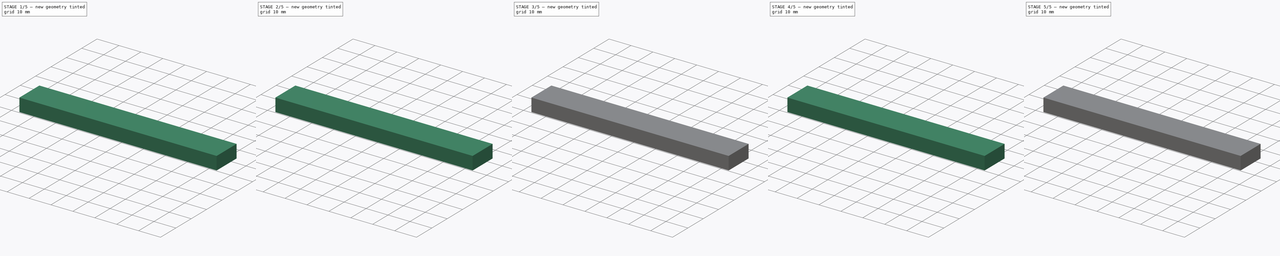
[diagram: build sequence overview — one tinted view per stage of 5, left to right]
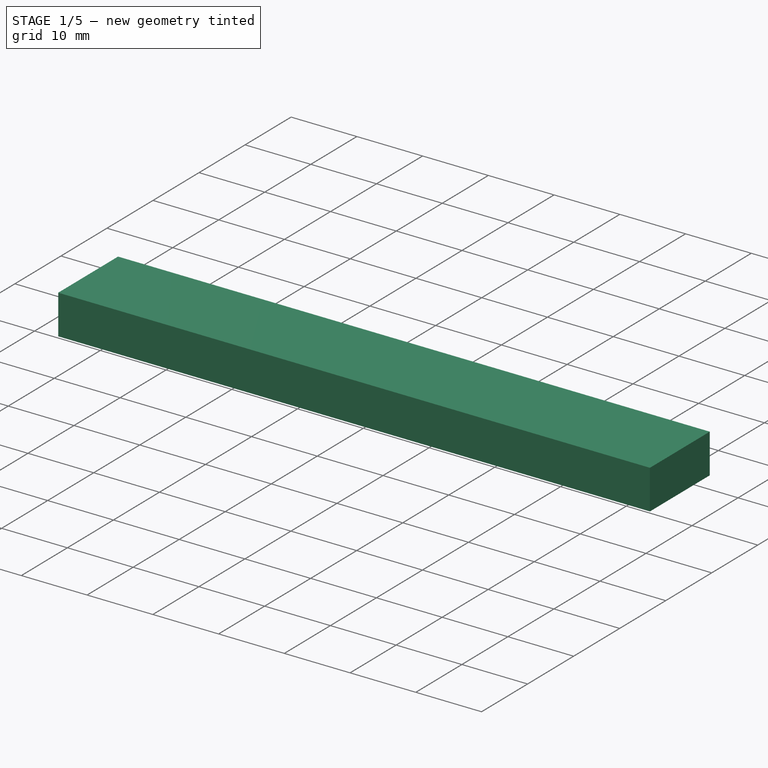
[diagram: stage 1 of 5 — iso view after this stage's code; geometry added in this stage tinted green]
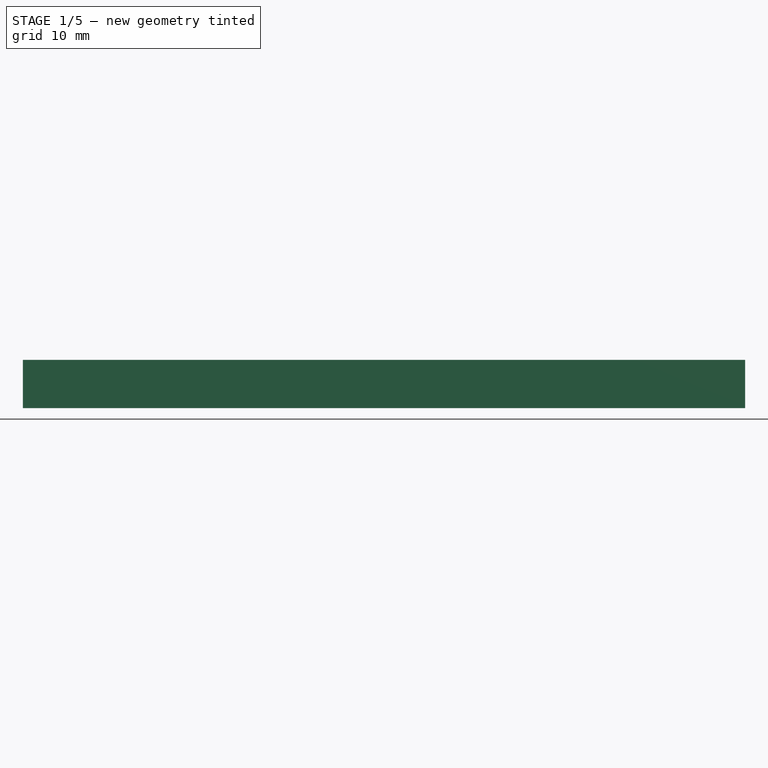
[diagram: stage 1 of 5 — front view after this stage's code; geometry added in this stage tinted green]
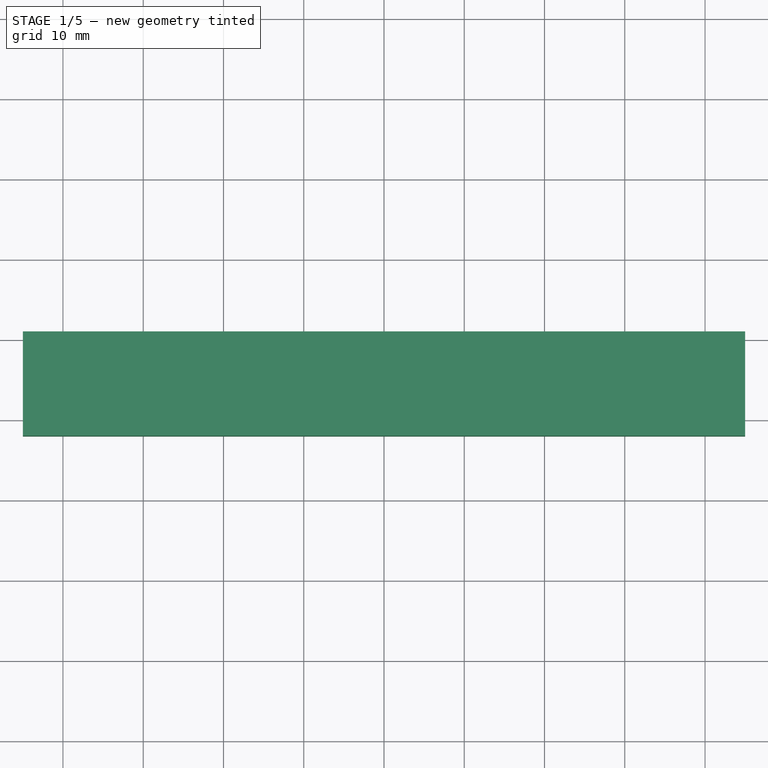
[diagram: stage 1 of 5 — top view after this stage's code; geometry added in this stage tinted green]
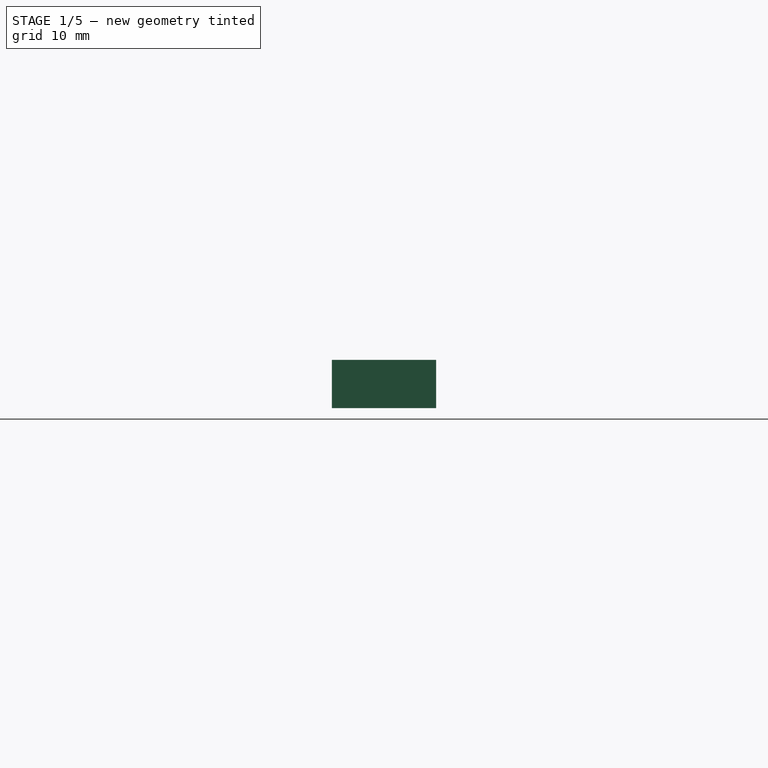
[diagram: stage 1 of 5 — right view after this stage's code; geometry added in this stage tinted green]
FCSTD DOCUMENT  (FreeCAD 0.18R15969 (Git))
Label: interface_board_SMD
License: All rights reserved
LicenseURL: http://en.wikipedia.org/wiki/All_rights_reserved
objects: Part::Feature×123, App::Part×72, Sketcher::SketchObject×57, PartDesign::Pad×51, PartDesign::Body×51, PartDesign::Chamfer×22, PartDesign::Pocket×6, PartDesign::Boolean×1
note: 368 computed .brp shape members not serialized (recipe doc carries the construction recipe); baked Part::Feature solids carry a one-line shape summary decoded from their .brp

FEATURE [PartDesign::Body] Body041  label="Resistor 10k014"
  Group = -> [Sketch043,Pad040]
  Origin = -> Origin113
  Placement = pos=(1.905,0,0) rot=(0,0,1;1.5708rad)
  Tip = -> Pad040
FEATURE [Sketcher::SketchObject] Sketch044
  MapMode = 5
  Support = -> [XY_Plane114]
  expr: Constraints[16] = 2.2 + 0.1
  expr: Constraints[17] = 1.6 + 0.1
  sketch-geometry (7):
    g0: LineSegment StartX=-1.15 StartY=-0.85 StartZ=0 EndX=1.15 EndY=-0.85 EndZ=0
    g1: LineSegment StartX=1.15 StartY=-0.85 StartZ=0 EndX=1.15 EndY=0.85 EndZ=0
    g2: LineSegment StartX=1.15 StartY=0.85 StartZ=0 EndX=-1.15 EndY=0.85 EndZ=0
    g3: LineSegment StartX=-1.15 StartY=0.85 StartZ=0 EndX=-1.15 EndY=-0.85 EndZ=0
    g4: LineSegment [constr] StartX=-1.15 StartY=0.85 StartZ=0 EndX=0 EndY=0 EndZ=0
    g5: LineSegment [constr] StartX=0 StartY=0 StartZ=0 EndX=1.15 EndY=0.85 EndZ=0
    g6: LineSegment [constr] StartX=0 StartY=0 StartZ=0 EndX=-1.15 EndY=-0.85 EndZ=0
  constraints (18):
    c: Coincident(g0,g1)
    c: Coincident(g1,g2)
    c: Coincident(g2,g3)
    c: Coincident(g3,g0)
    c: Horizontal(g0)
    c: Horizontal(g2)
    c: Vertical(g1)
    c: Vertical(g3)
    c: Coincident(g4,g2)
    c: Coincident(g4,g-1)
    c: Coincident(g5,g-1)
    c: Coincident(g5,g1)
    c: Coincident(g6,g-1)
    c: Coincident(g6,g0)
    c: Equal(g5,g4)
    c: Equal(g4,g6)
    c: DistanceX(g2,g2) = 2.3
    c: DistanceY(g3,g3) = 1.7
FEATURE [PartDesign::Pad] Pad041
  Length = 0.5
  Length2 = 100
  Profile = -> Sketch044
  Refine = true
  Type = 0
FEATURE [PartDesign::Body] Body042  label="Resistor 10k015"
  Group = -> [Sketch044,Pad041]
  Origin = -> Origin114
  Placement = pos=(-3.81,0,0) rot=(0,0,1;1.5708rad)
  Tip = -> Pad041
FEATURE [Sketcher::SketchObject] Sketch045
  MapMode = 5
  Support = -> [XY_Plane115]
  expr: Constraints[16] = 2.2 + 0.1
  expr: Constraints[17] = 1.6 + 0.1
  sketch-geometry (7):
    g0: LineSegment StartX=-1.15 StartY=-0.85 StartZ=0 EndX=1.15 EndY=-0.85 EndZ=0
    g1: LineSegment StartX=1.15 StartY=-0.85 StartZ=0 EndX=1.15 EndY=0.85 EndZ=0
    g2: LineSegment StartX=1.15 StartY=0.85 StartZ=0 EndX=-1.15 EndY=0.85 EndZ=0
    g3: LineSegment StartX=-1.15 StartY=0.85 StartZ=0 EndX=-1.15 EndY=-0.85 EndZ=0
    g4: LineSegment [constr] StartX=-1.15 StartY=0.85 StartZ=0 EndX=0 EndY=0 EndZ=0
    g5: LineSegment [constr] StartX=0 StartY=0 StartZ=0 EndX=1.15 EndY=0.85 EndZ=0
    g6: LineSegment [constr] StartX=0 StartY=0 StartZ=0 EndX=-1.15 EndY=-0.85 EndZ=0
  constraints (18):
    c: Coincident(g0,g1)
    c: Coincident(g1,g2)
    c: Coincident(g2,g3)
    c: Coincident(g3,g0)
    c: Horizontal(g0)
    c: Horizontal(g2)
    c: Vertical(g1)
    c: Vertical(g3)
    c: Coincident(g4,g2)
    c: Coincident(g4,g-1)
    c: Coincident(g5,g-1)
    c: Coincident(g5,g1)
    c: Coincident(g6,g-1)
    c: Coincident(g6,g0)
    c: Equal(g5,g4)
    c: Equal(g4,g6)
    c: DistanceX(g2,g2) = 2.3
    c: DistanceY(g3,g3) = 1.7
FEATURE [PartDesign::Pad] Pad042
  Length = 0.5
  Length2 = 100
  Profile = -> Sketch045
  Refine = true
  Type = 0
FEATURE [PartDesign::Body] Body043  label="Resistor 10k016"
  Group = -> [Sketch045,Pad042]
  Origin = -> Origin115
  Placement = pos=(-5.715,0,0) rot=(0,0,1;1.5708rad)
  Tip = -> Pad042
FEATURE [Sketcher::SketchObject] Sketch046
  MapMode = 5
  Support = -> [XY_Plane116]
  expr: Constraints[16] = 2.2 + 0.1
  expr: Constraints[17] = 1.6 + 0.1
  sketch-geometry (7):
    g0: LineSegment StartX=-1.15 StartY=-0.85 StartZ=0 EndX=1.15 EndY=-0.85 EndZ=0
    g1: LineSegment StartX=1.15 StartY=-0.85 StartZ=0 EndX=1.15 EndY=0.85 EndZ=0
    g2: LineSegment StartX=1.15 StartY=0.85 StartZ=0 EndX=-1.15 EndY=0.85 EndZ=0
    g3: LineSegment StartX=-1.15 StartY=0.85 StartZ=0 EndX=-1.15 EndY=-0.85 EndZ=0
    g4: LineSegment [constr] StartX=-1.15 StartY=0.85 StartZ=0 EndX=0 EndY=0 EndZ=0
    g5: LineSegment [constr] StartX=0 StartY=0 StartZ=0 EndX=1.15 EndY=0.85 EndZ=0
    g6: LineSegment [constr] StartX=0 StartY=0 StartZ=0 EndX=-1.15 EndY=-0.85 EndZ=0
  constraints (18):
    c: Coincident(g0,g1)
    c: Coincident(g1,g2)
    c: Coincident(g2,g3)
    c: Coincident(g3,g0)
    c: Horizontal(g0)
    c: Horizontal(g2)
    c: Vertical(g1)
    c: Vertical(g3)
    c: Coincident(g4,g2)
    c: Coincident(g4,g-1)
    c: Coincident(g5,g-1)
    c: Coincident(g5,g1)
    c: Coincident(g6,g-1)
    c: Coincident(g6,g0)
    c: Equal(g5,g4)
    c: Equal(g4,g6)
    c: DistanceX(g2,g2) = 2.3
    c: DistanceY(g3,g3) = 1.7
FEATURE [PartDesign::Pad] Pad043
  Length = 1.3
  Length2 = 100
  Profile = -> Sketch046
  Refine = true
  Type = 0
FEATURE [PartDesign::Body] Body044  label="Capacitor 1u005"
  Group = -> [Sketch046,Pad043]
  Origin = -> Origin116
  Placement = pos=(-1.905,0,0) rot=(0,0,1;1.5708rad)
  Tip = -> Pad043
FEATURE [Sketcher::SketchObject] Sketch047
  MapMode = 5
  Support = -> [XY_Plane117]
  expr: Constraints[16] = 2.2 + 0.1
  expr: Constraints[17] = 1.6 + 0.1
  sketch-geometry (7):
    g0: LineSegment StartX=-1.15 StartY=-0.85 StartZ=0 EndX=1.15 EndY=-0.85 EndZ=0
    g1: LineSegment StartX=1.15 StartY=-0.85 StartZ=0 EndX=1.15 EndY=0.85 EndZ=0
    g2: LineSegment StartX=1.15 StartY=0.85 StartZ=0 EndX=-1.15 EndY=0.85 EndZ=0
    g3: LineSegment StartX=-1.15 StartY=0.85 StartZ=0 EndX=-1.15 EndY=-0.85 EndZ=0
    g4: LineSegment [constr] StartX=-1.15 StartY=0.85 StartZ=0 EndX=0 EndY=0 EndZ=0
    g5: LineSegment [constr] StartX=0 StartY=0 StartZ=0 EndX=1.15 EndY=0.85 EndZ=0
    g6: LineSegment [constr] StartX=0 StartY=0 StartZ=0 EndX=-1.15 EndY=-0.85 EndZ=0
  constraints (18):
    c: Coincident(g0,g1)
    c: Coincident(g1,g2)
    c: Coincident(g2,g3)
    c: Coincident(g3,g0)
    c: Horizontal(g0)
    c: Horizontal(g2)
    c: Vertical(g1)
    c: Vertical(g3)
    c: Coincident(g4,g2)
    c: Coincident(g4,g-1)
    c: Coincident(g5,g-1)
    c: Coincident(g5,g1)
    c: Coincident(g6,g-1)
    c: Coincident(g6,g0)
    c: Equal(g5,g4)
    c: Equal(g4,g6)
    c: DistanceX(g2,g2) = 2.3
    c: DistanceY(g3,g3) = 1.7
FEATURE [PartDesign::Pad] Pad044
  Length = 0.5
  Length2 = 100
  Profile = -> Sketch047
  Refine = true
  Type = 0
FEATURE [PartDesign::Body] Body045  label="Resistor 10k017"
  Group = -> [Sketch047,Pad044]
  Origin = -> Origin117
  Placement = pos=(10.16,0,0) rot=(0,0,1;1.5708rad)
  Tip = -> Pad044
FEATURE [Sketcher::SketchObject] Sketch048
  MapMode = 5
  Support = -> [XY_Plane118]
  expr: Constraints[16] = 2.2 + 0.1
  expr: Constraints[17] = 1.6 + 0.1
  sketch-geometry (7):
    g0: LineSegment StartX=-1.15 StartY=-0.85 StartZ=0 EndX=1.15 EndY=-0.85 EndZ=0
    g1: LineSegment StartX=1.15 StartY=-0.85 StartZ=0 EndX=1.15 EndY=0.85 EndZ=0
    g2: LineSegment StartX=1.15 StartY=0.85 StartZ=0 EndX=-1.15 EndY=0.85 EndZ=0
    g3: LineSegment StartX=-1.15 StartY=0.85 StartZ=0 EndX=-1.15 EndY=-0.85 EndZ=0
    g4: LineSegment [constr] StartX=-1.15 StartY=0.85 StartZ=0 EndX=0 EndY=0 EndZ=0
    g5: LineSegment [constr] StartX=0 StartY=0 StartZ=0 EndX=1.15 EndY=0.85 EndZ=0
    g6: LineSegment [constr] StartX=0 StartY=0 StartZ=0 EndX=-1.15 EndY=-0.85 EndZ=0
  constraints (18):
    c: Coincident(g0,g1)
    c: Coincident(g1,g2)
    c: Coincident(g2,g3)
    c: Coincident(g3,g0)
    c: Horizontal(g0)
    c: Horizontal(g2)
    c: Vertical(g1)
    c: Vertical(g3)
    c: Coincident(g4,g2)
    c: Coincident(g4,g-1)
    c: Coincident(g5,g-1)
    c: Coincident(g5,g1)
    c: Coincident(g6,g-1)
    c: Coincident(g6,g0)
    c: Equal(g5,g4)
    c: Equal(g4,g6)
    c: DistanceX(g2,g2) = 2.3
    c: DistanceY(g3,g3) = 1.7
FEATURE [PartDesign::Pad] Pad045
  Length = 0.9
  Length2 = 100
  Profile = -> Sketch048
  Refine = true
  Type = 0
FEATURE [PartDesign::Body] Body046  label="Capacitor 100n002"
  Group = -> [Sketch048,Pad045]
  Origin = -> Origin118
  Placement = pos=(-7.62,0,0) rot=(0,0,1;1.5708rad)
  Tip = -> Pad045
FEATURE [Sketcher::SketchObject] Sketch049
  MapMode = 5
  Support = -> [XY_Plane119]
  expr: Constraints[16] = 2.2 + 0.1
  expr: Constraints[17] = 1.6 + 0.1
  sketch-geometry (7):
    g0: LineSegment StartX=-1.15 StartY=-0.85 StartZ=0 EndX=1.15 EndY=-0.85 EndZ=0
    g1: LineSegment StartX=1.15 StartY=-0.85 StartZ=0 EndX=1.15 EndY=0.85 EndZ=0
    g2: LineSegment StartX=1.15 StartY=0.85 StartZ=0 EndX=-1.15 EndY=0.85 EndZ=0
    g3: LineSegment StartX=-1.15 StartY=0.85 StartZ=0 EndX=-1.15 EndY=-0.85 EndZ=0
    g4: LineSegment [constr] StartX=-1.15 StartY=0.85 StartZ=0 EndX=0 EndY=0 EndZ=0
    g5: LineSegment [constr] StartX=0 StartY=0 StartZ=0 EndX=1.15 EndY=0.85 EndZ=0
    g6: LineSegment [constr] StartX=0 StartY=0 StartZ=0 EndX=-1.15 EndY=-0.85 EndZ=0
  constraints (18):
    c: Coincident(g0,g1)
    c: Coincident(g1,g2)
    c: Coincident(g2,g3)
    c: Coincident(g3,g0)
    c: Horizontal(g0)
    c: Horizontal(g2)
    c: Vertical(g1)
    c: Vertical(g3)
    c: Coincident(g4,g2)
    c: Coincident(g4,g-1)
    c: Coincident(g5,g-1)
    c: Coincident(g5,g1)
    c: Coincident(g6,g-1)
    c: Coincident(g6,g0)
    c: Equal(g5,g4)
    c: Equal(g4,g6)
    c: DistanceX(g2,g2) = 2.3
    c: DistanceY(g3,g3) = 1.7
FEATURE [PartDesign::Pad] Pad046
  Length = 0.9
  Length2 = 100
  Profile = -> Sketch049
  Refine = true
  Type = 0
FEATURE [PartDesign::Body] Body047  label="Capacitor 100n003"
  Group = -> [Sketch049,Pad046]
  Origin = -> Origin119
  Placement = pos=(3.81,0,0) rot=(0,0,1;1.5708rad)
  Tip = -> Pad046
FEATURE [Sketcher::SketchObject] Sketch050
  MapMode = 5
  Support = -> [XY_Plane120]
  sketch-geometry (7):
    g0: LineSegment StartX=-1.6 StartY=-1.5 StartZ=0 EndX=1.6 EndY=-1.5 EndZ=0
    g1: LineSegment StartX=1.6 StartY=-1.5 StartZ=0 EndX=1.6 EndY=1.5 EndZ=0
    g2: LineSegment StartX=1.6 StartY=1.5 StartZ=0 EndX=-1.6 EndY=1.5 EndZ=0
    g3: LineSegment StartX=-1.6 StartY=1.5 StartZ=0 EndX=-1.6 EndY=-1.5 EndZ=0
    g4: LineSegment [constr] StartX=-1.6 StartY=1.5 StartZ=0 EndX=0 EndY=0 EndZ=0
    g5: LineSegment [constr] StartX=0 StartY=0 StartZ=0 EndX=1.6 EndY=1.5 EndZ=0
    g6: LineSegment [constr] StartX=0 StartY=0 StartZ=0 EndX=-1.6 EndY=-1.5 EndZ=0
  constraints (18):
    c: Coincident(g0,g1)
    c: Coincident(g1,g2)
    c: Coincident(g2,g3)
    c: Coincident(g3,g0)
    c: Horizontal(g0)
    c: Horizontal(g2)
    c: Vertical(g1)
    c: Vertical(g3)
    c: Coincident(g4,g2)
    c: Coincident(g4,g-1)
    c: Coincident(g5,g-1)
    c: Coincident(g5,g1)
    c: Coincident(g6,g-1)
    c: Coincident(g6,g0)
    c: Equal(g5,g4)
    c: Equal(g4,g6)
    c: DistanceX(g2,g2) = 3.2
    c: DistanceY(g3,g3) = 3
FEATURE [PartDesign::Pad] Pad047
  Length = 1.2
  Length2 = 100
  Profile = -> Sketch050
  Refine = true
  Type = 0
FEATURE [PartDesign::Chamfer] Chamfer019
  Base = -> Pad047 [Edge12,Edge7]
  BaseFeature = -> Pad047
  Size = 1
FEATURE [Sketcher::SketchObject] Sketch051
  MapMode = 5
  Placement = pos=(0,0,1.2) rot=(0,0,1;0rad)
  Support = -> [Chamfer019]
  sketch-geometry (7):
    g0: LineSegment StartX=-2.76097 StartY=0.5085 StartZ=0 EndX=-0.743008 EndY=0.5085 EndZ=0
    g1: LineSegment StartX=-0.743008 StartY=0.5085 StartZ=0 EndX=-0.743008 EndY=-0.5085 EndZ=0
    g2: LineSegment StartX=-0.743008 StartY=-0.5085 StartZ=0 EndX=-2.76097 EndY=-0.5085 EndZ=0
    g3: LineSegment StartX=-2.76097 StartY=-0.5085 StartZ=0 EndX=-2.76097 EndY=0.5085 EndZ=0
    g4: LineSegment [constr] StartX=-2.76097 StartY=0.5085 StartZ=0 EndX=-1.75199 EndY=0 EndZ=0
    g5: LineSegment [constr] StartX=-0.743008 StartY=0.5085 StartZ=0 EndX=-1.75199 EndY=0 EndZ=0
    g6: LineSegment [constr] StartX=-2.76097 StartY=-0.5085 StartZ=0 EndX=-1.75199 EndY=0 EndZ=0
  constraints (16):
    c: Coincident(g0,g1)
    c: Coincident(g1,g2)
    c: Coincident(g2,g3)
    c: Coincident(g3,g0)
    c: Horizontal(g0)
    c: Horizontal(g2)
    c: Vertical(g1)
    c: Vertical(g3)
    c: Coincident(g4,g0)
    c: PointOnObject(g4,g-1)
    c: Coincident(g5,g0)
    c: Coincident(g5,g4)
    c: Coincident(g6,g2)
    c: Coincident(g6,g4)
    c: Equal(g4,g6)
    c: Equal(g6,g5)
FEATURE [PartDesign::Pocket] Pocket003
  BaseFeature = -> Chamfer019
  Length = 5
  Length2 = 100
  Profile = -> Sketch051
  Refine = true
  Type = 0
FEATURE [PartDesign::Body] Body048  label="Sot23-007"
  Group = -> [Sketch050,Pad047,Chamfer019,Sketch051,Pocket003]
  Origin = -> Origin120
  Placement = pos=(6.985,0,0) rot=(0,0,1;3.14159rad)
  Tip = -> Pocket003
FEATURE [Sketcher::SketchObject] Sketch052
  MapMode = 5
  Support = -> [XY_Plane121]
  sketch-geometry (7):
    g0: LineSegment StartX=-1.6 StartY=-1.5 StartZ=0 EndX=1.6 EndY=-1.5 EndZ=0
    g1: LineSegment StartX=1.6 StartY=-1.5 StartZ=0 EndX=1.6 EndY=1.5 EndZ=0
    g2: LineSegment StartX=1.6 StartY=1.5 StartZ=0 EndX=-1.6 EndY=1.5 EndZ=0
    g3: LineSegment StartX=-1.6 StartY=1.5 StartZ=0 EndX=-1.6 EndY=-1.5 EndZ=0
    g4: LineSegment [constr] StartX=-1.6 StartY=1.5 StartZ=0 EndX=0 EndY=0 EndZ=0
    g5: LineSegment [constr] StartX=0 StartY=0 StartZ=0 EndX=1.6 EndY=1.5 EndZ=0
    g6: LineSegment [constr] StartX=0 StartY=0 StartZ=0 EndX=-1.6 EndY=-1.5 EndZ=0
  constraints (18):
    c: Coincident(g0,g1)
    c: Coincident(g1,g2)
    c: Coincident(g2,g3)
    c: Coincident(g3,g0)
    c: Horizontal(g0)
    c: Horizontal(g2)
    c: Vertical(g1)
    c: Vertical(g3)
    c: Coincident(g4,g2)
    c: Coincident(g4,g-1)
    c: Coincident(g5,g-1)
    c: Coincident(g5,g1)
    c: Coincident(g6,g-1)
    c: Coincident(g6,g0)
    c: Equal(g5,g4)
    c: Equal(g4,g6)
    c: DistanceX(g2,g2) = 3.2
    c: DistanceY(g3,g3) = 3
FEATURE [PartDesign::Pad] Pad048
  Length = 1.2
  Length2 = 100
  Profile = -> Sketch052
  Refine = true
  Type = 0
FEATURE [PartDesign::Chamfer] Chamfer020
  Base = -> Pad048 [Edge12,Edge7]
  BaseFeature = -> Pad048
  Size = 1
FEATURE [Sketcher::SketchObject] Sketch053
  MapMode = 5
  Placement = pos=(0,0,1.2) rot=(0,0,1;0rad)
  Support = -> [Chamfer020]
  sketch-geometry (23):
    g0: LineSegment StartX=-2.76097 StartY=0.5085 StartZ=0 EndX=-0.743008 EndY=0.5085 EndZ=0
    g1: LineSegment StartX=-0.743008 StartY=0.5085 StartZ=0 EndX=-0.743008 EndY=-0.5085 EndZ=0
    g2: LineSegment StartX=-0.743008 StartY=-0.5085 StartZ=0 EndX=-2.76097 EndY=-0.5085 EndZ=0
    g3: LineSegment StartX=-2.76097 StartY=-0.5085 StartZ=0 EndX=-2.76097 EndY=0.5085 EndZ=0
    g4: LineSegment [constr] StartX=-2.76097 StartY=0.5085 StartZ=0 EndX=-1.75199 EndY=0 EndZ=0
    g5: LineSegment [constr] StartX=-0.743008 StartY=0.5085 StartZ=0 EndX=-1.75199 EndY=0 EndZ=0
    g6: LineSegment [constr] StartX=-2.76097 StartY=-0.5085 StartZ=0 EndX=-1.75199 EndY=0 EndZ=0
    g7: LineSegment StartX=0.706831 StartY=1.72252 StartZ=0 EndX=2.53455 EndY=1.72252 EndZ=0
    g8: LineSegment StartX=2.53455 StartY=1.72252 StartZ=0 EndX=2.53455 EndY=0.567301 EndZ=0
    g9: LineSegment StartX=2.53455 StartY=0.567301 StartZ=0 EndX=0.706831 EndY=0.567301 EndZ=0
    g10: LineSegment StartX=0.706831 StartY=0.567301 StartZ=0 EndX=0.706831 EndY=1.72252 EndZ=0
    g11: LineSegment StartX=0.706831 StartY=-1.72252 StartZ=0 EndX=2.53455 EndY=-1.72252 EndZ=0
    g12: LineSegment StartX=2.53455 StartY=-1.72252 StartZ=0 EndX=2.53455 EndY=-0.567301 EndZ=0
    g13: LineSegment StartX=2.53455 StartY=-0.567301 StartZ=0 EndX=0.706831 EndY=-0.567301 EndZ=0
    g14: LineSegment StartX=0.706831 StartY=-0.567301 StartZ=0 EndX=0.706831 EndY=-1.72252 EndZ=0
    g15: LineSegment [constr] StartX=0.706831 StartY=-0.567301 StartZ=0 EndX=1.62069 EndY=-1.14491 EndZ=0
    g16: LineSegment [constr] StartX=1.62069 StartY=-1.14491 StartZ=0 EndX=0.706831 EndY=-1.72252 EndZ=0
    g17: LineSegment [constr] StartX=1.62069 StartY=-1.14491 StartZ=0 EndX=2.53455 EndY=-0.567301 EndZ=0
    g18: LineSegment [constr] StartX=1.62069 StartY=-1.14491 StartZ=0 EndX=1.62069 EndY=0 EndZ=0
    g19: LineSegment [constr] StartX=1.62069 StartY=0 StartZ=0 EndX=1.62069 EndY=1.14491 EndZ=0
    g20: LineSegment [constr] StartX=2.53455 StartY=1.72252 StartZ=0 EndX=1.62069 EndY=1.14491 EndZ=0
    g21: LineSegment [constr] StartX=1.62069 StartY=1.14491 StartZ=0 EndX=0.706831 EndY=1.72252 EndZ=0
    g22: LineSegment [constr] StartX=0.706831 StartY=0.567301 StartZ=0 EndX=1.62069 EndY=1.14491 EndZ=0
  constraints (55):
    c: Coincident(g0,g1)
    c: Coincident(g1,g2)
    c: Coincident(g2,g3)
    c: Coincident(g3,g0)
    c: Horizontal(g0)
    c: Horizontal(g2)
    c: Vertical(g1)
    c: Vertical(g3)
    c: Coincident(g4,g0)
    c: PointOnObject(g4,g-1)
    c: Coincident(g5,g0)
    c: Coincident(g5,g4)
    c: Coincident(g6,g2)
    c: Coincident(g6,g4)
    c: Equal(g4,g6)
    c: Equal(g6,g5)
    c: Coincident(g7,g8)
    c: Coincident(g8,g9)
    c: Coincident(g9,g10)
    c: Coincident(g10,g7)
    c: Horizontal(g7)
    c: Horizontal(g9)
    c: Vertical(g8)
    c: Vertical(g10)
    c: Coincident(g11,g12)
    c: Coincident(g12,g13)
    c: Coincident(g13,g14)
    c: Coincident(g14,g11)
    c: Horizontal(g11)
    c: Horizontal(g13)
    c: Vertical(g12)
    c: Vertical(g14)
    c: Coincident(g15,g13)
    c: Coincident(g16,g15)
    c: Coincident(g16,g11)
    c: Coincident(g17,g15)
    c: Coincident(g17,g12)
    c: Coincident(g18,g15)
    c: PointOnObject(g18,g-1)
    c: Vertical(g18)
    c: Coincident(g19,g18)
    c: Coincident(g20,g7)
    c: Coincident(g20,g19)
    c: Coincident(g21,g19)
    c: Coincident(g21,g7)
    c: Coincident(g22,g9)
    c: Coincident(g22,g19)
    c: Vertical(g19)
    c: Equal(g22,g21)
    c: Equal(g21,g20)
    c: Equal(g20,g15)
    c: Equal(g15,g16)
    c: Equal(g16,g17)
    c: Equal(g13,g7)
    c: Equal(g18,g19)
FEATURE [PartDesign::Pocket] Pocket004
  BaseFeature = -> Chamfer020
  Length = 5
  Length2 = 100
  Profile = -> Sketch053
  Refine = true
  Type = 0
FEATURE [PartDesign::Body] Body049  label="Sot23"
  Group = -> [Sketch052,Pad048,Chamfer020,Sketch053,Pocket004]
  Origin = -> Origin121
  Placement = pos=(-10.3251,0,0) rot=(0,0,1;0rad)
  Tip = -> Pocket004
FEATURE [Sketcher::SketchObject] Sketch054
  MapMode = 5
  Support = -> [XY_Plane122]
  sketch-geometry (7):
    g0: LineSegment StartX=-1.6 StartY=-1.5 StartZ=0 EndX=1.6 EndY=-1.5 EndZ=0
    g1: LineSegment StartX=1.6 StartY=-1.5 StartZ=0 EndX=1.6 EndY=1.5 EndZ=0
    g2: LineSegment StartX=1.6 StartY=1.5 StartZ=0 EndX=-1.6 EndY=1.5 EndZ=0
    g3: LineSegment StartX=-1.6 StartY=1.5 StartZ=0 EndX=-1.6 EndY=-1.5 EndZ=0
    g4: LineSegment [constr] StartX=-1.6 StartY=1.5 StartZ=0 EndX=0 EndY=0 EndZ=0
    g5: LineSegment [constr] StartX=0 StartY=0 StartZ=0 EndX=1.6 EndY=1.5 EndZ=0
    g6: LineSegment [constr] StartX=0 StartY=0 StartZ=0 EndX=-1.6 EndY=-1.5 EndZ=0
  constraints (18):
    c: Coincident(g0,g1)
    c: Coincident(g1,g2)
    c: Coincident(g2,g3)
    c: Coincident(g3,g0)
    c: Horizontal(g0)
    c: Horizontal(g2)
    c: Vertical(g1)
    c: Vertical(g3)
    c: Coincident(g4,g2)
    c: Coincident(g4,g-1)
    c: Coincident(g5,g-1)
    c: Coincident(g5,g1)
    c: Coincident(g6,g-1)
    c: Coincident(g6,g0)
    c: Equal(g5,g4)
    c: Equal(g4,g6)
    c: DistanceX(g2,g2) = 3.2
    c: DistanceY(g3,g3) = 3
FEATURE [PartDesign::Pad] Pad049
  Length = 1.2
  Length2 = 100
  Profile = -> Sketch054
  Refine = true
  Type = 0
FEATURE [PartDesign::Chamfer] Chamfer021
  Base = -> Pad049 [Edge12,Edge7]
  BaseFeature = -> Pad049
  Size = 0.5
FEATURE [Sketcher::SketchObject] Sketch055
  MapMode = 5
  Placement = pos=(0,0,1.2) rot=(0,0,1;0rad)
  Support = -> [Chamfer021]
  sketch-geometry (23):
    g0: LineSegment StartX=-2.77743 StartY=0.5085 StartZ=0 EndX=-0.926537 EndY=0.5085 EndZ=0
    g1: LineSegment StartX=-0.926537 StartY=0.5085 StartZ=0 EndX=-0.926537 EndY=-0.5085 EndZ=0
    g2: LineSegment StartX=-0.926537 StartY=-0.5085 StartZ=0 EndX=-2.77743 EndY=-0.5085 EndZ=0
    g3: LineSegment StartX=-2.77743 StartY=-0.5085 StartZ=0 EndX=-2.77743 EndY=0.5085 EndZ=0
    g4: LineSegment [constr] StartX=-2.77743 StartY=0.5085 StartZ=0 EndX=-1.85198 EndY=0 EndZ=0
    g5: LineSegment [constr] StartX=-0.926537 StartY=0.5085 StartZ=0 EndX=-1.85198 EndY=0 EndZ=0
    g6: LineSegment [constr] StartX=-2.77743 StartY=-0.5085 StartZ=0 EndX=-1.85198 EndY=0 EndZ=0
    g7: LineSegment StartX=0.901831 StartY=1.71105 StartZ=0 EndX=2.61133 EndY=1.71105 EndZ=0
    g8: LineSegment StartX=2.61133 StartY=1.71105 StartZ=0 EndX=2.61133 EndY=0.555831 EndZ=0
    g9: LineSegment StartX=2.61133 StartY=0.555831 StartZ=0 EndX=0.901831 EndY=0.555831 EndZ=0
    g10: LineSegment StartX=0.901831 StartY=0.555831 StartZ=0 EndX=0.901831 EndY=1.71105 EndZ=0
    g11: LineSegment StartX=0.901831 StartY=-1.71105 StartZ=0 EndX=2.61133 EndY=-1.71105 EndZ=0
    g12: LineSegment StartX=2.61133 StartY=-1.71105 StartZ=0 EndX=2.61133 EndY=-0.555831 EndZ=0
    g13: LineSegment StartX=2.61133 StartY=-0.555831 StartZ=0 EndX=0.901831 EndY=-0.555831 EndZ=0
    g14: LineSegment StartX=0.901831 StartY=-0.555831 StartZ=0 EndX=0.901831 EndY=-1.71105 EndZ=0
    g15: LineSegment [constr] StartX=0.901831 StartY=-0.555831 StartZ=0 EndX=1.75658 EndY=-1.13344 EndZ=0
    g16: LineSegment [constr] StartX=1.75658 StartY=-1.13344 StartZ=0 EndX=0.901831 EndY=-1.71105 EndZ=0
    g17: LineSegment [constr] StartX=1.75658 StartY=-1.13344 StartZ=0 EndX=2.61133 EndY=-0.555831 EndZ=0
    g18: LineSegment [constr] StartX=1.75658 StartY=-1.13344 StartZ=0 EndX=1.75658 EndY=0 EndZ=0
    g19: LineSegment [constr] StartX=1.75658 StartY=0 StartZ=0 EndX=1.75658 EndY=1.13344 EndZ=0
    g20: LineSegment [constr] StartX=2.61133 StartY=1.71105 StartZ=0 EndX=1.75658 EndY=1.13344 EndZ=0
    g21: LineSegment [constr] StartX=1.75658 StartY=1.13344 StartZ=0 EndX=0.901831 EndY=1.71105 EndZ=0
    g22: LineSegment [constr] StartX=0.901831 StartY=0.555831 StartZ=0 EndX=1.75658 EndY=1.13344 EndZ=0
  constraints (55):
    c: Coincident(g0,g1)
    c: Coincident(g1,g2)
    c: Coincident(g2,g3)
    c: Coincident(g3,g0)
    c: Horizontal(g0)
    c: Horizontal(g2)
    c: Vertical(g1)
    c: Vertical(g3)
    c: Coincident(g4,g0)
    c: PointOnObject(g4,g-1)
    c: Coincident(g5,g0)
    c: Coincident(g5,g4)
    c: Coincident(g6,g2)
    c: Coincident(g6,g4)
    c: Equal(g4,g6)
    c: Equal(g6,g5)
    c: Coincident(g7,g8)
    c: Coincident(g8,g9)
    c: Coincident(g9,g10)
    c: Coincident(g10,g7)
    c: Horizontal(g7)
    c: Horizontal(g9)
    c: Vertical(g8)
    c: Vertical(g10)
    c: Coincident(g11,g12)
    c: Coincident(g12,g13)
    c: Coincident(g13,g14)
    c: Coincident(g14,g11)
    c: Horizontal(g11)
    c: Horizontal(g13)
    c: Vertical(g12)
    c: Vertical(g14)
    c: Coincident(g15,g13)
    c: Coincident(g16,g15)
    c: Coincident(g16,g11)
    c: Coincident(g17,g15)
    c: Coincident(g17,g12)
    c: Coincident(g18,g15)
    c: PointOnObject(g18,g-1)
    c: Vertical(g18)
    c: Coincident(g19,g18)
    c: Coincident(g20,g7)
    c: Coincident(g20,g19)
    c: Coincident(g21,g19)
    c: Coincident(g21,g7)
    c: Coincident(g22,g9)
    c: Coincident(g22,g19)
    c: Vertical(g19)
    c: Equal(g22,g21)
    c: Equal(g21,g20)
    c: Equal(g20,g15)
    c: Equal(g15,g16)
    c: Equal(g16,g17)
    c: Equal(g13,g7)
    c: Equal(g18,g19)
FEATURE [PartDesign::Pocket] Pocket005
  BaseFeature = -> Chamfer021
  Length = 5
  Length2 = 100
  Profile = -> Sketch055
  Refine = true
  Type = 0
FEATURE [PartDesign::Body] Body050  label="Sot23-big001"
  Group = -> [Sketch054,Pad049,Chamfer021,Sketch055,Pocket005]
  Origin = -> Origin122
  Placement = pos=(-16.51,0,0) rot=(0,0,1;3.14159rad)
  Tip = -> Pocket005
FEATURE [Sketcher::SketchObject] Sketch056
  MapMode = 5
  Support = -> [XY_Plane096]
  sketch-geometry (4):
    g0: LineSegment StartX=-45 StartY=11 StartZ=0 EndX=45 EndY=11 EndZ=0
    g1: LineSegment StartX=45 StartY=11 StartZ=0 EndX=45 EndY=-2 EndZ=0
    g2: LineSegment StartX=45 StartY=-2 StartZ=0 EndX=-45 EndY=-2 EndZ=0
    g3: LineSegment StartX=-45 StartY=-2 StartZ=0 EndX=-45 EndY=11 EndZ=0
  constraints (8):
    c: Coincident(g0,g1)
    c: Coincident(g1,g2)
    c: Coincident(g2,g3)
    c: Coincident(g3,g0)
    c: Horizontal(g0)
    c: Horizontal(g2)
    c: Vertical(g1)
    c: Vertical(g3)
FEATURE [PartDesign::Pad] Pad050
  Length = 6
  Length2 = 100
  Profile = -> Sketch056
  Refine = true
  Type = 0
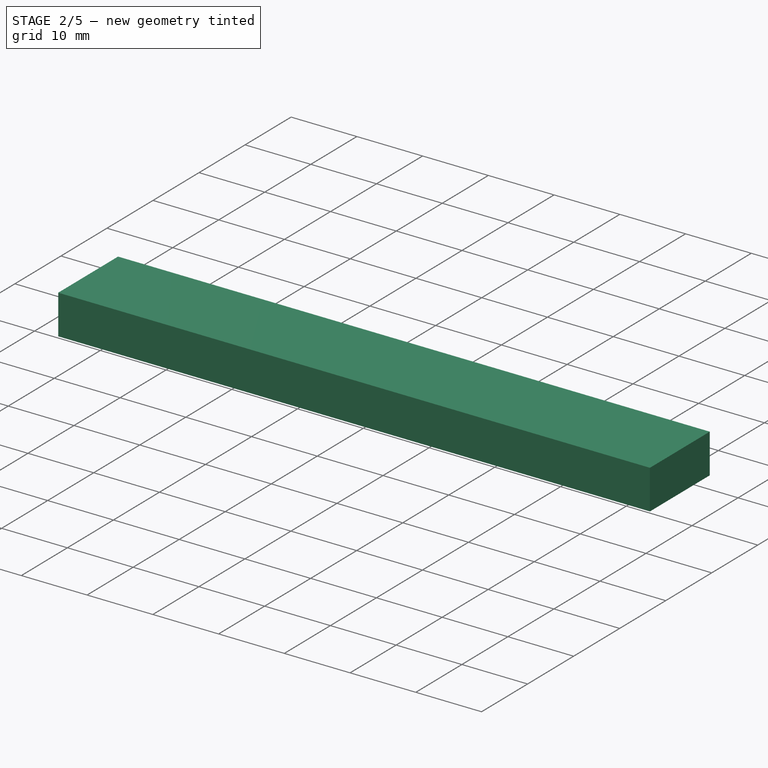
[diagram: stage 2 of 5 — iso view after this stage's code; geometry added in this stage tinted green]
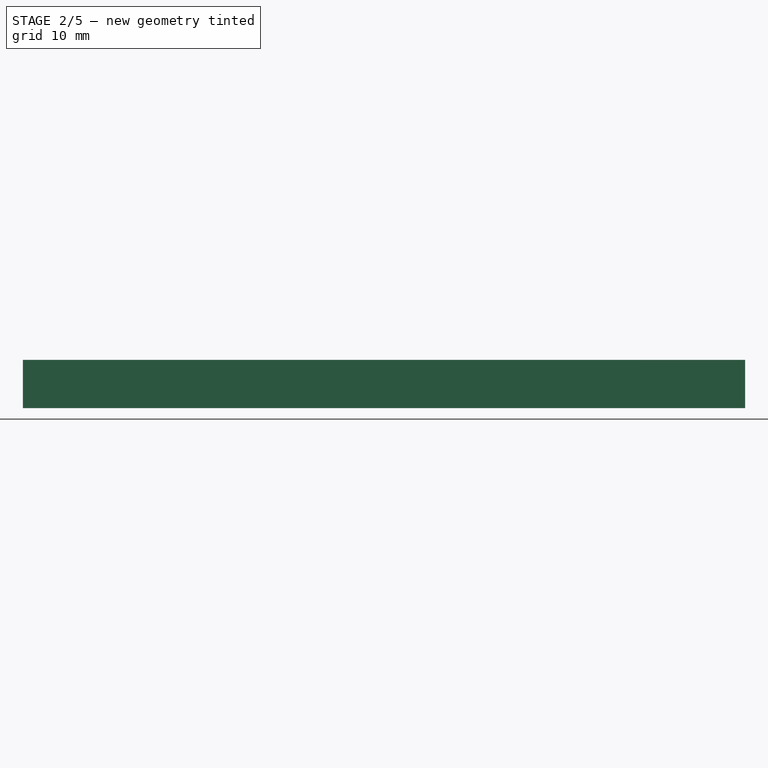
[diagram: stage 2 of 5 — front view after this stage's code; geometry added in this stage tinted green]
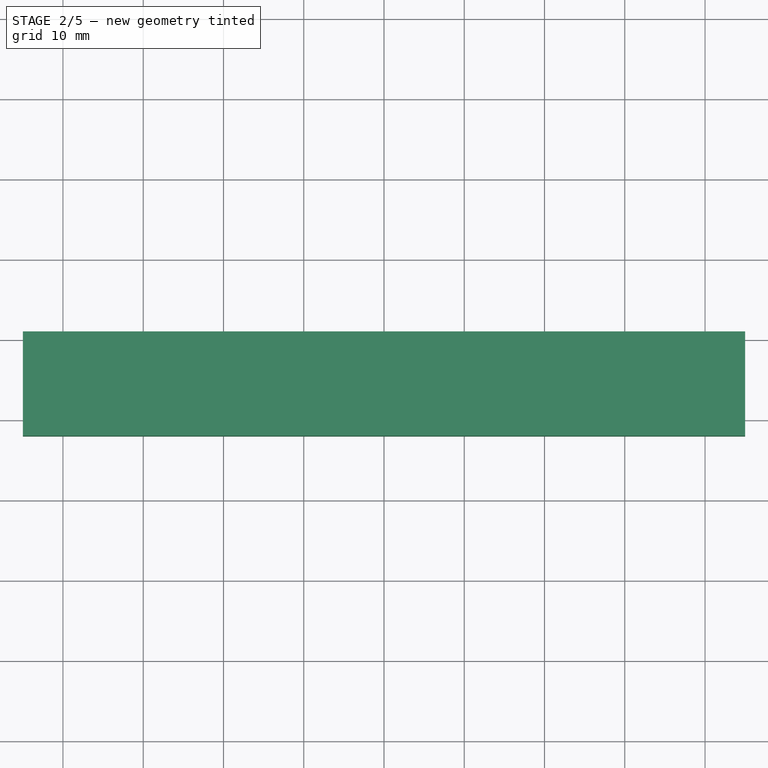
[diagram: stage 2 of 5 — top view after this stage's code; geometry added in this stage tinted green]
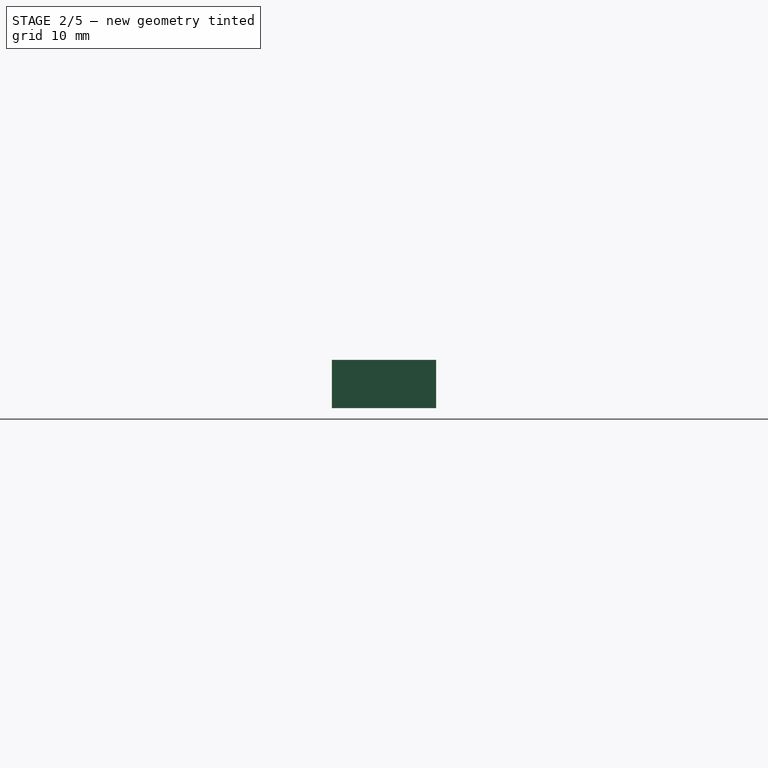
[diagram: stage 2 of 5 — right view after this stage's code; geometry added in this stage tinted green]
FEATURE [PartDesign::Body] Body028  label="Supersot016"
  Group = -> [Sketch030,Pad027,Chamfer013]
  Origin = -> Origin099
  Placement = pos=(-33.02,0,0) rot=(0,0,1;0rad)
  Tip = -> Chamfer013
FEATURE [Sketcher::SketchObject] Sketch031
  MapMode = 5
  Support = -> [XY_Plane100]
  sketch-geometry (7):
    g0: LineSegment StartX=-1.6 StartY=-1.5 StartZ=0 EndX=1.6 EndY=-1.5 EndZ=0
    g1: LineSegment StartX=1.6 StartY=-1.5 StartZ=0 EndX=1.6 EndY=1.5 EndZ=0
    g2: LineSegment StartX=1.6 StartY=1.5 StartZ=0 EndX=-1.6 EndY=1.5 EndZ=0
    g3: LineSegment StartX=-1.6 StartY=1.5 StartZ=0 EndX=-1.6 EndY=-1.5 EndZ=0
    g4: LineSegment [constr] StartX=-1.6 StartY=1.5 StartZ=0 EndX=0 EndY=0 EndZ=0
    g5: LineSegment [constr] StartX=0 StartY=0 StartZ=0 EndX=1.6 EndY=1.5 EndZ=0
    g6: LineSegment [constr] StartX=0 StartY=0 StartZ=0 EndX=-1.6 EndY=-1.5 EndZ=0
  constraints (18):
    c: Coincident(g0,g1)
    c: Coincident(g1,g2)
    c: Coincident(g2,g3)
    c: Coincident(g3,g0)
    c: Horizontal(g0)
    c: Horizontal(g2)
    c: Vertical(g1)
    c: Vertical(g3)
    c: Coincident(g4,g2)
    c: Coincident(g4,g-1)
    c: Coincident(g5,g-1)
    c: Coincident(g5,g1)
    c: Coincident(g6,g-1)
    c: Coincident(g6,g0)
    c: Equal(g5,g4)
    c: Equal(g4,g6)
    c: DistanceX(g2,g2) = 3.2
    c: DistanceY(g3,g3) = 3
FEATURE [PartDesign::Pad] Pad028
  Length = 1.2
  Length2 = 100
  Profile = -> Sketch031
  Refine = true
  Type = 0
FEATURE [PartDesign::Body] Body029  label="Supersot017"
  Group = -> [Sketch031,Pad028,Chamfer014]
  Origin = -> Origin100
  Placement = pos=(-36.83,0,0) rot=(0,0,1;0rad)
  Tip = -> Chamfer014
FEATURE [Sketcher::SketchObject] Sketch032
  MapMode = 5
  Support = -> [XY_Plane104]
  sketch-geometry (7):
    g0: LineSegment StartX=-1.6 StartY=-1.5 StartZ=0 EndX=1.6 EndY=-1.5 EndZ=0
    g1: LineSegment StartX=1.6 StartY=-1.5 StartZ=0 EndX=1.6 EndY=1.5 EndZ=0
    g2: LineSegment StartX=1.6 StartY=1.5 StartZ=0 EndX=-1.6 EndY=1.5 EndZ=0
    g3: LineSegment StartX=-1.6 StartY=1.5 StartZ=0 EndX=-1.6 EndY=-1.5 EndZ=0
    g4: LineSegment [constr] StartX=-1.6 StartY=1.5 StartZ=0 EndX=0 EndY=0 EndZ=0
    g5: LineSegment [constr] StartX=0 StartY=0 StartZ=0 EndX=1.6 EndY=1.5 EndZ=0
    g6: LineSegment [constr] StartX=0 StartY=0 StartZ=0 EndX=-1.6 EndY=-1.5 EndZ=0
  constraints (18):
    c: Coincident(g0,g1)
    c: Coincident(g1,g2)
    c: Coincident(g2,g3)
    c: Coincident(g3,g0)
    c: Horizontal(g0)
    c: Horizontal(g2)
    c: Vertical(g1)
    c: Vertical(g3)
    c: Coincident(g4,g2)
    c: Coincident(g4,g-1)
    c: Coincident(g5,g-1)
    c: Coincident(g5,g1)
    c: Coincident(g6,g-1)
    c: Coincident(g6,g0)
    c: Equal(g5,g4)
    c: Equal(g4,g6)
    c: DistanceX(g2,g2) = 3.2
    c: DistanceY(g3,g3) = 3
FEATURE [PartDesign::Pad] Pad032
  Length = 1.2
  Length2 = 100
  Profile = -> Sketch032
  Refine = true
  Type = 0
FEATURE [PartDesign::Chamfer] Chamfer015
  Base = -> Pad032 [Edge12,Edge7]
  BaseFeature = -> Pad032
  Size = 1
FEATURE [PartDesign::Body] Body033  label="Supersot021"
  Group = -> [Sketch032,Pad032,Chamfer015]
  Origin = -> Origin104
  Placement = pos=(36.83,0,0) rot=(0,0,1;0rad)
  Tip = -> Chamfer015
FEATURE [Sketcher::SketchObject] Sketch033
  MapMode = 5
  Support = -> [XY_Plane101]
  sketch-geometry (7):
    g0: LineSegment StartX=-1.6 StartY=-1.5 StartZ=0 EndX=1.6 EndY=-1.5 EndZ=0
    g1: LineSegment StartX=1.6 StartY=-1.5 StartZ=0 EndX=1.6 EndY=1.5 EndZ=0
    g2: LineSegment StartX=1.6 StartY=1.5 StartZ=0 EndX=-1.6 EndY=1.5 EndZ=0
    g3: LineSegment StartX=-1.6 StartY=1.5 StartZ=0 EndX=-1.6 EndY=-1.5 EndZ=0
    g4: LineSegment [constr] StartX=-1.6 StartY=1.5 StartZ=0 EndX=0 EndY=0 EndZ=0
    g5: LineSegment [constr] StartX=0 StartY=0 StartZ=0 EndX=1.6 EndY=1.5 EndZ=0
    g6: LineSegment [constr] StartX=0 StartY=0 StartZ=0 EndX=-1.6 EndY=-1.5 EndZ=0
  constraints (18):
    c: Coincident(g0,g1)
    c: Coincident(g1,g2)
    c: Coincident(g2,g3)
    c: Coincident(g3,g0)
    c: Horizontal(g0)
    c: Horizontal(g2)
    c: Vertical(g1)
    c: Vertical(g3)
    c: Coincident(g4,g2)
    c: Coincident(g4,g-1)
    c: Coincident(g5,g-1)
    c: Coincident(g5,g1)
    c: Coincident(g6,g-1)
    c: Coincident(g6,g0)
    c: Equal(g5,g4)
    c: Equal(g4,g6)
    c: DistanceX(g2,g2) = 3.2
    c: DistanceY(g3,g3) = 3
FEATURE [PartDesign::Pad] Pad029
  Length = 1.2
  Length2 = 100
  Profile = -> Sketch033
  Refine = true
  Type = 0
FEATURE [PartDesign::Body] Body030  label="Supersot018"
  Group = -> [Sketch033,Pad029,Chamfer018]
  Origin = -> Origin101
  Placement = pos=(25.4,0,0) rot=(0,0,1;0rad)
  Tip = -> Chamfer018
FEATURE [Sketcher::SketchObject] Sketch034
  MapMode = 5
  Support = -> [XY_Plane102]
  sketch-geometry (7):
    g0: LineSegment StartX=-1.6 StartY=-1.5 StartZ=0 EndX=1.6 EndY=-1.5 EndZ=0
    g1: LineSegment StartX=1.6 StartY=-1.5 StartZ=0 EndX=1.6 EndY=1.5 EndZ=0
    g2: LineSegment StartX=1.6 StartY=1.5 StartZ=0 EndX=-1.6 EndY=1.5 EndZ=0
    g3: LineSegment StartX=-1.6 StartY=1.5 StartZ=0 EndX=-1.6 EndY=-1.5 EndZ=0
    g4: LineSegment [constr] StartX=-1.6 StartY=1.5 StartZ=0 EndX=0 EndY=0 EndZ=0
    g5: LineSegment [constr] StartX=0 StartY=0 StartZ=0 EndX=1.6 EndY=1.5 EndZ=0
    g6: LineSegment [constr] StartX=0 StartY=0 StartZ=0 EndX=-1.6 EndY=-1.5 EndZ=0
  constraints (18):
    c: Coincident(g0,g1)
    c: Coincident(g1,g2)
    c: Coincident(g2,g3)
    c: Coincident(g3,g0)
    c: Horizontal(g0)
    c: Horizontal(g2)
    c: Vertical(g1)
    c: Vertical(g3)
    c: Coincident(g4,g2)
    c: Coincident(g4,g-1)
    c: Coincident(g5,g-1)
    c: Coincident(g5,g1)
    c: Coincident(g6,g-1)
    c: Coincident(g6,g0)
    c: Equal(g5,g4)
    c: Equal(g4,g6)
    c: DistanceX(g2,g2) = 3.2
    c: DistanceY(g3,g3) = 3
FEATURE [PartDesign::Pad] Pad030
  Length = 1.2
  Length2 = 100
  Profile = -> Sketch034
  Refine = true
  Type = 0
FEATURE [PartDesign::Chamfer] Chamfer017
  Base = -> Pad030 [Edge12,Edge7]
  BaseFeature = -> Pad030
  Size = 1
FEATURE [PartDesign::Body] Body031  label="Supersot019"
  Group = -> [Sketch034,Pad030,Chamfer017]
  Origin = -> Origin102
  Placement = pos=(21.59,0,0) rot=(0,0,1;0rad)
  Tip = -> Chamfer017
FEATURE [Sketcher::SketchObject] Sketch035
  MapMode = 5
  Support = -> [XY_Plane103]
  sketch-geometry (7):
    g0: LineSegment StartX=-1.6 StartY=-1.5 StartZ=0 EndX=1.6 EndY=-1.5 EndZ=0
    g1: LineSegment StartX=1.6 StartY=-1.5 StartZ=0 EndX=1.6 EndY=1.5 EndZ=0
    g2: LineSegment StartX=1.6 StartY=1.5 StartZ=0 EndX=-1.6 EndY=1.5 EndZ=0
    g3: LineSegment StartX=-1.6 StartY=1.5 StartZ=0 EndX=-1.6 EndY=-1.5 EndZ=0
    g4: LineSegment [constr] StartX=-1.6 StartY=1.5 StartZ=0 EndX=0 EndY=0 EndZ=0
    g5: LineSegment [constr] StartX=0 StartY=0 StartZ=0 EndX=1.6 EndY=1.5 EndZ=0
    g6: LineSegment [constr] StartX=0 StartY=0 StartZ=0 EndX=-1.6 EndY=-1.5 EndZ=0
  constraints (18):
    c: Coincident(g0,g1)
    c: Coincident(g1,g2)
    c: Coincident(g2,g3)
    c: Coincident(g3,g0)
    c: Horizontal(g0)
    c: Horizontal(g2)
    c: Vertical(g1)
    c: Vertical(g3)
    c: Coincident(g4,g2)
    c: Coincident(g4,g-1)
    c: Coincident(g5,g-1)
    c: Coincident(g5,g1)
    c: Coincident(g6,g-1)
    c: Coincident(g6,g0)
    c: Equal(g5,g4)
    c: Equal(g4,g6)
    c: DistanceX(g2,g2) = 3.2
    c: DistanceY(g3,g3) = 3
FEATURE [PartDesign::Pad] Pad031
  Length = 1.2
  Length2 = 100
  Profile = -> Sketch035
  Refine = true
  Type = 0
FEATURE [PartDesign::Chamfer] Chamfer016
  Base = -> Pad031 [Edge12,Edge7]
  BaseFeature = -> Pad031
  Size = 1
FEATURE [PartDesign::Body] Body032  label="Supersot020"
  Group = -> [Sketch035,Pad031,Chamfer016]
  Origin = -> Origin103
  Placement = pos=(33.02,0,0) rot=(0,0,1;0rad)
  Tip = -> Chamfer016
FEATURE [App::Part] Part
  Origin = -> Origin105
FEATURE [Sketcher::SketchObject] Sketch036
  MapMode = 5
  Support = -> [XY_Plane106]
  expr: Constraints[16] = 2.2 + 0.1
  expr: Constraints[17] = 1.6 + 0.1
  sketch-geometry (7):
    g0: LineSegment StartX=-1.15 StartY=-0.85 StartZ=0 EndX=1.15 EndY=-0.85 EndZ=0
    g1: LineSegment StartX=1.15 StartY=-0.85 StartZ=0 EndX=1.15 EndY=0.85 EndZ=0
    g2: LineSegment StartX=1.15 StartY=0.85 StartZ=0 EndX=-1.15 EndY=0.85 EndZ=0
    g3: LineSegment StartX=-1.15 StartY=0.85 StartZ=0 EndX=-1.15 EndY=-0.85 EndZ=0
    g4: LineSegment [constr] StartX=-1.15 StartY=0.85 StartZ=0 EndX=0 EndY=0 EndZ=0
    g5: LineSegment [constr] StartX=0 StartY=0 StartZ=0 EndX=1.15 EndY=0.85 EndZ=0
    g6: LineSegment [constr] StartX=0 StartY=0 StartZ=0 EndX=-1.15 EndY=-0.85 EndZ=0
  constraints (18):
    c: Coincident(g0,g1)
    c: Coincident(g1,g2)
    c: Coincident(g2,g3)
    c: Coincident(g3,g0)
    c: Horizontal(g0)
    c: Horizontal(g2)
    c: Vertical(g1)
    c: Vertical(g3)
    c: Coincident(g4,g2)
    c: Coincident(g4,g-1)
    c: Coincident(g5,g-1)
    c: Coincident(g5,g1)
    c: Coincident(g6,g-1)
    c: Coincident(g6,g0)
    c: Equal(g5,g4)
    c: Equal(g4,g6)
    c: DistanceX(g2,g2) = 2.3
    c: DistanceY(g3,g3) = 1.7
FEATURE [PartDesign::Pad] Pad033
  Length = 0.5
  Length2 = 100
  Profile = -> Sketch036
  Refine = true
  Type = 0
FEATURE [PartDesign::Body] Body034  label="Resistor 10k009"
  Group = -> [Sketch036,Pad033]
  Origin = -> Origin106
  Placement = pos=(-28.2575,0,0) rot=(0,0,1;1.5708rad)
  Tip = -> Pad033
FEATURE [Sketcher::SketchObject] Sketch037
  MapMode = 5
  Support = -> [XY_Plane107]
  expr: Constraints[16] = 2.2 + 0.1
  expr: Constraints[17] = 1.6 + 0.1
  sketch-geometry (7):
    g0: LineSegment StartX=-1.15 StartY=-0.85 StartZ=0 EndX=1.15 EndY=-0.85 EndZ=0
    g1: LineSegment StartX=1.15 StartY=-0.85 StartZ=0 EndX=1.15 EndY=0.85 EndZ=0
    g2: LineSegment StartX=1.15 StartY=0.85 StartZ=0 EndX=-1.15 EndY=0.85 EndZ=0
    g3: LineSegment StartX=-1.15 StartY=0.85 StartZ=0 EndX=-1.15 EndY=-0.85 EndZ=0
    g4: LineSegment [constr] StartX=-1.15 StartY=0.85 StartZ=0 EndX=0 EndY=0 EndZ=0
    g5: LineSegment [constr] StartX=0 StartY=0 StartZ=0 EndX=1.15 EndY=0.85 EndZ=0
    g6: LineSegment [constr] StartX=0 StartY=0 StartZ=0 EndX=-1.15 EndY=-0.85 EndZ=0
  constraints (18):
    c: Coincident(g0,g1)
    c: Coincident(g1,g2)
    c: Coincident(g2,g3)
    c: Coincident(g3,g0)
    c: Horizontal(g0)
    c: Horizontal(g2)
    c: Vertical(g1)
    c: Vertical(g3)
    c: Coincident(g4,g2)
    c: Coincident(g4,g-1)
    c: Coincident(g5,g-1)
    c: Coincident(g5,g1)
    c: Coincident(g6,g-1)
    c: Coincident(g6,g0)
    c: Equal(g5,g4)
    c: Equal(g4,g6)
    c: DistanceX(g2,g2) = 2.3
    c: DistanceY(g3,g3) = 1.7
FEATURE [PartDesign::Pad] Pad034
  Length = 0.5
  Length2 = 100
  Profile = -> Sketch037
  Refine = true
  Type = 0
FEATURE [PartDesign::Body] Body035  label="Resistor 10k010"
  Group = -> [Sketch037,Pad034]
  Origin = -> Origin107
  Placement = pos=(-30.1625,0,0) rot=(0,0,1;1.5708rad)
  Tip = -> Pad034
FEATURE [Sketcher::SketchObject] Sketch038
  MapMode = 5
  Support = -> [XY_Plane109]
  expr: Constraints[16] = 2.2 + 0.1
  expr: Constraints[17] = 1.6 + 0.1
  sketch-geometry (7):
    g0: LineSegment StartX=-1.15 StartY=-0.85 StartZ=0 EndX=1.15 EndY=-0.85 EndZ=0
    g1: LineSegment StartX=1.15 StartY=-0.85 StartZ=0 EndX=1.15 EndY=0.85 EndZ=0
    g2: LineSegment StartX=1.15 StartY=0.85 StartZ=0 EndX=-1.15 EndY=0.85 EndZ=0
    g3: LineSegment StartX=-1.15 StartY=0.85 StartZ=0 EndX=-1.15 EndY=-0.85 EndZ=0
    g4: LineSegment [constr] StartX=-1.15 StartY=0.85 StartZ=0 EndX=0 EndY=0 EndZ=0
    g5: LineSegment [constr] StartX=0 StartY=0 StartZ=0 EndX=1.15 EndY=0.85 EndZ=0
    g6: LineSegment [constr] StartX=0 StartY=0 StartZ=0 EndX=-1.15 EndY=-0.85 EndZ=0
  constraints (18):
    c: Coincident(g0,g1)
    c: Coincident(g1,g2)
    c: Coincident(g2,g3)
    c: Coincident(g3,g0)
    c: Horizontal(g0)
    c: Horizontal(g2)
    c: Vertical(g1)
    c: Vertical(g3)
    c: Coincident(g4,g2)
    c: Coincident(g4,g-1)
    c: Coincident(g5,g-1)
    c: Coincident(g5,g1)
    c: Coincident(g6,g-1)
    c: Coincident(g6,g0)
    c: Equal(g5,g4)
    c: Equal(g4,g6)
    c: DistanceX(g2,g2) = 2.3
    c: DistanceY(g3,g3) = 1.7
FEATURE [Sketcher::SketchObject] Sketch039
  MapMode = 5
  Support = -> [XY_Plane108]
  expr: Constraints[16] = 2.2 + 0.1
  expr: Constraints[17] = 1.6 + 0.1
  sketch-geometry (7):
    g0: LineSegment StartX=-1.15 StartY=-0.85 StartZ=0 EndX=1.15 EndY=-0.85 EndZ=0
    g1: LineSegment StartX=1.15 StartY=-0.85 StartZ=0 EndX=1.15 EndY=0.85 EndZ=0
    g2: LineSegment StartX=1.15 StartY=0.85 StartZ=0 EndX=-1.15 EndY=0.85 EndZ=0
    g3: LineSegment StartX=-1.15 StartY=0.85 StartZ=0 EndX=-1.15 EndY=-0.85 EndZ=0
    g4: LineSegment [constr] StartX=-1.15 StartY=0.85 StartZ=0 EndX=0 EndY=0 EndZ=0
    g5: LineSegment [constr] StartX=0 StartY=0 StartZ=0 EndX=1.15 EndY=0.85 EndZ=0
    g6: LineSegment [constr] StartX=0 StartY=0 StartZ=0 EndX=-1.15 EndY=-0.85 EndZ=0
  constraints (18):
    c: Coincident(g0,g1)
    c: Coincident(g1,g2)
    c: Coincident(g2,g3)
    c: Coincident(g3,g0)
    c: Horizontal(g0)
    c: Horizontal(g2)
    c: Vertical(g1)
    c: Vertical(g3)
    c: Coincident(g4,g2)
    c: Coincident(g4,g-1)
    c: Coincident(g5,g-1)
    c: Coincident(g5,g1)
    c: Coincident(g6,g-1)
    c: Coincident(g6,g0)
    c: Equal(g5,g4)
    c: Equal(g4,g6)
    c: DistanceX(g2,g2) = 2.3
    c: DistanceY(g3,g3) = 1.7
FEATURE [PartDesign::Pad] Pad035
  Length = 0.5
  Length2 = 100
  Profile = -> Sketch039
  Refine = true
  Type = 0
FEATURE [PartDesign::Body] Body037  label="Resistor 10k012"
  Group = -> [Sketch039,Pad035]
  Origin = -> Origin109
  Placement = pos=(28.26,0,0) rot=(0,0,1;1.5708rad)
  Tip = -> Pad035
FEATURE [PartDesign::Pad] Pad036
  Length = 0.5
  Length2 = 100
  Profile = -> Sketch038
  Refine = true
  Type = 0
FEATURE [PartDesign::Body] Body036  label="Resistor 10k011"
  Group = -> [Sketch038,Pad036]
  Origin = -> Origin108
  Placement = pos=(30.16,0,0) rot=(0,0,1;1.5708rad)
  Tip = -> Pad036
FEATURE [Sketcher::SketchObject] Sketch040
  MapMode = 5
  Support = -> [XY_Plane110]
  expr: Constraints[16] = 2.2 + 0.1
  expr: Constraints[17] = 1.6 + 0.1
  sketch-geometry (7):
    g0: LineSegment StartX=-1.15 StartY=-0.85 StartZ=0 EndX=1.15 EndY=-0.85 EndZ=0
    g1: LineSegment StartX=1.15 StartY=-0.85 StartZ=0 EndX=1.15 EndY=0.85 EndZ=0
    g2: LineSegment StartX=1.15 StartY=0.85 StartZ=0 EndX=-1.15 EndY=0.85 EndZ=0
    g3: LineSegment StartX=-1.15 StartY=0.85 StartZ=0 EndX=-1.15 EndY=-0.85 EndZ=0
    g4: LineSegment [constr] StartX=-1.15 StartY=0.85 StartZ=0 EndX=0 EndY=0 EndZ=0
    g5: LineSegment [constr] StartX=0 StartY=0 StartZ=0 EndX=1.15 EndY=0.85 EndZ=0
    g6: LineSegment [constr] StartX=0 StartY=0 StartZ=0 EndX=-1.15 EndY=-0.85 EndZ=0
  constraints (18):
    c: Coincident(g0,g1)
    c: Coincident(g1,g2)
    c: Coincident(g2,g3)
    c: Coincident(g3,g0)
    c: Horizontal(g0)
    c: Horizontal(g2)
    c: Vertical(g1)
    c: Vertical(g3)
    c: Coincident(g4,g2)
    c: Coincident(g4,g-1)
    c: Coincident(g5,g-1)
    c: Coincident(g5,g1)
    c: Coincident(g6,g-1)
    c: Coincident(g6,g0)
    c: Equal(g5,g4)
    c: Equal(g4,g6)
    c: DistanceX(g2,g2) = 2.3
    c: DistanceY(g3,g3) = 1.7
FEATURE [PartDesign::Pad] Pad037
  Length = 1.3
  Length2 = 100
  Profile = -> Sketch040
  Refine = true
  Type = 0
FEATURE [PartDesign::Body] Body038  label="Capacitor 1u003"
  Group = -> [Sketch040,Pad037]
  Origin = -> Origin110
  Placement = pos=(-41.91,0,0) rot=(0,0,1;1.5708rad)
  Tip = -> Pad037
FEATURE [Sketcher::SketchObject] Sketch041
  MapMode = 5
  Support = -> [XY_Plane111]
  expr: Constraints[16] = 2.2 + 0.1
  expr: Constraints[17] = 1.6 + 0.1
  sketch-geometry (7):
    g0: LineSegment StartX=-1.15 StartY=-0.85 StartZ=0 EndX=1.15 EndY=-0.85 EndZ=0
    g1: LineSegment StartX=1.15 StartY=-0.85 StartZ=0 EndX=1.15 EndY=0.85 EndZ=0
    g2: LineSegment StartX=1.15 StartY=0.85 StartZ=0 EndX=-1.15 EndY=0.85 EndZ=0
    g3: LineSegment StartX=-1.15 StartY=0.85 StartZ=0 EndX=-1.15 EndY=-0.85 EndZ=0
    g4: LineSegment [constr] StartX=-1.15 StartY=0.85 StartZ=0 EndX=0 EndY=0 EndZ=0
    g5: LineSegment [constr] StartX=0 StartY=0 StartZ=0 EndX=1.15 EndY=0.85 EndZ=0
    g6: LineSegment [constr] StartX=0 StartY=0 StartZ=0 EndX=-1.15 EndY=-0.85 EndZ=0
  constraints (18):
    c: Coincident(g0,g1)
    c: Coincident(g1,g2)
    c: Coincident(g2,g3)
    c: Coincident(g3,g0)
    c: Horizontal(g0)
    c: Horizontal(g2)
    c: Vertical(g1)
    c: Vertical(g3)
    c: Coincident(g4,g2)
    c: Coincident(g4,g-1)
    c: Coincident(g5,g-1)
    c: Coincident(g5,g1)
    c: Coincident(g6,g-1)
    c: Coincident(g6,g0)
    c: Equal(g5,g4)
    c: Equal(g4,g6)
    c: DistanceX(g2,g2) = 2.3
    c: DistanceY(g3,g3) = 1.7
FEATURE [PartDesign::Pad] Pad038
  Length = 1.3
  Length2 = 100
  Profile = -> Sketch041
  Refine = true
  Type = 0
FEATURE [PartDesign::Body] Body039  label="Capacitor 1u004"
  Group = -> [Sketch041,Pad038]
  Origin = -> Origin111
  Placement = pos=(41.91,0,0) rot=(0,0,1;1.5708rad)
  Tip = -> Pad038
FEATURE [Sketcher::SketchObject] Sketch042
  MapMode = 5
  Support = -> [XY_Plane112]
  expr: Constraints[16] = 2.2 + 0.1
  expr: Constraints[17] = 1.6 + 0.1
  sketch-geometry (7):
    g0: LineSegment StartX=-1.15 StartY=-0.85 StartZ=0 EndX=1.15 EndY=-0.85 EndZ=0
    g1: LineSegment StartX=1.15 StartY=-0.85 StartZ=0 EndX=1.15 EndY=0.85 EndZ=0
    g2: LineSegment StartX=1.15 StartY=0.85 StartZ=0 EndX=-1.15 EndY=0.85 EndZ=0
    g3: LineSegment StartX=-1.15 StartY=0.85 StartZ=0 EndX=-1.15 EndY=-0.85 EndZ=0
    g4: LineSegment [constr] StartX=-1.15 StartY=0.85 StartZ=0 EndX=0 EndY=0 EndZ=0
    g5: LineSegment [constr] StartX=0 StartY=0 StartZ=0 EndX=1.15 EndY=0.85 EndZ=0
    g6: LineSegment [constr] StartX=0 StartY=0 StartZ=0 EndX=-1.15 EndY=-0.85 EndZ=0
  constraints (18):
    c: Coincident(g0,g1)
    c: Coincident(g1,g2)
    c: Coincident(g2,g3)
    c: Coincident(g3,g0)
    c: Horizontal(g0)
    c: Horizontal(g2)
    c: Vertical(g1)
    c: Vertical(g3)
    c: Coincident(g4,g2)
    c: Coincident(g4,g-1)
    c: Coincident(g5,g-1)
    c: Coincident(g5,g1)
    c: Coincident(g6,g-1)
    c: Coincident(g6,g0)
    c: Equal(g5,g4)
    c: Equal(g4,g6)
    c: DistanceX(g2,g2) = 2.3
    c: DistanceY(g3,g3) = 1.7
FEATURE [PartDesign::Pad] Pad039
  Length = 0.5
  Length2 = 100
  Profile = -> Sketch042
  Refine = true
  Type = 0
FEATURE [PartDesign::Body] Body040  label="Resistor 10k013"
  Group = -> [Sketch042,Pad039]
  Origin = -> Origin112
  Placement = pos=(0,0,0) rot=(0,0,1;1.5708rad)
  Tip = -> Pad039
FEATURE [Sketcher::SketchObject] Sketch043
  MapMode = 5
  Support = -> [XY_Plane113]
  expr: Constraints[16] = 2.2 + 0.1
  expr: Constraints[17] = 1.6 + 0.1
  sketch-geometry (7):
    g0: LineSegment StartX=-1.15 StartY=-0.85 StartZ=0 EndX=1.15 EndY=-0.85 EndZ=0
    g1: LineSegment StartX=1.15 StartY=-0.85 StartZ=0 EndX=1.15 EndY=0.85 EndZ=0
    g2: LineSegment StartX=1.15 StartY=0.85 StartZ=0 EndX=-1.15 EndY=0.85 EndZ=0
    g3: LineSegment StartX=-1.15 StartY=0.85 StartZ=0 EndX=-1.15 EndY=-0.85 EndZ=0
    g4: LineSegment [constr] StartX=-1.15 StartY=0.85 StartZ=0 EndX=0 EndY=0 EndZ=0
    g5: LineSegment [constr] StartX=0 StartY=0 StartZ=0 EndX=1.15 EndY=0.85 EndZ=0
    g6: LineSegment [constr] StartX=0 StartY=0 StartZ=0 EndX=-1.15 EndY=-0.85 EndZ=0
  constraints (18):
    c: Coincident(g0,g1)
    c: Coincident(g1,g2)
    c: Coincident(g2,g3)
    c: Coincident(g3,g0)
    c: Horizontal(g0)
    c: Horizontal(g2)
    c: Vertical(g1)
    c: Vertical(g3)
    c: Coincident(g4,g2)
    c: Coincident(g4,g-1)
    c: Coincident(g5,g-1)
    c: Coincident(g5,g1)
    c: Coincident(g6,g-1)
    c: Coincident(g6,g0)
    c: Equal(g5,g4)
    c: Equal(g4,g6)
    c: DistanceX(g2,g2) = 2.3
    c: DistanceY(g3,g3) = 1.7
FEATURE [PartDesign::Pad] Pad040
  Length = 0.5
  Length2 = 100
  Profile = -> Sketch043
  Refine = true
  Type = 0
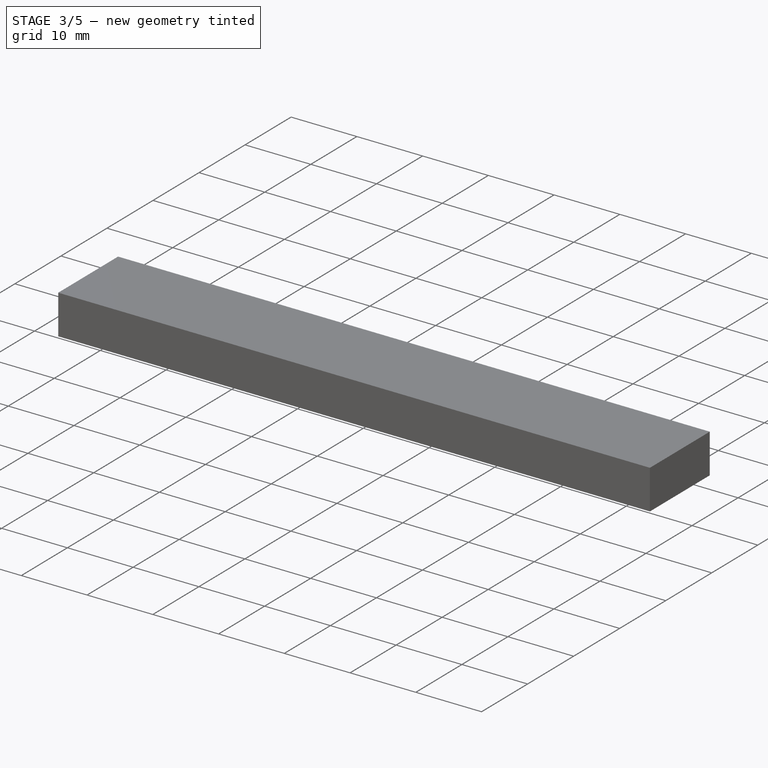
[diagram: stage 3 of 5 — iso view after this stage's code; geometry added in this stage tinted green]
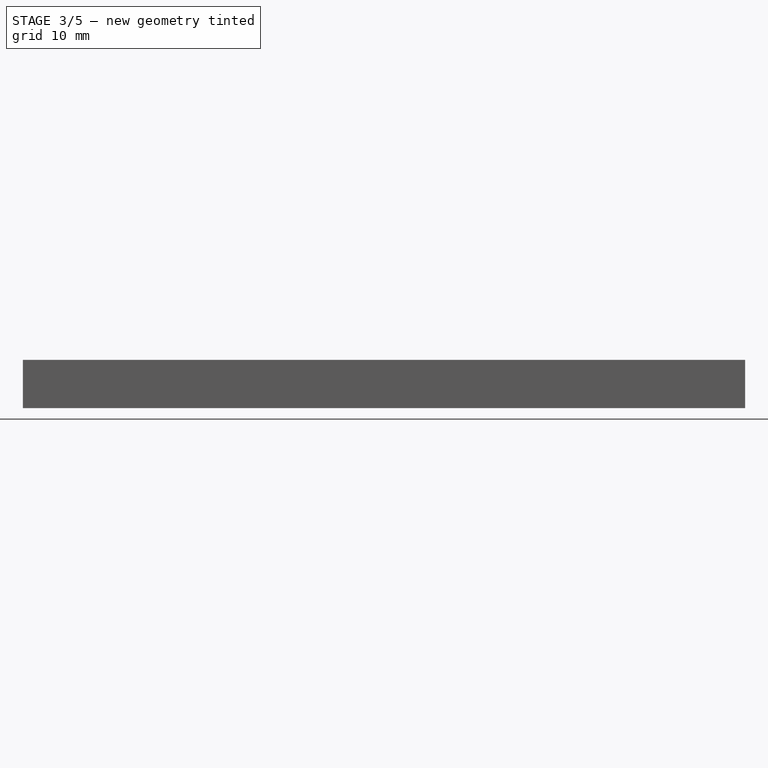
[diagram: stage 3 of 5 — front view after this stage's code; geometry added in this stage tinted green]
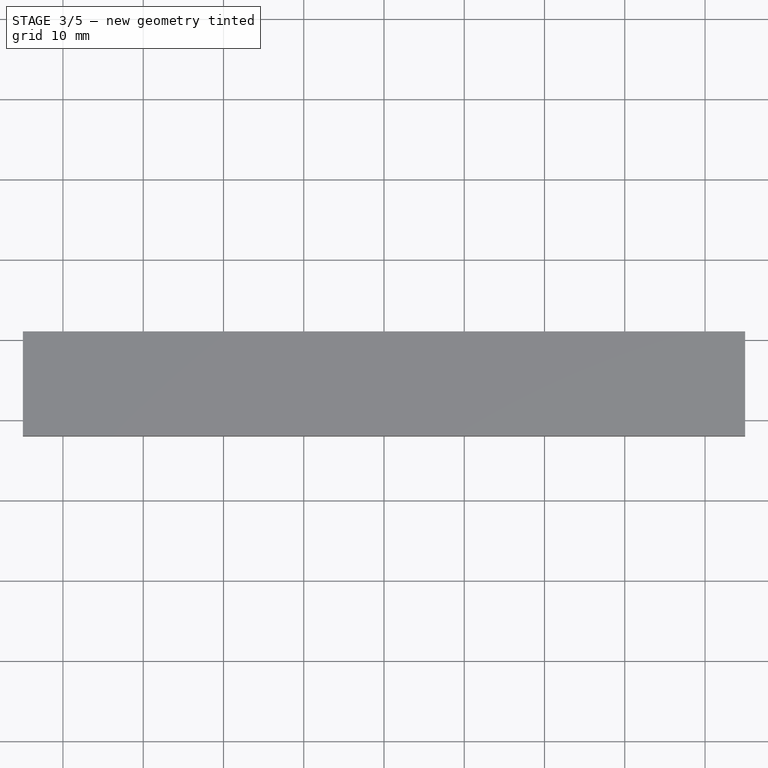
[diagram: stage 3 of 5 — top view after this stage's code; geometry added in this stage tinted green]
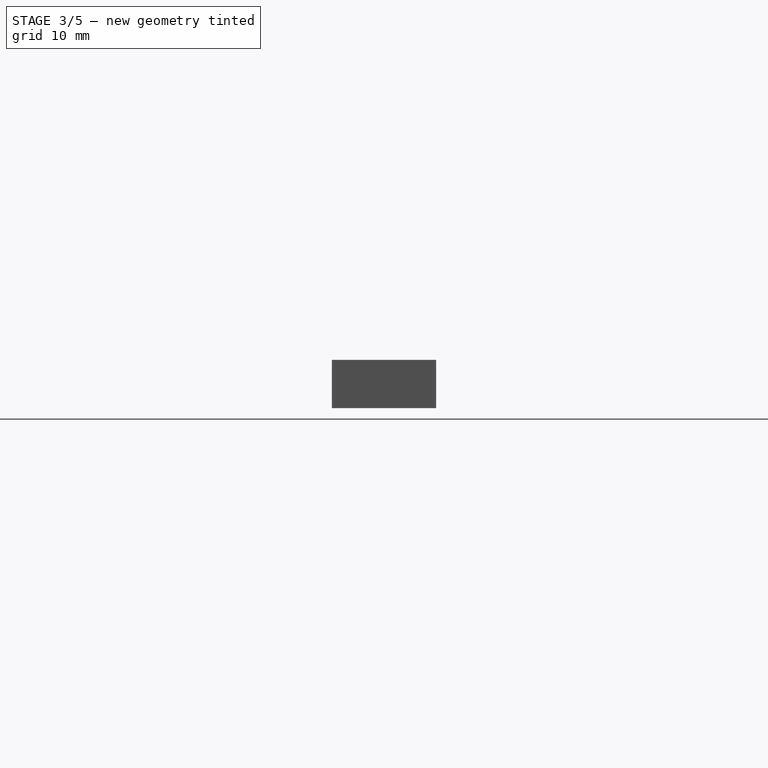
[diagram: stage 3 of 5 — right view after this stage's code; geometry added in this stage tinted green]
FEATURE [PartDesign::Body] Body021  label="Supersot013"
  Group = -> [Sketch021,Pad021,Chamfer007]
  Origin = -> Origin092
  Tip = -> Chamfer007
FEATURE [App::Part] Q8
  Group = -> [Open_CASCADE_STEP_translator_6_8_1_13_1007,Body021]
  Origin = -> Origin062
  Placement = pos=(36.83,-11.43,0.5) rot=(0,0,1;0rad)
FEATURE [Sketcher::SketchObject] Sketch022
  MapMode = 5
  Support = -> [XY_Plane093]
  sketch-geometry (7):
    g0: LineSegment StartX=-1.6 StartY=-1.5 StartZ=0 EndX=1.6 EndY=-1.5 EndZ=0
    g1: LineSegment StartX=1.6 StartY=-1.5 StartZ=0 EndX=1.6 EndY=1.5 EndZ=0
    g2: LineSegment StartX=1.6 StartY=1.5 StartZ=0 EndX=-1.6 EndY=1.5 EndZ=0
    g3: LineSegment StartX=-1.6 StartY=1.5 StartZ=0 EndX=-1.6 EndY=-1.5 EndZ=0
    g4: LineSegment [constr] StartX=-1.6 StartY=1.5 StartZ=0 EndX=0 EndY=0 EndZ=0
    g5: LineSegment [constr] StartX=0 StartY=0 StartZ=0 EndX=1.6 EndY=1.5 EndZ=0
    g6: LineSegment [constr] StartX=0 StartY=0 StartZ=0 EndX=-1.6 EndY=-1.5 EndZ=0
  constraints (18):
    c: Coincident(g0,g1)
    c: Coincident(g1,g2)
    c: Coincident(g2,g3)
    c: Coincident(g3,g0)
    c: Horizontal(g0)
    c: Horizontal(g2)
    c: Vertical(g1)
    c: Vertical(g3)
    c: Coincident(g4,g2)
    c: Coincident(g4,g-1)
    c: Coincident(g5,g-1)
    c: Coincident(g5,g1)
    c: Coincident(g6,g-1)
    c: Coincident(g6,g0)
    c: Equal(g5,g4)
    c: Equal(g4,g6)
    c: DistanceX(g2,g2) = 3.2
    c: DistanceY(g3,g3) = 3
FEATURE [PartDesign::Pad] Pad022
  Length = 1.2
  Length2 = 100
  Profile = -> Sketch022
  Refine = true
  Type = 0
FEATURE [PartDesign::Body] Body022  label="Sot23-5"
  Group = -> [Sketch022,Pad022,Chamfer008,Sketch023,Pocket]
  Origin = -> Origin093
  Placement = pos=(0,0,0) rot=(0,0,1;1.5708rad)
  Tip = -> Pocket
FEATURE [App::Part] U3
  Group = -> [Open_CASCADE_STEP_translator_6_8_1_36_1,Body022]
  Origin = -> Origin070
  Placement = pos=(6.985,-11.43,0.5) rot=(0,0,1;1.5708rad)
FEATURE [Sketcher::SketchObject] Sketch024
  MapMode = 5
  Support = -> [XY_Plane094]
  sketch-geometry (7):
    g0: LineSegment StartX=-1.6 StartY=-1.5 StartZ=0 EndX=1.6 EndY=-1.5 EndZ=0
    g1: LineSegment StartX=1.6 StartY=-1.5 StartZ=0 EndX=1.6 EndY=1.5 EndZ=0
    g2: LineSegment StartX=1.6 StartY=1.5 StartZ=0 EndX=-1.6 EndY=1.5 EndZ=0
    g3: LineSegment StartX=-1.6 StartY=1.5 StartZ=0 EndX=-1.6 EndY=-1.5 EndZ=0
    g4: LineSegment [constr] StartX=-1.6 StartY=1.5 StartZ=0 EndX=0 EndY=0 EndZ=0
    g5: LineSegment [constr] StartX=0 StartY=0 StartZ=0 EndX=1.6 EndY=1.5 EndZ=0
    g6: LineSegment [constr] StartX=0 StartY=0 StartZ=0 EndX=-1.6 EndY=-1.5 EndZ=0
  constraints (18):
    c: Coincident(g0,g1)
    c: Coincident(g1,g2)
    c: Coincident(g2,g3)
    c: Coincident(g3,g0)
    c: Horizontal(g0)
    c: Horizontal(g2)
    c: Vertical(g1)
    c: Vertical(g3)
    c: Coincident(g4,g2)
    c: Coincident(g4,g-1)
    c: Coincident(g5,g-1)
    c: Coincident(g5,g1)
    c: Coincident(g6,g-1)
    c: Coincident(g6,g0)
    c: Equal(g5,g4)
    c: Equal(g4,g6)
    c: DistanceX(g2,g2) = 3.2
    c: DistanceY(g3,g3) = 3
FEATURE [PartDesign::Pad] Pad023
  Length = 1.2
  Length2 = 100
  Profile = -> Sketch024
  Refine = true
  Type = 0
FEATURE [PartDesign::Chamfer] Chamfer009
  Base = -> Pad023 [Edge12,Edge7]
  BaseFeature = -> Pad023
  Size = 1
FEATURE [Sketcher::SketchObject] Sketch025
  MapMode = 5
  Placement = pos=(0,0,1.2) rot=(0,0,1;0rad)
  Support = -> [Chamfer009]
  sketch-geometry (7):
    g0: LineSegment StartX=-2.76097 StartY=0.5085 StartZ=0 EndX=-0.743008 EndY=0.5085 EndZ=0
    g1: LineSegment StartX=-0.743008 StartY=0.5085 StartZ=0 EndX=-0.743008 EndY=-0.5085 EndZ=0
    g2: LineSegment StartX=-0.743008 StartY=-0.5085 StartZ=0 EndX=-2.76097 EndY=-0.5085 EndZ=0
    g3: LineSegment StartX=-2.76097 StartY=-0.5085 StartZ=0 EndX=-2.76097 EndY=0.5085 EndZ=0
    g4: LineSegment [constr] StartX=-2.76097 StartY=0.5085 StartZ=0 EndX=-1.75199 EndY=0 EndZ=0
    g5: LineSegment [constr] StartX=-0.743008 StartY=0.5085 StartZ=0 EndX=-1.75199 EndY=0 EndZ=0
    g6: LineSegment [constr] StartX=-2.76097 StartY=-0.5085 StartZ=0 EndX=-1.75199 EndY=0 EndZ=0
  constraints (16):
    c: Coincident(g0,g1)
    c: Coincident(g1,g2)
    c: Coincident(g2,g3)
    c: Coincident(g3,g0)
    c: Horizontal(g0)
    c: Horizontal(g2)
    c: Vertical(g1)
    c: Vertical(g3)
    c: Coincident(g4,g0)
    c: PointOnObject(g4,g-1)
    c: Coincident(g5,g0)
    c: Coincident(g5,g4)
    c: Coincident(g6,g2)
    c: Coincident(g6,g4)
    c: Equal(g4,g6)
    c: Equal(g6,g5)
FEATURE [PartDesign::Pocket] Pocket001
  BaseFeature = -> Chamfer009
  Length = 5
  Length2 = 100
  Profile = -> Sketch025
  Refine = true
  Type = 0
FEATURE [PartDesign::Body] Body023  label="Sot23-006"
  Group = -> [Sketch024,Pad023,Chamfer009,Sketch025,Pocket001]
  Origin = -> Origin094
  Placement = pos=(-0.93,-0.85,0) rot=(0,0,-1;1.5708rad)
  Tip = -> Pocket001
FEATURE [App::Part] D1
  Group = -> [Open_CASCADE_STEP_translator_6_8_1_25_1,Body023]
  Origin = -> Origin048
  Placement = pos=(-11.176,-10.3632,0.5) rot=(0,0,1;1.5708rad)
FEATURE [Sketcher::SketchObject] Sketch026
  MapMode = 5
  Support = -> [XY_Plane095]
  sketch-geometry (7):
    g0: LineSegment StartX=-1.6 StartY=-1.5 StartZ=0 EndX=1.6 EndY=-1.5 EndZ=0
    g1: LineSegment StartX=1.6 StartY=-1.5 StartZ=0 EndX=1.6 EndY=1.5 EndZ=0
    g2: LineSegment StartX=1.6 StartY=1.5 StartZ=0 EndX=-1.6 EndY=1.5 EndZ=0
    g3: LineSegment StartX=-1.6 StartY=1.5 StartZ=0 EndX=-1.6 EndY=-1.5 EndZ=0
    g4: LineSegment [constr] StartX=-1.6 StartY=1.5 StartZ=0 EndX=0 EndY=0 EndZ=0
    g5: LineSegment [constr] StartX=0 StartY=0 StartZ=0 EndX=1.6 EndY=1.5 EndZ=0
    g6: LineSegment [constr] StartX=0 StartY=0 StartZ=0 EndX=-1.6 EndY=-1.5 EndZ=0
  constraints (18):
    c: Coincident(g0,g1)
    c: Coincident(g1,g2)
    c: Coincident(g2,g3)
    c: Coincident(g3,g0)
    c: Horizontal(g0)
    c: Horizontal(g2)
    c: Vertical(g1)
    c: Vertical(g3)
    c: Coincident(g4,g2)
    c: Coincident(g4,g-1)
    c: Coincident(g5,g-1)
    c: Coincident(g5,g1)
    c: Coincident(g6,g-1)
    c: Coincident(g6,g0)
    c: Equal(g5,g4)
    c: Equal(g4,g6)
    c: DistanceX(g2,g2) = 3.2
    c: DistanceY(g3,g3) = 3
FEATURE [PartDesign::Pad] Pad024
  Length = 1.2
  Length2 = 100
  Profile = -> Sketch026
  Refine = true
  Type = 0
FEATURE [PartDesign::Chamfer] Chamfer010
  Base = -> Pad024 [Edge12,Edge7]
  BaseFeature = -> Pad024
  Size = 0.5
FEATURE [Sketcher::SketchObject] Sketch027
  MapMode = 5
  Placement = pos=(0,0,1.2) rot=(0,0,1;0rad)
  Support = -> [Chamfer010]
  sketch-geometry (23):
    g0: LineSegment StartX=-2.77743 StartY=0.5085 StartZ=0 EndX=-0.926537 EndY=0.5085 EndZ=0
    g1: LineSegment StartX=-0.926537 StartY=0.5085 StartZ=0 EndX=-0.926537 EndY=-0.5085 EndZ=0
    g2: LineSegment StartX=-0.926537 StartY=-0.5085 StartZ=0 EndX=-2.77743 EndY=-0.5085 EndZ=0
    g3: LineSegment StartX=-2.77743 StartY=-0.5085 StartZ=0 EndX=-2.77743 EndY=0.5085 EndZ=0
    g4: LineSegment [constr] StartX=-2.77743 StartY=0.5085 StartZ=0 EndX=-1.85198 EndY=0 EndZ=0
    g5: LineSegment [constr] StartX=-0.926537 StartY=0.5085 StartZ=0 EndX=-1.85198 EndY=0 EndZ=0
    g6: LineSegment [constr] StartX=-2.77743 StartY=-0.5085 StartZ=0 EndX=-1.85198 EndY=0 EndZ=0
    g7: LineSegment StartX=0.901831 StartY=1.71105 StartZ=0 EndX=2.61133 EndY=1.71105 EndZ=0
    g8: LineSegment StartX=2.61133 StartY=1.71105 StartZ=0 EndX=2.61133 EndY=0.555831 EndZ=0
    g9: LineSegment StartX=2.61133 StartY=0.555831 StartZ=0 EndX=0.901831 EndY=0.555831 EndZ=0
    g10: LineSegment StartX=0.901831 StartY=0.555831 StartZ=0 EndX=0.901831 EndY=1.71105 EndZ=0
    g11: LineSegment StartX=0.901831 StartY=-1.71105 StartZ=0 EndX=2.61133 EndY=-1.71105 EndZ=0
    g12: LineSegment StartX=2.61133 StartY=-1.71105 StartZ=0 EndX=2.61133 EndY=-0.555831 EndZ=0
    g13: LineSegment StartX=2.61133 StartY=-0.555831 StartZ=0 EndX=0.901831 EndY=-0.555831 EndZ=0
    g14: LineSegment StartX=0.901831 StartY=-0.555831 StartZ=0 EndX=0.901831 EndY=-1.71105 EndZ=0
    g15: LineSegment [constr] StartX=0.901831 StartY=-0.555831 StartZ=0 EndX=1.75658 EndY=-1.13344 EndZ=0
    g16: LineSegment [constr] StartX=1.75658 StartY=-1.13344 StartZ=0 EndX=0.901831 EndY=-1.71105 EndZ=0
    g17: LineSegment [constr] StartX=1.75658 StartY=-1.13344 StartZ=0 EndX=2.61133 EndY=-0.555831 EndZ=0
    g18: LineSegment [constr] StartX=1.75658 StartY=-1.13344 StartZ=0 EndX=1.75658 EndY=0 EndZ=0
    g19: LineSegment [constr] StartX=1.75658 StartY=0 StartZ=0 EndX=1.75658 EndY=1.13344 EndZ=0
    g20: LineSegment [constr] StartX=2.61133 StartY=1.71105 StartZ=0 EndX=1.75658 EndY=1.13344 EndZ=0
    g21: LineSegment [constr] StartX=1.75658 StartY=1.13344 StartZ=0 EndX=0.901831 EndY=1.71105 EndZ=0
    g22: LineSegment [constr] StartX=0.901831 StartY=0.555831 StartZ=0 EndX=1.75658 EndY=1.13344 EndZ=0
  constraints (55):
    c: Coincident(g0,g1)
    c: Coincident(g1,g2)
    c: Coincident(g2,g3)
    c: Coincident(g3,g0)
    c: Horizontal(g0)
    c: Horizontal(g2)
    c: Vertical(g1)
    c: Vertical(g3)
    c: Coincident(g4,g0)
    c: PointOnObject(g4,g-1)
    c: Coincident(g5,g0)
    c: Coincident(g5,g4)
    c: Coincident(g6,g2)
    c: Coincident(g6,g4)
    c: Equal(g4,g6)
    c: Equal(g6,g5)
    c: Coincident(g7,g8)
    c: Coincident(g8,g9)
    c: Coincident(g9,g10)
    c: Coincident(g10,g7)
    c: Horizontal(g7)
    c: Horizontal(g9)
    c: Vertical(g8)
    c: Vertical(g10)
    c: Coincident(g11,g12)
    c: Coincident(g12,g13)
    c: Coincident(g13,g14)
    c: Coincident(g14,g11)
    c: Horizontal(g11)
    c: Horizontal(g13)
    c: Vertical(g12)
    c: Vertical(g14)
    c: Coincident(g15,g13)
    c: Coincident(g16,g15)
    c: Coincident(g16,g11)
    c: Coincident(g17,g15)
    c: Coincident(g17,g12)
    c: Coincident(g18,g15)
    c: PointOnObject(g18,g-1)
    c: Vertical(g18)
    c: Coincident(g19,g18)
    c: Coincident(g20,g7)
    c: Coincident(g20,g19)
    c: Coincident(g21,g19)
    c: Coincident(g21,g7)
    c: Coincident(g22,g9)
    c: Coincident(g22,g19)
    c: Vertical(g19)
    c: Equal(g22,g21)
    c: Equal(g21,g20)
    c: Equal(g20,g15)
    c: Equal(g15,g16)
    c: Equal(g16,g17)
    c: Equal(g13,g7)
    c: Equal(g18,g19)
FEATURE [PartDesign::Pocket] Pocket002
  BaseFeature = -> Chamfer010
  Length = 5
  Length2 = 100
  Profile = -> Sketch027
  Refine = true
  Type = 0
FEATURE [PartDesign::Body] Body024  label="Sot23-big"
  Group = -> [Sketch026,Pad024,Chamfer010,Sketch027,Pocket002]
  Origin = -> Origin095
  Placement = pos=(0,0,0) rot=(0,0,1;1.5708rad)
  Tip = -> Pocket002
FEATURE [App::Part] U1
  Group = -> [Open_CASCADE_STEP_translator_6_8_1_17_1,Body024]
  Origin = -> Origin032
  Placement = pos=(-16.637,-11.303,0.5) rot=(0,0,1;1.5708rad)
FEATURE [App::Part] Open_CASCADE_STEP_translator_6_8_1  label="Open CASCADE STEP translator 6.8 1"
  Group = -> [Part__Feature,J24,J25,J26,J27,J20,J23,J21,J22,J1,J2,R3,Q5,Q6,U6,Q1,U1,R12,C4,R2,R9,R10,C1,R6,D1,C2,Q3,U2,R11,R13,Q7,Q8,R1,C3,C5,U3]
  Origin = -> Origin071
  Placement = pos=(0,11.43,-0.5) rot=(0,0,1;0rad)
FEATURE [Sketcher::SketchObject] Sketch028
  MapMode = 5
  Support = -> [XY_Plane097]
  sketch-geometry (7):
    g0: LineSegment StartX=-1.6 StartY=-1.5 StartZ=0 EndX=1.6 EndY=-1.5 EndZ=0
    g1: LineSegment StartX=1.6 StartY=-1.5 StartZ=0 EndX=1.6 EndY=1.5 EndZ=0
    g2: LineSegment StartX=1.6 StartY=1.5 StartZ=0 EndX=-1.6 EndY=1.5 EndZ=0
    g3: LineSegment StartX=-1.6 StartY=1.5 StartZ=0 EndX=-1.6 EndY=-1.5 EndZ=0
    g4: LineSegment [constr] StartX=-1.6 StartY=1.5 StartZ=0 EndX=0 EndY=0 EndZ=0
    g5: LineSegment [constr] StartX=0 StartY=0 StartZ=0 EndX=1.6 EndY=1.5 EndZ=0
    g6: LineSegment [constr] StartX=0 StartY=0 StartZ=0 EndX=-1.6 EndY=-1.5 EndZ=0
  constraints (18):
    c: Coincident(g0,g1)
    c: Coincident(g1,g2)
    c: Coincident(g2,g3)
    c: Coincident(g3,g0)
    c: Horizontal(g0)
    c: Horizontal(g2)
    c: Vertical(g1)
    c: Vertical(g3)
    c: Coincident(g4,g2)
    c: Coincident(g4,g-1)
    c: Coincident(g5,g-1)
    c: Coincident(g5,g1)
    c: Coincident(g6,g-1)
    c: Coincident(g6,g0)
    c: Equal(g5,g4)
    c: Equal(g4,g6)
    c: DistanceX(g2,g2) = 3.2
    c: DistanceY(g3,g3) = 3
FEATURE [PartDesign::Pad] Pad025
  Length = 1.2
  Length2 = 100
  Profile = -> Sketch028
  Refine = true
  Type = 0
FEATURE [PartDesign::Chamfer] Chamfer011
  Base = -> Pad025 [Edge12,Edge7]
  BaseFeature = -> Pad025
  Size = 1
FEATURE [PartDesign::Body] Body026  label="Supersot014"
  Group = -> [Sketch028,Pad025,Chamfer011]
  Origin = -> Origin097
  Placement = pos=(-25.4,0,0) rot=(0,0,1;0rad)
  Tip = -> Chamfer011
FEATURE [Sketcher::SketchObject] Sketch029
  MapMode = 5
  Support = -> [XY_Plane098]
  sketch-geometry (7):
    g0: LineSegment StartX=-1.6 StartY=-1.5 StartZ=0 EndX=1.6 EndY=-1.5 EndZ=0
    g1: LineSegment StartX=1.6 StartY=-1.5 StartZ=0 EndX=1.6 EndY=1.5 EndZ=0
    g2: LineSegment StartX=1.6 StartY=1.5 StartZ=0 EndX=-1.6 EndY=1.5 EndZ=0
    g3: LineSegment StartX=-1.6 StartY=1.5 StartZ=0 EndX=-1.6 EndY=-1.5 EndZ=0
    g4: LineSegment [constr] StartX=-1.6 StartY=1.5 StartZ=0 EndX=0 EndY=0 EndZ=0
    g5: LineSegment [constr] StartX=0 StartY=0 StartZ=0 EndX=1.6 EndY=1.5 EndZ=0
    g6: LineSegment [constr] StartX=0 StartY=0 StartZ=0 EndX=-1.6 EndY=-1.5 EndZ=0
  constraints (18):
    c: Coincident(g0,g1)
    c: Coincident(g1,g2)
    c: Coincident(g2,g3)
    c: Coincident(g3,g0)
    c: Horizontal(g0)
    c: Horizontal(g2)
    c: Vertical(g1)
    c: Vertical(g3)
    c: Coincident(g4,g2)
    c: Coincident(g4,g-1)
    c: Coincident(g5,g-1)
    c: Coincident(g5,g1)
    c: Coincident(g6,g-1)
    c: Coincident(g6,g0)
    c: Equal(g5,g4)
    c: Equal(g4,g6)
    c: DistanceX(g2,g2) = 3.2
    c: DistanceY(g3,g3) = 3
FEATURE [PartDesign::Pad] Pad026
  Length = 1.2
  Length2 = 100
  Profile = -> Sketch029
  Refine = true
  Type = 0
FEATURE [PartDesign::Chamfer] Chamfer012
  Base = -> Pad026 [Edge12,Edge7]
  BaseFeature = -> Pad026
  Size = 1
FEATURE [PartDesign::Body] Body027  label="Supersot015"
  Group = -> [Sketch029,Pad026,Chamfer012]
  Origin = -> Origin098
  Placement = pos=(-21.59,0,0) rot=(0,0,1;0rad)
  Tip = -> Chamfer012
FEATURE [Sketcher::SketchObject] Sketch030
  MapMode = 5
  Support = -> [XY_Plane099]
  sketch-geometry (7):
    g0: LineSegment StartX=-1.6 StartY=-1.5 StartZ=0 EndX=1.6 EndY=-1.5 EndZ=0
    g1: LineSegment StartX=1.6 StartY=-1.5 StartZ=0 EndX=1.6 EndY=1.5 EndZ=0
    g2: LineSegment StartX=1.6 StartY=1.5 StartZ=0 EndX=-1.6 EndY=1.5 EndZ=0
    g3: LineSegment StartX=-1.6 StartY=1.5 StartZ=0 EndX=-1.6 EndY=-1.5 EndZ=0
    g4: LineSegment [constr] StartX=-1.6 StartY=1.5 StartZ=0 EndX=0 EndY=0 EndZ=0
    g5: LineSegment [constr] StartX=0 StartY=0 StartZ=0 EndX=1.6 EndY=1.5 EndZ=0
    g6: LineSegment [constr] StartX=0 StartY=0 StartZ=0 EndX=-1.6 EndY=-1.5 EndZ=0
  constraints (18):
    c: Coincident(g0,g1)
    c: Coincident(g1,g2)
    c: Coincident(g2,g3)
    c: Coincident(g3,g0)
    c: Horizontal(g0)
    c: Horizontal(g2)
    c: Vertical(g1)
    c: Vertical(g3)
    c: Coincident(g4,g2)
    c: Coincident(g4,g-1)
    c: Coincident(g5,g-1)
    c: Coincident(g5,g1)
    c: Coincident(g6,g-1)
    c: Coincident(g6,g0)
    c: Equal(g5,g4)
    c: Equal(g4,g6)
    c: DistanceX(g2,g2) = 3.2
    c: DistanceY(g3,g3) = 3
FEATURE [PartDesign::Pad] Pad027
  Length = 1.2
  Length2 = 100
  Profile = -> Sketch030
  Refine = true
  Type = 0
FEATURE [PartDesign::Chamfer] Chamfer013
  Base = -> Pad027 [Edge12,Edge7]
  BaseFeature = -> Pad027
  Size = 1
FEATURE [PartDesign::Chamfer] Chamfer014
  Base = -> Pad028 [Edge12,Edge7]
  BaseFeature = -> Pad028
  Size = 1
FEATURE [PartDesign::Chamfer] Chamfer018
  Base = -> Pad029 [Edge12,Edge7]
  BaseFeature = -> Pad029
  Size = 1
FEATURE [PartDesign::Boolean] Boolean
  BaseFeature = -> Pad050
  Group = -> [Body038,Body029,Body028,Body035,Body034,Body026,Body027,Body050,Body049,Body046,Body043,Body042,Body044,Body047,Body048,Body040,Body041,Body045,Body031,Body030,Body037,Body036,Body032,Body033,Body039]
  Refine = true
  Type = 1
FEATURE [PartDesign::Body] Body025
  Group = -> [Sketch056,Pad050,Boolean]
  Origin = -> Origin096
  Tip = -> Boolean
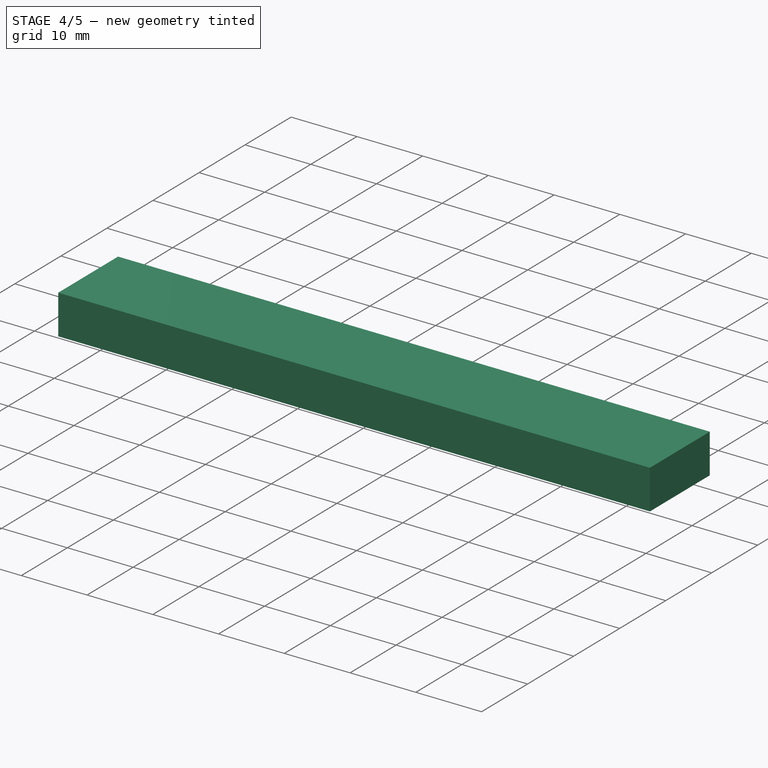
[diagram: stage 4 of 5 — iso view after this stage's code; geometry added in this stage tinted green]
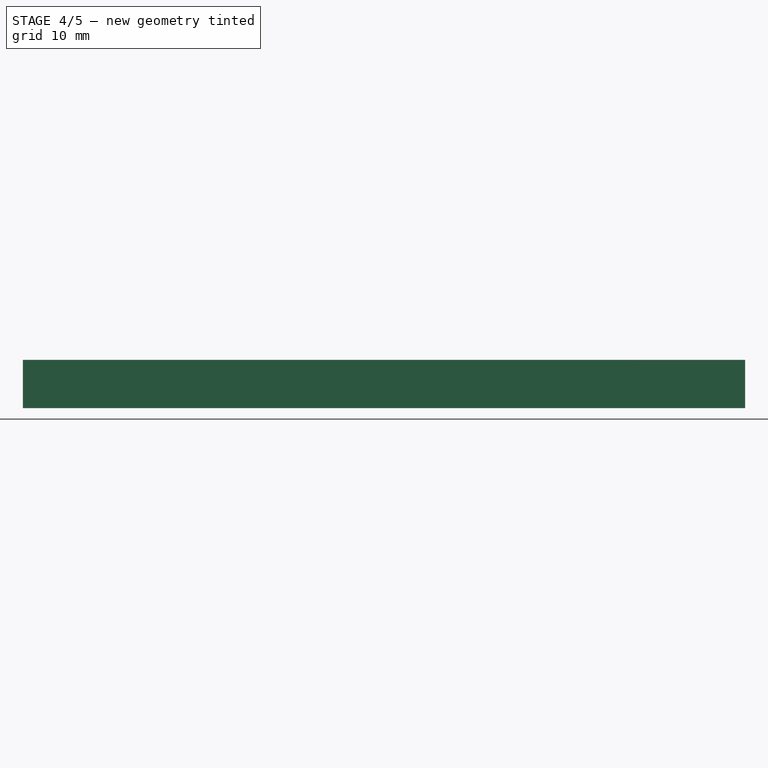
[diagram: stage 4 of 5 — front view after this stage's code; geometry added in this stage tinted green]
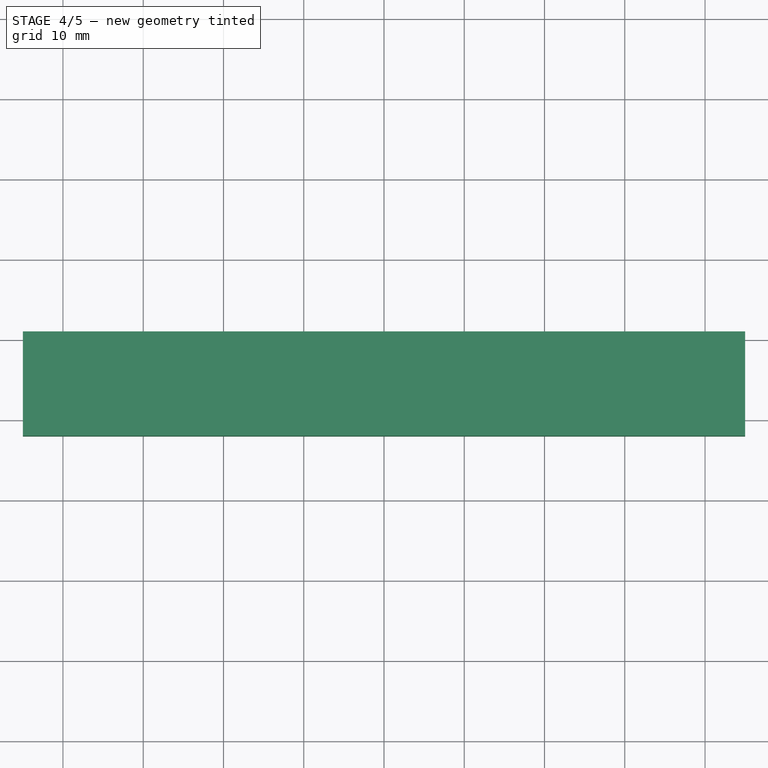
[diagram: stage 4 of 5 — top view after this stage's code; geometry added in this stage tinted green]
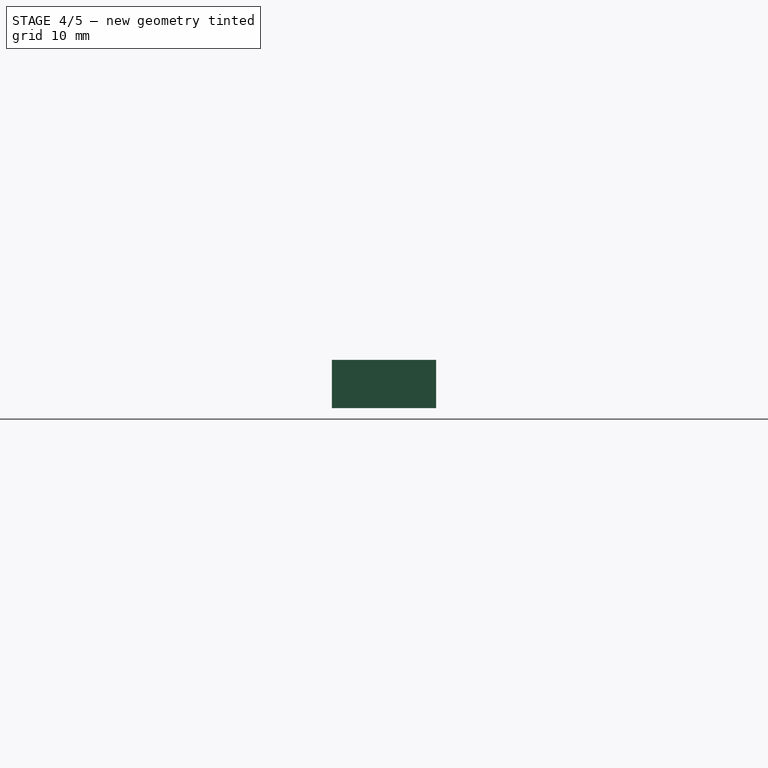
[diagram: stage 4 of 5 — right view after this stage's code; geometry added in this stage tinted green]
FEATURE [PartDesign::Body] Body014  label="Supersot6"
  Group = -> [Sketch014,Pad014,Chamfer]
  Origin = -> Origin085
  Tip = -> Chamfer
FEATURE [Sketcher::SketchObject] Sketch015
  MapMode = 5
  Support = -> [XY_Plane086]
  sketch-geometry (7):
    g0: LineSegment StartX=-1.6 StartY=-1.5 StartZ=0 EndX=1.6 EndY=-1.5 EndZ=0
    g1: LineSegment StartX=1.6 StartY=-1.5 StartZ=0 EndX=1.6 EndY=1.5 EndZ=0
    g2: LineSegment StartX=1.6 StartY=1.5 StartZ=0 EndX=-1.6 EndY=1.5 EndZ=0
    g3: LineSegment StartX=-1.6 StartY=1.5 StartZ=0 EndX=-1.6 EndY=-1.5 EndZ=0
    g4: LineSegment [constr] StartX=-1.6 StartY=1.5 StartZ=0 EndX=0 EndY=0 EndZ=0
    g5: LineSegment [constr] StartX=0 StartY=0 StartZ=0 EndX=1.6 EndY=1.5 EndZ=0
    g6: LineSegment [constr] StartX=0 StartY=0 StartZ=0 EndX=-1.6 EndY=-1.5 EndZ=0
  constraints (18):
    c: Coincident(g0,g1)
    c: Coincident(g1,g2)
    c: Coincident(g2,g3)
    c: Coincident(g3,g0)
    c: Horizontal(g0)
    c: Horizontal(g2)
    c: Vertical(g1)
    c: Vertical(g3)
    c: Coincident(g4,g2)
    c: Coincident(g4,g-1)
    c: Coincident(g5,g-1)
    c: Coincident(g5,g1)
    c: Coincident(g6,g-1)
    c: Coincident(g6,g0)
    c: Equal(g5,g4)
    c: Equal(g4,g6)
    c: DistanceX(g2,g2) = 3.2
    c: DistanceY(g3,g3) = 3
FEATURE [PartDesign::Pad] Pad015
  Length = 1.2
  Length2 = 100
  Profile = -> Sketch015
  Refine = true
  Type = 0
FEATURE [PartDesign::Chamfer] Chamfer001
  Base = -> Pad015 [Edge12,Edge7]
  BaseFeature = -> Pad015
  Size = 1
FEATURE [PartDesign::Body] Body015  label="Supersot007"
  Group = -> [Sketch015,Pad015,Chamfer001]
  Origin = -> Origin086
  Tip = -> Chamfer001
FEATURE [Sketcher::SketchObject] Sketch016
  MapMode = 5
  Support = -> [XY_Plane087]
  sketch-geometry (7):
    g0: LineSegment StartX=-1.6 StartY=-1.5 StartZ=0 EndX=1.6 EndY=-1.5 EndZ=0
    g1: LineSegment StartX=1.6 StartY=-1.5 StartZ=0 EndX=1.6 EndY=1.5 EndZ=0
    g2: LineSegment StartX=1.6 StartY=1.5 StartZ=0 EndX=-1.6 EndY=1.5 EndZ=0
    g3: LineSegment StartX=-1.6 StartY=1.5 StartZ=0 EndX=-1.6 EndY=-1.5 EndZ=0
    g4: LineSegment [constr] StartX=-1.6 StartY=1.5 StartZ=0 EndX=0 EndY=0 EndZ=0
    g5: LineSegment [constr] StartX=0 StartY=0 StartZ=0 EndX=1.6 EndY=1.5 EndZ=0
    g6: LineSegment [constr] StartX=0 StartY=0 StartZ=0 EndX=-1.6 EndY=-1.5 EndZ=0
  constraints (18):
    c: Coincident(g0,g1)
    c: Coincident(g1,g2)
    c: Coincident(g2,g3)
    c: Coincident(g3,g0)
    c: Horizontal(g0)
    c: Horizontal(g2)
    c: Vertical(g1)
    c: Vertical(g3)
    c: Coincident(g4,g2)
    c: Coincident(g4,g-1)
    c: Coincident(g5,g-1)
    c: Coincident(g5,g1)
    c: Coincident(g6,g-1)
    c: Coincident(g6,g0)
    c: Equal(g5,g4)
    c: Equal(g4,g6)
    c: DistanceX(g2,g2) = 3.2
    c: DistanceY(g3,g3) = 3
FEATURE [PartDesign::Pad] Pad016
  Length = 1.2
  Length2 = 100
  Profile = -> Sketch016
  Refine = true
  Type = 0
FEATURE [PartDesign::Chamfer] Chamfer002
  Base = -> Pad016 [Edge12,Edge7]
  BaseFeature = -> Pad016
  Size = 1
FEATURE [PartDesign::Body] Body016  label="Supersot008"
  Group = -> [Sketch016,Pad016,Chamfer002]
  Origin = -> Origin087
  Tip = -> Chamfer002
FEATURE [App::Part] U6
  Group = -> [Open_CASCADE_STEP_translator_6_8_1_13_1002,Body016]
  Origin = -> Origin028
  Placement = pos=(-25.4,-11.43,0.5) rot=(0,0,1;0rad)
FEATURE [Sketcher::SketchObject] Sketch017
  MapMode = 5
  Support = -> [XY_Plane088]
  sketch-geometry (7):
    g0: LineSegment StartX=-1.6 StartY=-1.5 StartZ=0 EndX=1.6 EndY=-1.5 EndZ=0
    g1: LineSegment StartX=1.6 StartY=-1.5 StartZ=0 EndX=1.6 EndY=1.5 EndZ=0
    g2: LineSegment StartX=1.6 StartY=1.5 StartZ=0 EndX=-1.6 EndY=1.5 EndZ=0
    g3: LineSegment StartX=-1.6 StartY=1.5 StartZ=0 EndX=-1.6 EndY=-1.5 EndZ=0
    g4: LineSegment [constr] StartX=-1.6 StartY=1.5 StartZ=0 EndX=0 EndY=0 EndZ=0
    g5: LineSegment [constr] StartX=0 StartY=0 StartZ=0 EndX=1.6 EndY=1.5 EndZ=0
    g6: LineSegment [constr] StartX=0 StartY=0 StartZ=0 EndX=-1.6 EndY=-1.5 EndZ=0
  constraints (18):
    c: Coincident(g0,g1)
    c: Coincident(g1,g2)
    c: Coincident(g2,g3)
    c: Coincident(g3,g0)
    c: Horizontal(g0)
    c: Horizontal(g2)
    c: Vertical(g1)
    c: Vertical(g3)
    c: Coincident(g4,g2)
    c: Coincident(g4,g-1)
    c: Coincident(g5,g-1)
    c: Coincident(g5,g1)
    c: Coincident(g6,g-1)
    c: Coincident(g6,g0)
    c: Equal(g5,g4)
    c: Equal(g4,g6)
    c: DistanceX(g2,g2) = 3.2
    c: DistanceY(g3,g3) = 3
FEATURE [PartDesign::Pad] Pad017
  Length = 1.2
  Length2 = 100
  Profile = -> Sketch017
  Refine = true
  Type = 0
FEATURE [PartDesign::Chamfer] Chamfer003
  Base = -> Pad017 [Edge12,Edge7]
  BaseFeature = -> Pad017
  Size = 1
FEATURE [PartDesign::Body] Body017  label="Supersot009"
  Group = -> [Sketch017,Pad017,Chamfer003]
  Origin = -> Origin088
  Tip = -> Chamfer003
FEATURE [App::Part] Open_CASCADE_STEP_translator_6_8_1_13_1003  label="Open CASCADE STEP translator 6.8 1.13.004"
  Group = -> [Part__Feature035,Part__Feature036,Part__Feature037,Part__Feature038,Part__Feature039,Part__Feature040,Part__Feature041]
  Origin = -> Origin029
FEATURE [App::Part] Q1
  Group = -> [Open_CASCADE_STEP_translator_6_8_1_13_1003,Body017]
  Origin = -> Origin030
  Placement = pos=(-21.59,-11.43,0.5) rot=(0,0,1;0rad)
FEATURE [Part::Feature] Part__Feature021  label="Body_013"
  shape: bbox 1.2 x 2.4 x 0.75 mm, 6 faces (baked)
FEATURE [Part::Feature] Part__Feature022  label="Pin_005"
  shape: bbox 0.8 x 0.4 x 0.725 mm, 12 faces (baked)
FEATURE [Part::Feature] Part__Feature023  label="Pin_006"
  shape: bbox 0.8 x 0.4 x 0.725 mm, 12 faces (baked)
FEATURE [Part::Feature] Part__Feature024  label="Pin_007"
  shape: bbox 0.8 x 0.4 x 0.725 mm, 12 faces (baked)
FEATURE [Part::Feature] Part__Feature025  label="Pin_008"
  Placement = pos=(2.6,-1.9,0) rot=(0,0,1;3.14159rad)
  shape: bbox 0.8 x 0.4 x 0.725 mm, 12 faces (baked)
FEATURE [Part::Feature] Part__Feature026  label="Pin_009"
  Placement = pos=(2.6,0,0) rot=(0,0,1;3.14159rad)
  shape: bbox 0.8 x 0.4 x 0.725 mm, 12 faces (baked)
FEATURE [Part::Feature] Part__Feature027  label="Pin_010"
  Placement = pos=(2.6,1.9,0) rot=(0,0,1;3.14159rad)
  shape: bbox 0.8 x 0.4 x 0.725 mm, 12 faces (baked)
FEATURE [App::Part] Open_CASCADE_STEP_translator_6_8_1_13_1001  label="Open CASCADE STEP translator 6.8 1.13.002"
  Group = -> [Part__Feature021,Part__Feature022,Part__Feature023,Part__Feature024,Part__Feature025,Part__Feature026,Part__Feature027]
  Origin = -> Origin025
FEATURE [App::Part] Q6
  Group = -> [Open_CASCADE_STEP_translator_6_8_1_13_1001,Body015]
  Origin = -> Origin026
  Placement = pos=(-33.02,-11.43,0.5) rot=(0,0,1;0rad)
FEATURE [Part::Feature] Part__Feature014  label="Body_012"
  shape: bbox 1.2 x 2.4 x 0.75 mm, 6 faces (baked)
FEATURE [Part::Feature] Part__Feature015  label="Pin_003"
  shape: bbox 0.8 x 0.4 x 0.725 mm, 12 faces (baked)
FEATURE [Part::Feature] Part__Feature016  label="Pin_004"
  shape: bbox 0.8 x 0.4 x 0.725 mm, 12 faces (baked)
FEATURE [Part::Feature] Part__Feature017  label="Pin_3"
  shape: bbox 0.8 x 0.4 x 0.725 mm, 12 faces (baked)
FEATURE [Part::Feature] Part__Feature018  label="Pin_4"
  Placement = pos=(2.6,-1.9,0) rot=(0,0,1;3.14159rad)
  shape: bbox 0.8 x 0.4 x 0.725 mm, 12 faces (baked)
FEATURE [Part::Feature] Part__Feature019  label="Pin_5"
  Placement = pos=(2.6,0,0) rot=(0,0,1;3.14159rad)
  shape: bbox 0.8 x 0.4 x 0.725 mm, 12 faces (baked)
FEATURE [Part::Feature] Part__Feature020  label="Pin_6"
  Placement = pos=(2.6,1.9,0) rot=(0,0,1;3.14159rad)
  shape: bbox 0.8 x 0.4 x 0.725 mm, 12 faces (baked)
FEATURE [App::Part] Open_CASCADE_STEP_translator_6_8_1_13_1  label="Open CASCADE STEP translator 6.8 1.13.1"
  Group = -> [Part__Feature014,Part__Feature015,Part__Feature016,Part__Feature017,Part__Feature018,Part__Feature019,Part__Feature020]
  Origin = -> Origin023
FEATURE [App::Part] Q5
  Group = -> [Open_CASCADE_STEP_translator_6_8_1_13_1,Body014]
  Origin = -> Origin024
  Placement = pos=(-36.83,-11.43,0.5) rot=(0,0,1;0rad)
FEATURE [Sketcher::SketchObject] Sketch018
  MapMode = 5
  Support = -> [XY_Plane089]
  sketch-geometry (7):
    g0: LineSegment StartX=-1.6 StartY=-1.5 StartZ=0 EndX=1.6 EndY=-1.5 EndZ=0
    g1: LineSegment StartX=1.6 StartY=-1.5 StartZ=0 EndX=1.6 EndY=1.5 EndZ=0
    g2: LineSegment StartX=1.6 StartY=1.5 StartZ=0 EndX=-1.6 EndY=1.5 EndZ=0
    g3: LineSegment StartX=-1.6 StartY=1.5 StartZ=0 EndX=-1.6 EndY=-1.5 EndZ=0
    g4: LineSegment [constr] StartX=-1.6 StartY=1.5 StartZ=0 EndX=0 EndY=0 EndZ=0
    g5: LineSegment [constr] StartX=0 StartY=0 StartZ=0 EndX=1.6 EndY=1.5 EndZ=0
    g6: LineSegment [constr] StartX=0 StartY=0 StartZ=0 EndX=-1.6 EndY=-1.5 EndZ=0
  constraints (18):
    c: Coincident(g0,g1)
    c: Coincident(g1,g2)
    c: Coincident(g2,g3)
    c: Coincident(g3,g0)
    c: Horizontal(g0)
    c: Horizontal(g2)
    c: Vertical(g1)
    c: Vertical(g3)
    c: Coincident(g4,g2)
    c: Coincident(g4,g-1)
    c: Coincident(g5,g-1)
    c: Coincident(g5,g1)
    c: Coincident(g6,g-1)
    c: Coincident(g6,g0)
    c: Equal(g5,g4)
    c: Equal(g4,g6)
    c: DistanceX(g2,g2) = 3.2
    c: DistanceY(g3,g3) = 3
FEATURE [PartDesign::Pad] Pad018
  Length = 1.2
  Length2 = 100
  Profile = -> Sketch018
  Refine = true
  Type = 0
FEATURE [PartDesign::Chamfer] Chamfer004
  Base = -> Pad018 [Edge12,Edge7]
  BaseFeature = -> Pad018
  Size = 1
FEATURE [PartDesign::Body] Body018  label="Supersot010"
  Group = -> [Sketch018,Pad018,Chamfer004]
  Origin = -> Origin089
  Tip = -> Chamfer004
FEATURE [App::Part] Q3
  Group = -> [Open_CASCADE_STEP_translator_6_8_1_13_1004,Body018]
  Origin = -> Origin052
  Placement = pos=(21.59,-11.43,0.5) rot=(0,0,1;0rad)
FEATURE [Sketcher::SketchObject] Sketch019
  MapMode = 5
  Support = -> [XY_Plane090]
  sketch-geometry (7):
    g0: LineSegment StartX=-1.6 StartY=-1.5 StartZ=0 EndX=1.6 EndY=-1.5 EndZ=0
    g1: LineSegment StartX=1.6 StartY=-1.5 StartZ=0 EndX=1.6 EndY=1.5 EndZ=0
    g2: LineSegment StartX=1.6 StartY=1.5 StartZ=0 EndX=-1.6 EndY=1.5 EndZ=0
    g3: LineSegment StartX=-1.6 StartY=1.5 StartZ=0 EndX=-1.6 EndY=-1.5 EndZ=0
    g4: LineSegment [constr] StartX=-1.6 StartY=1.5 StartZ=0 EndX=0 EndY=0 EndZ=0
    g5: LineSegment [constr] StartX=0 StartY=0 StartZ=0 EndX=1.6 EndY=1.5 EndZ=0
    g6: LineSegment [constr] StartX=0 StartY=0 StartZ=0 EndX=-1.6 EndY=-1.5 EndZ=0
  constraints (18):
    c: Coincident(g0,g1)
    c: Coincident(g1,g2)
    c: Coincident(g2,g3)
    c: Coincident(g3,g0)
    c: Horizontal(g0)
    c: Horizontal(g2)
    c: Vertical(g1)
    c: Vertical(g3)
    c: Coincident(g4,g2)
    c: Coincident(g4,g-1)
    c: Coincident(g5,g-1)
    c: Coincident(g5,g1)
    c: Coincident(g6,g-1)
    c: Coincident(g6,g0)
    c: Equal(g5,g4)
    c: Equal(g4,g6)
    c: DistanceX(g2,g2) = 3.2
    c: DistanceY(g3,g3) = 3
FEATURE [PartDesign::Pad] Pad019
  Length = 1.2
  Length2 = 100
  Profile = -> Sketch019
  Refine = true
  Type = 0
FEATURE [PartDesign::Chamfer] Chamfer005
  Base = -> Pad019 [Edge12,Edge7]
  BaseFeature = -> Pad019
  Size = 1
FEATURE [PartDesign::Body] Body019  label="Supersot011"
  Group = -> [Sketch019,Pad019,Chamfer005]
  Origin = -> Origin090
  Tip = -> Chamfer005
FEATURE [App::Part] U2
  Group = -> [Open_CASCADE_STEP_translator_6_8_1_13_1005,Body019]
  Origin = -> Origin054
  Placement = pos=(25.4,-11.43,0.5) rot=(0,0,1;0rad)
FEATURE [Sketcher::SketchObject] Sketch020
  MapMode = 5
  Support = -> [XY_Plane091]
  sketch-geometry (7):
    g0: LineSegment StartX=-1.6 StartY=-1.5 StartZ=0 EndX=1.6 EndY=-1.5 EndZ=0
    g1: LineSegment StartX=1.6 StartY=-1.5 StartZ=0 EndX=1.6 EndY=1.5 EndZ=0
    g2: LineSegment StartX=1.6 StartY=1.5 StartZ=0 EndX=-1.6 EndY=1.5 EndZ=0
    g3: LineSegment StartX=-1.6 StartY=1.5 StartZ=0 EndX=-1.6 EndY=-1.5 EndZ=0
    g4: LineSegment [constr] StartX=-1.6 StartY=1.5 StartZ=0 EndX=0 EndY=0 EndZ=0
    g5: LineSegment [constr] StartX=0 StartY=0 StartZ=0 EndX=1.6 EndY=1.5 EndZ=0
    g6: LineSegment [constr] StartX=0 StartY=0 StartZ=0 EndX=-1.6 EndY=-1.5 EndZ=0
  constraints (18):
    c: Coincident(g0,g1)
    c: Coincident(g1,g2)
    c: Coincident(g2,g3)
    c: Coincident(g3,g0)
    c: Horizontal(g0)
    c: Horizontal(g2)
    c: Vertical(g1)
    c: Vertical(g3)
    c: Coincident(g4,g2)
    c: Coincident(g4,g-1)
    c: Coincident(g5,g-1)
    c: Coincident(g5,g1)
    c: Coincident(g6,g-1)
    c: Coincident(g6,g0)
    c: Equal(g5,g4)
    c: Equal(g4,g6)
    c: DistanceX(g2,g2) = 3.2
    c: DistanceY(g3,g3) = 3
FEATURE [PartDesign::Pad] Pad020
  Length = 1.2
  Length2 = 100
  Profile = -> Sketch020
  Refine = true
  Type = 0
FEATURE [PartDesign::Chamfer] Chamfer006
  Base = -> Pad020 [Edge12,Edge7]
  BaseFeature = -> Pad020
  Size = 1
FEATURE [PartDesign::Body] Body020  label="Supersot012"
  Group = -> [Sketch020,Pad020,Chamfer006]
  Origin = -> Origin091
  Tip = -> Chamfer006
FEATURE [App::Part] Q7
  Group = -> [Open_CASCADE_STEP_translator_6_8_1_13_1006,Body020]
  Origin = -> Origin060
  Placement = pos=(33.02,-11.43,0.5) rot=(0,0,1;0rad)
FEATURE [Sketcher::SketchObject] Sketch021
  MapMode = 5
  Support = -> [XY_Plane092]
  sketch-geometry (7):
    g0: LineSegment StartX=-1.6 StartY=-1.5 StartZ=0 EndX=1.6 EndY=-1.5 EndZ=0
    g1: LineSegment StartX=1.6 StartY=-1.5 StartZ=0 EndX=1.6 EndY=1.5 EndZ=0
    g2: LineSegment StartX=1.6 StartY=1.5 StartZ=0 EndX=-1.6 EndY=1.5 EndZ=0
    g3: LineSegment StartX=-1.6 StartY=1.5 StartZ=0 EndX=-1.6 EndY=-1.5 EndZ=0
    g4: LineSegment [constr] StartX=-1.6 StartY=1.5 StartZ=0 EndX=0 EndY=0 EndZ=0
    g5: LineSegment [constr] StartX=0 StartY=0 StartZ=0 EndX=1.6 EndY=1.5 EndZ=0
    g6: LineSegment [constr] StartX=0 StartY=0 StartZ=0 EndX=-1.6 EndY=-1.5 EndZ=0
  constraints (18):
    c: Coincident(g0,g1)
    c: Coincident(g1,g2)
    c: Coincident(g2,g3)
    c: Coincident(g3,g0)
    c: Horizontal(g0)
    c: Horizontal(g2)
    c: Vertical(g1)
    c: Vertical(g3)
    c: Coincident(g4,g2)
    c: Coincident(g4,g-1)
    c: Coincident(g5,g-1)
    c: Coincident(g5,g1)
    c: Coincident(g6,g-1)
    c: Coincident(g6,g0)
    c: Equal(g5,g4)
    c: Equal(g4,g6)
    c: DistanceX(g2,g2) = 3.2
    c: DistanceY(g3,g3) = 3
FEATURE [PartDesign::Pad] Pad021
  Length = 1.2
  Length2 = 100
  Profile = -> Sketch021
  Refine = true
  Type = 0
FEATURE [PartDesign::Chamfer] Chamfer007
  Base = -> Pad021 [Edge12,Edge7]
  BaseFeature = -> Pad021
  Size = 1
FEATURE [PartDesign::Chamfer] Chamfer008
  Base = -> Pad022 [Edge12,Edge7]
  BaseFeature = -> Pad022
  Size = 1
FEATURE [Sketcher::SketchObject] Sketch023
  MapMode = 5
  Placement = pos=(0,0,1.2) rot=(0,0,1;0rad)
  Support = -> [Chamfer008]
  sketch-geometry (7):
    g0: LineSegment StartX=-2.76097 StartY=0.5085 StartZ=0 EndX=-0.743008 EndY=0.5085 EndZ=0
    g1: LineSegment StartX=-0.743008 StartY=0.5085 StartZ=0 EndX=-0.743008 EndY=-0.5085 EndZ=0
    g2: LineSegment StartX=-0.743008 StartY=-0.5085 StartZ=0 EndX=-2.76097 EndY=-0.5085 EndZ=0
    g3: LineSegment StartX=-2.76097 StartY=-0.5085 StartZ=0 EndX=-2.76097 EndY=0.5085 EndZ=0
    g4: LineSegment [constr] StartX=-2.76097 StartY=0.5085 StartZ=0 EndX=-1.75199 EndY=0 EndZ=0
    g5: LineSegment [constr] StartX=-0.743008 StartY=0.5085 StartZ=0 EndX=-1.75199 EndY=0 EndZ=0
    g6: LineSegment [constr] StartX=-2.76097 StartY=-0.5085 StartZ=0 EndX=-1.75199 EndY=0 EndZ=0
  constraints (16):
    c: Coincident(g0,g1)
    c: Coincident(g1,g2)
    c: Coincident(g2,g3)
    c: Coincident(g3,g0)
    c: Horizontal(g0)
    c: Horizontal(g2)
    c: Vertical(g1)
    c: Vertical(g3)
    c: Coincident(g4,g0)
    c: PointOnObject(g4,g-1)
    c: Coincident(g5,g0)
    c: Coincident(g5,g4)
    c: Coincident(g6,g2)
    c: Coincident(g6,g4)
    c: Equal(g4,g6)
    c: Equal(g6,g5)
FEATURE [PartDesign::Pocket] Pocket
  BaseFeature = -> Chamfer008
  Length = 5
  Length2 = 100
  Profile = -> Sketch023
  Refine = true
  Type = 0
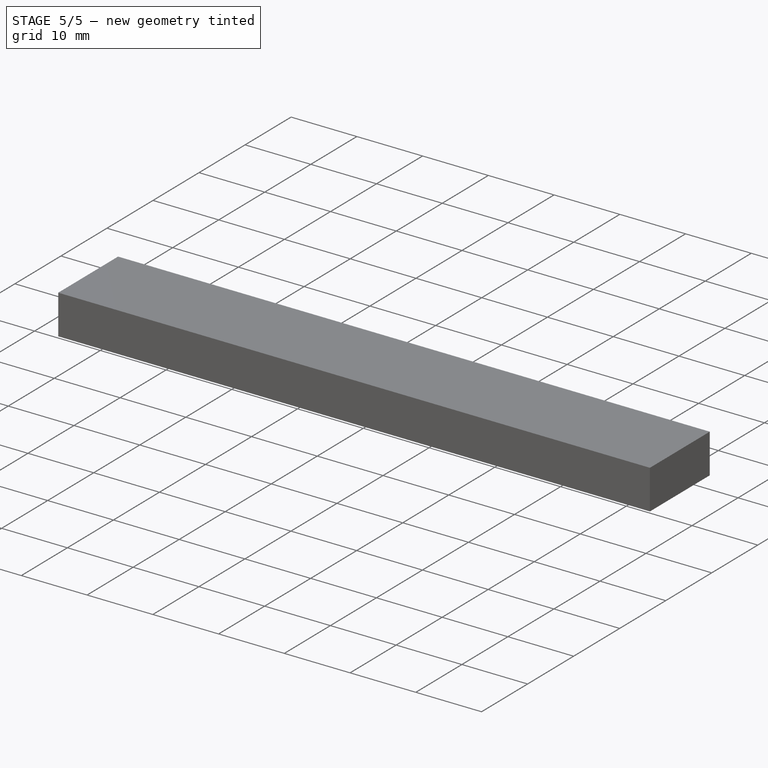
[diagram: stage 5 of 5 — iso view after this stage's code; geometry added in this stage tinted green]
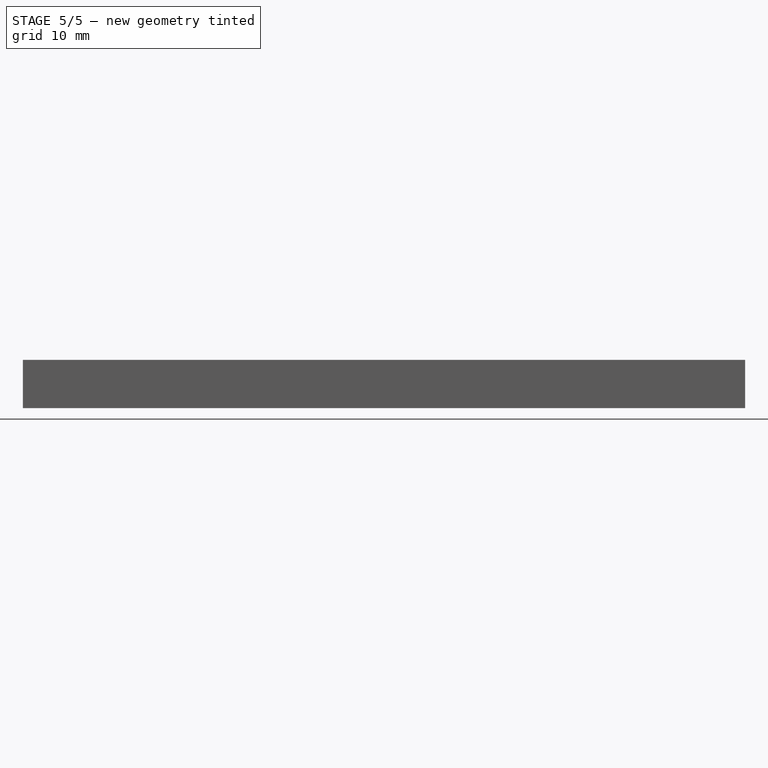
[diagram: stage 5 of 5 — front view after this stage's code; geometry added in this stage tinted green]
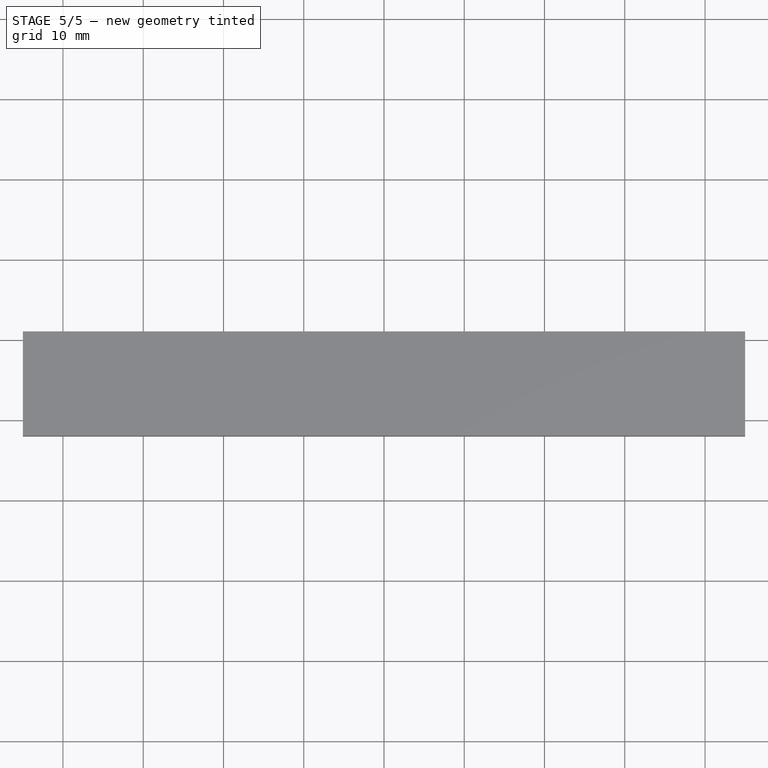
[diagram: stage 5 of 5 — top view after this stage's code; geometry added in this stage tinted green]
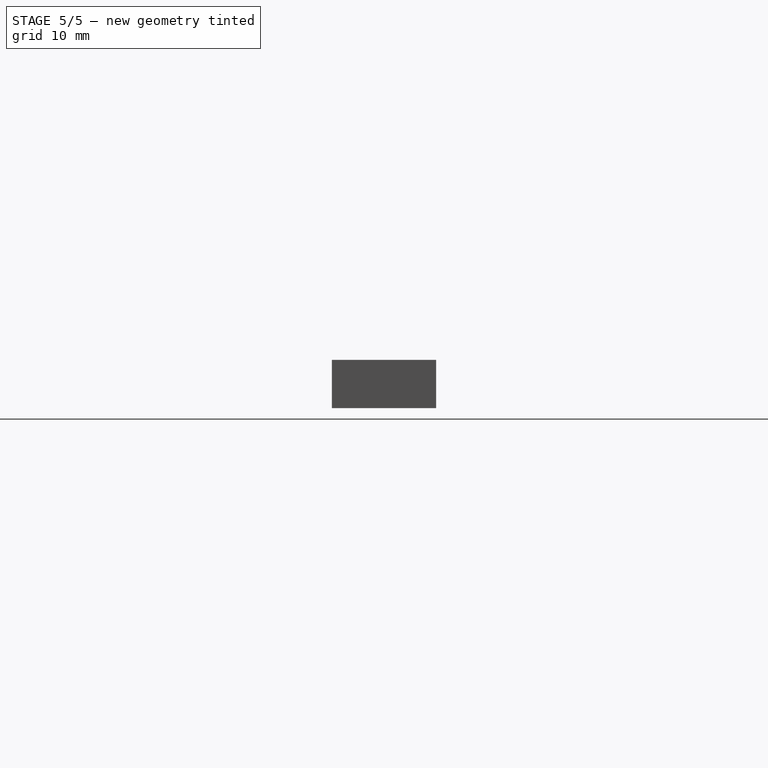
[diagram: stage 5 of 5 — right view after this stage's code; geometry added in this stage tinted green]
FEATURE [Part::Feature] Part__Feature  label="Layer_1"
  shape: bbox 86 x 12.5 x 1 mm, 366 faces (baked)
FEATURE [Part::Feature] Part__Feature001  label="Body_1"
  Placement = pos=(0,0,0) rot=(0,1,0;1.5708rad)
  shape: bbox 1.5 x 1.5 x 3.2 mm, 15 faces (baked)
FEATURE [App::Part] Open_CASCADE_STEP_translator_6_8_1_2_1  label="Open CASCADE STEP translator 6.8 1.2.1"
  Group = -> [Part__Feature001]
  Origin = -> Origin001
FEATURE [App::Part] J24
  Group = -> [Open_CASCADE_STEP_translator_6_8_1_2_1]
  Origin = -> Origin002
  Placement = pos=(-22.86,-6.25,-0.5) rot=(0,1,0;3.14159rad)
FEATURE [Part::Feature] Part__Feature002  label="Body_002"
  Placement = pos=(0,0,0) rot=(0,1,0;1.5708rad)
  shape: bbox 1.5 x 1.5 x 3.2 mm, 15 faces (baked)
FEATURE [App::Part] Open_CASCADE_STEP_translator_6_8_1_3_1  label="Open CASCADE STEP translator 6.8 1.3.1"
  Group = -> [Part__Feature002]
  Origin = -> Origin003
FEATURE [App::Part] J25
  Group = -> [Open_CASCADE_STEP_translator_6_8_1_3_1]
  Origin = -> Origin004
  Placement = pos=(-25.4,-6.25,-0.5) rot=(0,1,0;3.14159rad)
FEATURE [Part::Feature] Part__Feature003  label="Body_003"
  Placement = pos=(0,0,0) rot=(0,1,0;1.5708rad)
  shape: bbox 1.5 x 1.5 x 3.2 mm, 15 faces (baked)
FEATURE [App::Part] Open_CASCADE_STEP_translator_6_8_1_4_1  label="Open CASCADE STEP translator 6.8 1.4.1"
  Group = -> [Part__Feature003]
  Origin = -> Origin005
FEATURE [App::Part] J26
  Group = -> [Open_CASCADE_STEP_translator_6_8_1_4_1]
  Origin = -> Origin006
  Placement = pos=(-27.94,-6.25,-0.5) rot=(0,1,0;3.14159rad)
FEATURE [Part::Feature] Part__Feature004  label="Body_004"
  Placement = pos=(0,0,0) rot=(0,1,0;1.5708rad)
  shape: bbox 1.5 x 1.5 x 3.2 mm, 15 faces (baked)
FEATURE [App::Part] Open_CASCADE_STEP_translator_6_8_1_5_1  label="Open CASCADE STEP translator 6.8 1.5.1"
  Group = -> [Part__Feature004]
  Origin = -> Origin007
FEATURE [App::Part] J27
  Group = -> [Open_CASCADE_STEP_translator_6_8_1_5_1]
  Origin = -> Origin008
  Placement = pos=(-30.48,-6.25,-0.5) rot=(0,1,0;3.14159rad)
FEATURE [Part::Feature] Part__Feature005  label="Body_005"
  Placement = pos=(0,0,0) rot=(0,1,0;1.5708rad)
  shape: bbox 1.5 x 1.5 x 3.2 mm, 15 faces (baked)
FEATURE [App::Part] Open_CASCADE_STEP_translator_6_8_1_6_1  label="Open CASCADE STEP translator 6.8 1.6.1"
  Group = -> [Part__Feature005]
  Origin = -> Origin009
FEATURE [App::Part] J20
  Group = -> [Open_CASCADE_STEP_translator_6_8_1_6_1]
  Origin = -> Origin010
  Placement = pos=(30.48,-6.25,-0.5) rot=(0,1,0;3.14159rad)
FEATURE [Part::Feature] Part__Feature006  label="Body_006"
  Placement = pos=(0,0,0) rot=(0,1,0;1.5708rad)
  shape: bbox 1.5 x 1.5 x 3.2 mm, 15 faces (baked)
FEATURE [App::Part] Open_CASCADE_STEP_translator_6_8_1_7_1  label="Open CASCADE STEP translator 6.8 1.7.1"
  Group = -> [Part__Feature006]
  Origin = -> Origin011
FEATURE [App::Part] J23
  Group = -> [Open_CASCADE_STEP_translator_6_8_1_7_1]
  Origin = -> Origin012
  Placement = pos=(22.86,-6.25,-0.5) rot=(0,1,0;3.14159rad)
FEATURE [Part::Feature] Part__Feature007  label="Body_007"
  Placement = pos=(0,0,0) rot=(0,1,0;1.5708rad)
  shape: bbox 1.5 x 1.5 x 3.2 mm, 15 faces (baked)
FEATURE [App::Part] Open_CASCADE_STEP_translator_6_8_1_8_1  label="Open CASCADE STEP translator 6.8 1.8.1"
  Group = -> [Part__Feature007]
  Origin = -> Origin013
FEATURE [App::Part] J21
  Group = -> [Open_CASCADE_STEP_translator_6_8_1_8_1]
  Origin = -> Origin014
  Placement = pos=(27.94,-6.25,-0.5) rot=(0,1,0;3.14159rad)
FEATURE [Part::Feature] Part__Feature008  label="Body_008"
  Placement = pos=(0,0,0) rot=(0,1,0;1.5708rad)
  shape: bbox 1.5 x 1.5 x 3.2 mm, 15 faces (baked)
FEATURE [App::Part] Open_CASCADE_STEP_translator_6_8_1_9_1  label="Open CASCADE STEP translator 6.8 1.9.1"
  Group = -> [Part__Feature008]
  Origin = -> Origin015
FEATURE [App::Part] J22
  Group = -> [Open_CASCADE_STEP_translator_6_8_1_9_1]
  Origin = -> Origin016
  Placement = pos=(25.4,-6.25,-0.5) rot=(0,1,0;3.14159rad)
FEATURE [Part::Feature] Part__Feature009  label="Body_009"
  Placement = pos=(0,-1.5,0) rot=(0.57735,-0.57735,-0.57735;4.18879rad)
  shape: bbox 12 x 7 x 4 mm, 99 faces (baked)
FEATURE [App::Part] Open_CASCADE_STEP_translator_6_8_1_10_1  label="Open CASCADE STEP translator 6.8 1.10.1"
  Group = -> [Part__Feature009]
  Origin = -> Origin017
FEATURE [App::Part] J1
  Group = -> [Open_CASCADE_STEP_translator_6_8_1_10_1]
  Origin = -> Origin018
  Placement = pos=(-26.67,-3.81,-0.5) rot=(0,1,0;3.14159rad)
FEATURE [Part::Feature] Part__Feature010  label="Body_010"
  Placement = pos=(0,-1.5,0) rot=(0.57735,-0.57735,-0.57735;4.18879rad)
  shape: bbox 12 x 7 x 4 mm, 99 faces (baked)
FEATURE [App::Part] Open_CASCADE_STEP_translator_6_8_1_11_1  label="Open CASCADE STEP translator 6.8 1.11.1"
  Group = -> [Part__Feature010]
  Origin = -> Origin019
FEATURE [App::Part] J2
  Group = -> [Open_CASCADE_STEP_translator_6_8_1_11_1]
  Origin = -> Origin020
  Placement = pos=(26.67,-3.81,-0.5) rot=(0,1,0;3.14159rad)
FEATURE [Part::Feature] Part__Feature011  label="Body_011"
  shape: bbox 1.91 x 1.2 x 0.4 mm, 6 faces (baked)
FEATURE [Part::Feature] Part__Feature012  label="Pin_1"
  Placement = pos=(-1.6,0,0) rot=(0,0,1;3.14159rad)
  shape: bbox 0.41 x 1.2 x 0.525 mm, 13 faces (baked)
FEATURE [Part::Feature] Part__Feature013  label="Pin_2"
  shape: bbox 0.41 x 1.2 x 0.525 mm, 13 faces (baked)
FEATURE [App::Part] Open_CASCADE_STEP_translator_6_8_1_12_1  label="Open CASCADE STEP translator 6.8 1.12.1"
  Group = -> [Part__Feature011,Part__Feature012,Part__Feature013]
  Origin = -> Origin021
FEATURE [Part::Feature] Part__Feature028  label="Body_014"
  shape: bbox 1.2 x 2.4 x 0.75 mm, 6 faces (baked)
FEATURE [Part::Feature] Part__Feature029  label="Pin_011"
  shape: bbox 0.8 x 0.4 x 0.725 mm, 12 faces (baked)
FEATURE [Part::Feature] Part__Feature030  label="Pin_012"
  shape: bbox 0.8 x 0.4 x 0.725 mm, 12 faces (baked)
FEATURE [Part::Feature] Part__Feature031  label="Pin_013"
  shape: bbox 0.8 x 0.4 x 0.725 mm, 12 faces (baked)
FEATURE [Part::Feature] Part__Feature032  label="Pin_014"
  Placement = pos=(2.6,-1.9,0) rot=(0,0,1;3.14159rad)
  shape: bbox 0.8 x 0.4 x 0.725 mm, 12 faces (baked)
FEATURE [Part::Feature] Part__Feature033  label="Pin_015"
  Placement = pos=(2.6,0,0) rot=(0,0,1;3.14159rad)
  shape: bbox 0.8 x 0.4 x 0.725 mm, 12 faces (baked)
FEATURE [Part::Feature] Part__Feature034  label="Pin_016"
  Placement = pos=(2.6,1.9,0) rot=(0,0,1;3.14159rad)
  shape: bbox 0.8 x 0.4 x 0.725 mm, 12 faces (baked)
FEATURE [App::Part] Open_CASCADE_STEP_translator_6_8_1_13_1002  label="Open CASCADE STEP translator 6.8 1.13.003"
  Group = -> [Part__Feature028,Part__Feature029,Part__Feature030,Part__Feature031,Part__Feature032,Part__Feature033,Part__Feature034]
  Origin = -> Origin027
FEATURE [Part::Feature] Part__Feature035  label="Body_015"
  shape: bbox 1.2 x 2.4 x 0.75 mm, 6 faces (baked)
FEATURE [Part::Feature] Part__Feature036  label="Pin_017"
  shape: bbox 0.8 x 0.4 x 0.725 mm, 12 faces (baked)
FEATURE [Part::Feature] Part__Feature037  label="Pin_018"
  shape: bbox 0.8 x 0.4 x 0.725 mm, 12 faces (baked)
FEATURE [Part::Feature] Part__Feature038  label="Pin_019"
  shape: bbox 0.8 x 0.4 x 0.725 mm, 12 faces (baked)
FEATURE [Part::Feature] Part__Feature039  label="Pin_020"
  Placement = pos=(2.6,-1.9,0) rot=(0,0,1;3.14159rad)
  shape: bbox 0.8 x 0.4 x 0.725 mm, 12 faces (baked)
FEATURE [Part::Feature] Part__Feature040  label="Pin_021"
  Placement = pos=(2.6,0,0) rot=(0,0,1;3.14159rad)
  shape: bbox 0.8 x 0.4 x 0.725 mm, 12 faces (baked)
FEATURE [Part::Feature] Part__Feature041  label="Pin_022"
  Placement = pos=(2.6,1.9,0) rot=(0,0,1;3.14159rad)
  shape: bbox 0.8 x 0.4 x 0.725 mm, 12 faces (baked)
FEATURE [Part::Feature] Part__Feature042  label="Body_016"
  shape: bbox 2.794 x 1.016 x 0.5842 mm, 6 faces (baked)
FEATURE [Part::Feature] Part__Feature043  label="Pin_023"
  Placement = pos=(-1.9558,-0.0762,0) rot=(0,0,1;1.5708rad)
  shape: bbox 0.381 x 0.5461 x 0.381 mm, 12 faces (baked)
FEATURE [Part::Feature] Part__Feature044  label="Pin_024"
  Placement = pos=(-0.0762,-1.9558,0) rot=(0,0,1;1.5708rad)
  shape: bbox 0.381 x 0.5461 x 0.381 mm, 12 faces (baked)
FEATURE [Part::Feature] Part__Feature045  label="Pin_025"
  Placement = pos=(-0.889,0.889,0) rot=(0,0,-1;1.5708rad)
  shape: bbox 0.381 x 0.4191 x 0.381 mm, 12 faces (baked)
FEATURE [App::Part] Open_CASCADE_STEP_translator_6_8_1_17_1  label="Open CASCADE STEP translator 6.8 1.17.1"
  Group = -> [Part__Feature042,Part__Feature043,Part__Feature044,Part__Feature045]
  Origin = -> Origin031
FEATURE [Part::Feature] Part__Feature046  label="Body_017"
  shape: bbox 1.91 x 1.2 x 0.4 mm, 6 faces (baked)
FEATURE [Part::Feature] Part__Feature047  label="Pin_026"
  Placement = pos=(-1.6,0,0) rot=(0,0,1;3.14159rad)
  shape: bbox 0.41 x 1.2 x 0.525 mm, 13 faces (baked)
FEATURE [Part::Feature] Part__Feature048  label="Pin_027"
  shape: bbox 0.41 x 1.2 x 0.525 mm, 13 faces (baked)
FEATURE [App::Part] Open_CASCADE_STEP_translator_6_8_1_12_1001  label="Open CASCADE STEP translator 6.8 1.12.002"
  Group = -> [Part__Feature046,Part__Feature047,Part__Feature048]
  Origin = -> Origin033
FEATURE [Part::Feature] Part__Feature049  label="Body_018"
  shape: bbox 1.91 x 1.2 x 0.6 mm, 6 faces (baked)
FEATURE [Part::Feature] Part__Feature050  label="Pin_028"
  Placement = pos=(-1.6,0,0) rot=(0,0,1;3.14159rad)
  shape: bbox 0.41 x 1.2 x 0.725 mm, 13 faces (baked)
FEATURE [Part::Feature] Part__Feature051  label="Pin_029"
  shape: bbox 0.41 x 1.2 x 0.725 mm, 13 faces (baked)
FEATURE [App::Part] Open_CASCADE_STEP_translator_6_8_1_19_1  label="Open CASCADE STEP translator 6.8 1.19.1"
  Group = -> [Part__Feature049,Part__Feature050,Part__Feature051]
  Origin = -> Origin035
FEATURE [Part::Feature] Part__Feature052  label="Body_019"
  shape: bbox 1.91 x 1.2 x 0.4 mm, 6 faces (baked)
FEATURE [Part::Feature] Part__Feature053  label="Pin_030"
  Placement = pos=(-1.6,0,0) rot=(0,0,1;3.14159rad)
  shape: bbox 0.41 x 1.2 x 0.525 mm, 13 faces (baked)
FEATURE [Part::Feature] Part__Feature054  label="Pin_031"
  shape: bbox 0.41 x 1.2 x 0.525 mm, 13 faces (baked)
FEATURE [App::Part] Open_CASCADE_STEP_translator_6_8_1_12_1002  label="Open CASCADE STEP translator 6.8 1.12.003"
  Group = -> [Part__Feature052,Part__Feature053,Part__Feature054]
  Origin = -> Origin037
FEATURE [Part::Feature] Part__Feature055  label="Body_020"
  shape: bbox 1.91 x 1.2 x 0.4 mm, 6 faces (baked)
FEATURE [Part::Feature] Part__Feature056  label="Pin_032"
  Placement = pos=(-1.6,0,0) rot=(0,0,1;3.14159rad)
  shape: bbox 0.41 x 1.2 x 0.525 mm, 13 faces (baked)
FEATURE [Part::Feature] Part__Feature057  label="Pin_033"
  shape: bbox 0.41 x 1.2 x 0.525 mm, 13 faces (baked)
FEATURE [App::Part] Open_CASCADE_STEP_translator_6_8_1_12_1003  label="Open CASCADE STEP translator 6.8 1.12.004"
  Group = -> [Part__Feature055,Part__Feature056,Part__Feature057]
  Origin = -> Origin039
FEATURE [Part::Feature] Part__Feature058  label="Body_021"
  shape: bbox 1.91 x 1.2 x 0.4 mm, 6 faces (baked)
FEATURE [Part::Feature] Part__Feature059  label="Pin_034"
  Placement = pos=(-1.6,0,0) rot=(0,0,1;3.14159rad)
  shape: bbox 0.41 x 1.2 x 0.525 mm, 13 faces (baked)
FEATURE [Part::Feature] Part__Feature060  label="Pin_035"
  shape: bbox 0.41 x 1.2 x 0.525 mm, 13 faces (baked)
FEATURE [App::Part] Open_CASCADE_STEP_translator_6_8_1_12_1004  label="Open CASCADE STEP translator 6.8 1.12.005"
  Group = -> [Part__Feature058,Part__Feature059,Part__Feature060]
  Origin = -> Origin041
FEATURE [Part::Feature] Part__Feature061  label="Body_022"
  shape: bbox 1.91 x 1.2 x 0.6 mm, 6 faces (baked)
FEATURE [Part::Feature] Part__Feature062  label="Pin_036"
  Placement = pos=(-1.6,0,0) rot=(0,0,1;3.14159rad)
  shape: bbox 0.41 x 1.2 x 0.725 mm, 13 faces (baked)
FEATURE [Part::Feature] Part__Feature063  label="Pin_037"
  shape: bbox 0.41 x 1.2 x 0.725 mm, 13 faces (baked)
FEATURE [App::Part] Open_CASCADE_STEP_translator_6_8_1_19_1001  label="Open CASCADE STEP translator 6.8 1.19.002"
  Group = -> [Part__Feature061,Part__Feature062,Part__Feature063]
  Origin = -> Origin043
FEATURE [Part::Feature] Part__Feature064  label="Body_023"
  shape: bbox 1.91 x 1.2 x 0.4 mm, 6 faces (baked)
FEATURE [Part::Feature] Part__Feature065  label="Pin_038"
  Placement = pos=(-1.6,0,0) rot=(0,0,1;3.14159rad)
  shape: bbox 0.41 x 1.2 x 0.525 mm, 13 faces (baked)
FEATURE [Part::Feature] Part__Feature066  label="Pin_039"
  shape: bbox 0.41 x 1.2 x 0.525 mm, 13 faces (baked)
FEATURE [App::Part] Open_CASCADE_STEP_translator_6_8_1_12_1005  label="Open CASCADE STEP translator 6.8 1.12.006"
  Group = -> [Part__Feature064,Part__Feature065,Part__Feature066]
  Origin = -> Origin045
FEATURE [Part::Feature] Part__Feature067  label="Body_024"
  shape: bbox 2.54 x 1.143 x 0.5842 mm, 6 faces (baked)
FEATURE [Part::Feature] Part__Feature068  label="Pin_040"
  Placement = pos=(-1.8796,-1.8796,0) rot=(0,0,-1;1.5708rad)
  shape: bbox 0.508 x 0.4318 x 0.381 mm, 10 faces (baked)
FEATURE [Part::Feature] Part__Feature069  label="Pin_041"
  Placement = pos=(0,0,0) rot=(0,0,-1;1.5708rad)
  shape: bbox 0.508 x 0.4318 x 0.381 mm, 10 faces (baked)
FEATURE [Part::Feature] Part__Feature070  label="Pin_042"
  Placement = pos=(-2.8448,-0.9652,0) rot=(0,0,1;1.5708rad)
  shape: bbox 0.508 x 0.4064 x 0.381 mm, 10 faces (baked)
FEATURE [App::Part] Open_CASCADE_STEP_translator_6_8_1_25_1  label="Open CASCADE STEP translator 6.8 1.25.1"
  Group = -> [Part__Feature067,Part__Feature068,Part__Feature069,Part__Feature070]
  Origin = -> Origin047
FEATURE [Part::Feature] Part__Feature071  label="Body_025"
  shape: bbox 1.91 x 1.2 x 0.6 mm, 6 faces (baked)
FEATURE [Part::Feature] Part__Feature072  label="Pin_043"
  Placement = pos=(-1.6,0,0) rot=(0,0,1;3.14159rad)
  shape: bbox 0.41 x 1.2 x 0.725 mm, 13 faces (baked)
FEATURE [Part::Feature] Part__Feature073  label="Pin_044"
  shape: bbox 0.41 x 1.2 x 0.725 mm, 13 faces (baked)
FEATURE [App::Part] Open_CASCADE_STEP_translator_6_8_1_19_1002  label="Open CASCADE STEP translator 6.8 1.19.003"
  Group = -> [Part__Feature071,Part__Feature072,Part__Feature073]
  Origin = -> Origin049
FEATURE [Part::Feature] Part__Feature074  label="Body_026"
  shape: bbox 1.2 x 2.4 x 0.75 mm, 6 faces (baked)
FEATURE [Part::Feature] Part__Feature075  label="Pin_045"
  shape: bbox 0.8 x 0.4 x 0.725 mm, 12 faces (baked)
FEATURE [Part::Feature] Part__Feature076  label="Pin_046"
  shape: bbox 0.8 x 0.4 x 0.725 mm, 12 faces (baked)
FEATURE [Part::Feature] Part__Feature077  label="Pin_047"
  shape: bbox 0.8 x 0.4 x 0.725 mm, 12 faces (baked)
FEATURE [Part::Feature] Part__Feature078  label="Pin_048"
  Placement = pos=(2.6,-1.9,0) rot=(0,0,1;3.14159rad)
  shape: bbox 0.8 x 0.4 x 0.725 mm, 12 faces (baked)
FEATURE [Part::Feature] Part__Feature079  label="Pin_049"
  Placement = pos=(2.6,0,0) rot=(0,0,1;3.14159rad)
  shape: bbox 0.8 x 0.4 x 0.725 mm, 12 faces (baked)
FEATURE [Part::Feature] Part__Feature080  label="Pin_050"
  Placement = pos=(2.6,1.9,0) rot=(0,0,1;3.14159rad)
  shape: bbox 0.8 x 0.4 x 0.725 mm, 12 faces (baked)
FEATURE [App::Part] Open_CASCADE_STEP_translator_6_8_1_13_1004  label="Open CASCADE STEP translator 6.8 1.13.005"
  Group = -> [Part__Feature074,Part__Feature075,Part__Feature076,Part__Feature077,Part__Feature078,Part__Feature079,Part__Feature080]
  Origin = -> Origin051
FEATURE [Part::Feature] Part__Feature081  label="Body_027"
  shape: bbox 1.2 x 2.4 x 0.75 mm, 6 faces (baked)
FEATURE [Part::Feature] Part__Feature082  label="Pin_051"
  shape: bbox 0.8 x 0.4 x 0.725 mm, 12 faces (baked)
FEATURE [Part::Feature] Part__Feature083  label="Pin_052"
  shape: bbox 0.8 x 0.4 x 0.725 mm, 12 faces (baked)
FEATURE [Part::Feature] Part__Feature084  label="Pin_053"
  shape: bbox 0.8 x 0.4 x 0.725 mm, 12 faces (baked)
FEATURE [Part::Feature] Part__Feature085  label="Pin_054"
  Placement = pos=(2.6,-1.9,0) rot=(0,0,1;3.14159rad)
  shape: bbox 0.8 x 0.4 x 0.725 mm, 12 faces (baked)
FEATURE [Part::Feature] Part__Feature086  label="Pin_055"
  Placement = pos=(2.6,0,0) rot=(0,0,1;3.14159rad)
  shape: bbox 0.8 x 0.4 x 0.725 mm, 12 faces (baked)
FEATURE [Part::Feature] Part__Feature087  label="Pin_056"
  Placement = pos=(2.6,1.9,0) rot=(0,0,1;3.14159rad)
  shape: bbox 0.8 x 0.4 x 0.725 mm, 12 faces (baked)
FEATURE [App::Part] Open_CASCADE_STEP_translator_6_8_1_13_1005  label="Open CASCADE STEP translator 6.8 1.13.006"
  Group = -> [Part__Feature081,Part__Feature082,Part__Feature083,Part__Feature084,Part__Feature085,Part__Feature086,Part__Feature087]
  Origin = -> Origin053
FEATURE [Part::Feature] Part__Feature088  label="Body_028"
  shape: bbox 1.91 x 1.2 x 0.4 mm, 6 faces (baked)
FEATURE [Part::Feature] Part__Feature089  label="Pin_057"
  Placement = pos=(-1.6,0,0) rot=(0,0,1;3.14159rad)
  shape: bbox 0.41 x 1.2 x 0.525 mm, 13 faces (baked)
FEATURE [Part::Feature] Part__Feature090  label="Pin_058"
  shape: bbox 0.41 x 1.2 x 0.525 mm, 13 faces (baked)
FEATURE [App::Part] Open_CASCADE_STEP_translator_6_8_1_12_1006  label="Open CASCADE STEP translator 6.8 1.12.007"
  Group = -> [Part__Feature088,Part__Feature089,Part__Feature090]
  Origin = -> Origin055
FEATURE [Part::Feature] Part__Feature091  label="Body_029"
  shape: bbox 1.91 x 1.2 x 0.4 mm, 6 faces (baked)
FEATURE [Part::Feature] Part__Feature092  label="Pin_059"
  Placement = pos=(-1.6,0,0) rot=(0,0,1;3.14159rad)
  shape: bbox 0.41 x 1.2 x 0.525 mm, 13 faces (baked)
FEATURE [Part::Feature] Part__Feature093  label="Pin_060"
  shape: bbox 0.41 x 1.2 x 0.525 mm, 13 faces (baked)
FEATURE [App::Part] Open_CASCADE_STEP_translator_6_8_1_12_1007  label="Open CASCADE STEP translator 6.8 1.12.008"
  Group = -> [Part__Feature091,Part__Feature092,Part__Feature093]
  Origin = -> Origin057
FEATURE [Part::Feature] Part__Feature094  label="Body_030"
  shape: bbox 1.2 x 2.4 x 0.75 mm, 6 faces (baked)
FEATURE [Part::Feature] Part__Feature095  label="Pin_061"
  shape: bbox 0.8 x 0.4 x 0.725 mm, 12 faces (baked)
FEATURE [Part::Feature] Part__Feature096  label="Pin_062"
  shape: bbox 0.8 x 0.4 x 0.725 mm, 12 faces (baked)
FEATURE [Part::Feature] Part__Feature097  label="Pin_063"
  shape: bbox 0.8 x 0.4 x 0.725 mm, 12 faces (baked)
FEATURE [Part::Feature] Part__Feature098  label="Pin_064"
  Placement = pos=(2.6,-1.9,0) rot=(0,0,1;3.14159rad)
  shape: bbox 0.8 x 0.4 x 0.725 mm, 12 faces (baked)
FEATURE [Part::Feature] Part__Feature099  label="Pin_065"
  Placement = pos=(2.6,0,0) rot=(0,0,1;3.14159rad)
  shape: bbox 0.8 x 0.4 x 0.725 mm, 12 faces (baked)
FEATURE [Part::Feature] Part__Feature100  label="Pin_066"
  Placement = pos=(2.6,1.9,0) rot=(0,0,1;3.14159rad)
  shape: bbox 0.8 x 0.4 x 0.725 mm, 12 faces (baked)
FEATURE [App::Part] Open_CASCADE_STEP_translator_6_8_1_13_1006  label="Open CASCADE STEP translator 6.8 1.13.007"
  Group = -> [Part__Feature094,Part__Feature095,Part__Feature096,Part__Feature097,Part__Feature098,Part__Feature099,Part__Feature100]
  Origin = -> Origin059
FEATURE [Part::Feature] Part__Feature101  label="Body_031"
  shape: bbox 1.2 x 2.4 x 0.75 mm, 6 faces (baked)
FEATURE [Part::Feature] Part__Feature102  label="Pin_067"
  shape: bbox 0.8 x 0.4 x 0.725 mm, 12 faces (baked)
FEATURE [Part::Feature] Part__Feature103  label="Pin_068"
  shape: bbox 0.8 x 0.4 x 0.725 mm, 12 faces (baked)
FEATURE [Part::Feature] Part__Feature104  label="Pin_069"
  shape: bbox 0.8 x 0.4 x 0.725 mm, 12 faces (baked)
FEATURE [Part::Feature] Part__Feature105  label="Pin_070"
  Placement = pos=(2.6,-1.9,0) rot=(0,0,1;3.14159rad)
  shape: bbox 0.8 x 0.4 x 0.725 mm, 12 faces (baked)
FEATURE [Part::Feature] Part__Feature106  label="Pin_071"
  Placement = pos=(2.6,0,0) rot=(0,0,1;3.14159rad)
  shape: bbox 0.8 x 0.4 x 0.725 mm, 12 faces (baked)
FEATURE [Part::Feature] Part__Feature107  label="Pin_072"
  Placement = pos=(2.6,1.9,0) rot=(0,0,1;3.14159rad)
  shape: bbox 0.8 x 0.4 x 0.725 mm, 12 faces (baked)
FEATURE [App::Part] Open_CASCADE_STEP_translator_6_8_1_13_1007  label="Open CASCADE STEP translator 6.8 1.13.008"
  Group = -> [Part__Feature101,Part__Feature102,Part__Feature103,Part__Feature104,Part__Feature105,Part__Feature106,Part__Feature107]
  Origin = -> Origin061
FEATURE [Part::Feature] Part__Feature108  label="Body_032"
  shape: bbox 1.91 x 1.2 x 0.4 mm, 6 faces (baked)
FEATURE [Part::Feature] Part__Feature109  label="Pin_073"
  Placement = pos=(-1.6,0,0) rot=(0,0,1;3.14159rad)
  shape: bbox 0.41 x 1.2 x 0.525 mm, 13 faces (baked)
FEATURE [Part::Feature] Part__Feature110  label="Pin_074"
  shape: bbox 0.41 x 1.2 x 0.525 mm, 13 faces (baked)
FEATURE [App::Part] Open_CASCADE_STEP_translator_6_8_1_12_1008  label="Open CASCADE STEP translator 6.8 1.12.009"
  Group = -> [Part__Feature108,Part__Feature109,Part__Feature110]
  Origin = -> Origin063
FEATURE [Part::Feature] Part__Feature111  label="Body_033"
  shape: bbox 1.91 x 1.2 x 0.6 mm, 6 faces (baked)
FEATURE [Part::Feature] Part__Feature112  label="Pin_075"
  Placement = pos=(-1.6,0,0) rot=(0,0,1;3.14159rad)
  shape: bbox 0.41 x 1.2 x 0.725 mm, 13 faces (baked)
FEATURE [Part::Feature] Part__Feature113  label="Pin_076"
  shape: bbox 0.41 x 1.2 x 0.725 mm, 13 faces (baked)
FEATURE [App::Part] Open_CASCADE_STEP_translator_6_8_1_19_1003  label="Open CASCADE STEP translator 6.8 1.19.004"
  Group = -> [Part__Feature111,Part__Feature112,Part__Feature113]
  Origin = -> Origin065
FEATURE [Part::Feature] Part__Feature114  label="Body_034"
  shape: bbox 1.91 x 1.2 x 0.6 mm, 6 faces (baked)
FEATURE [Part::Feature] Part__Feature115  label="Pin_077"
  Placement = pos=(-1.6,0,0) rot=(0,0,1;3.14159rad)
  shape: bbox 0.41 x 1.2 x 0.725 mm, 13 faces (baked)
FEATURE [Part::Feature] Part__Feature116  label="Pin_078"
  shape: bbox 0.41 x 1.2 x 0.725 mm, 13 faces (baked)
FEATURE [App::Part] Open_CASCADE_STEP_translator_6_8_1_19_1004  label="Open CASCADE STEP translator 6.8 1.19.005"
  Group = -> [Part__Feature114,Part__Feature115,Part__Feature116]
  Origin = -> Origin067
FEATURE [Part::Feature] Part__Feature117  label="Body_035"
  shape: bbox 3 x 1.5 x 0.7112 mm, 6 faces (baked)
FEATURE [Part::Feature] Part__Feature118  label="Pin_079"
  Placement = pos=(-0.35,2.25,0) rot=(0,0,-1;1.5708rad)
  shape: bbox 0.254 x 0.6135 x 0.4699 mm, 12 faces (baked)
FEATURE [Part::Feature] Part__Feature119  label="Pin_080"
  Placement = pos=(-1.3,1.3,0) rot=(0,0,-1;1.5708rad)
  shape: bbox 0.254 x 0.6135 x 0.4699 mm, 12 faces (baked)
FEATURE [Part::Feature] Part__Feature120  label="Pin_081"
  Placement = pos=(-2.25,0.35,0) rot=(0,0,-1;1.5708rad)
  shape: bbox 0.254 x 0.6135 x 0.4699 mm, 12 faces (baked)
FEATURE [Part::Feature] Part__Feature121  label="Pin_082"
  Placement = pos=(-2.25,-0.35,0) rot=(0,0,1;1.5708rad)
  shape: bbox 0.254 x 0.6135 x 0.4699 mm, 12 faces (baked)
FEATURE [Part::Feature] Part__Feature122  label="Pin_083"
  Placement = pos=(-0.35,-2.25,0) rot=(0,0,1;1.5708rad)
  shape: bbox 0.254 x 0.6135 x 0.4699 mm, 12 faces (baked)
FEATURE [App::Part] Open_CASCADE_STEP_translator_6_8_1_36_1  label="Open CASCADE STEP translator 6.8 1.36.1"
  Group = -> [Part__Feature117,Part__Feature118,Part__Feature119,Part__Feature120,Part__Feature121,Part__Feature122]
  Origin = -> Origin069
FEATURE [Sketcher::SketchObject] Sketch
  MapMode = 5
  Support = -> [XY_Plane]
  expr: Constraints[16] = 2.2 + 0.1
  expr: Constraints[17] = 1.6 + 0.1
  sketch-geometry (7):
    g0: LineSegment StartX=-1.15 StartY=-0.85 StartZ=0 EndX=1.15 EndY=-0.85 EndZ=0
    g1: LineSegment StartX=1.15 StartY=-0.85 StartZ=0 EndX=1.15 EndY=0.85 EndZ=0
    g2: LineSegment StartX=1.15 StartY=0.85 StartZ=0 EndX=-1.15 EndY=0.85 EndZ=0
    g3: LineSegment StartX=-1.15 StartY=0.85 StartZ=0 EndX=-1.15 EndY=-0.85 EndZ=0
    g4: LineSegment [constr] StartX=-1.15 StartY=0.85 StartZ=0 EndX=0 EndY=0 EndZ=0
    g5: LineSegment [constr] StartX=0 StartY=0 StartZ=0 EndX=1.15 EndY=0.85 EndZ=0
    g6: LineSegment [constr] StartX=0 StartY=0 StartZ=0 EndX=-1.15 EndY=-0.85 EndZ=0
  constraints (18):
    c: Coincident(g0,g1)
    c: Coincident(g1,g2)
    c: Coincident(g2,g3)
    c: Coincident(g3,g0)
    c: Horizontal(g0)
    c: Horizontal(g2)
    c: Vertical(g1)
    c: Vertical(g3)
    c: Coincident(g4,g2)
    c: Coincident(g4,g-1)
    c: Coincident(g5,g-1)
    c: Coincident(g5,g1)
    c: Coincident(g6,g-1)
    c: Coincident(g6,g0)
    c: Equal(g5,g4)
    c: Equal(g4,g6)
    c: DistanceX(g2,g2) = 2.3
    c: DistanceY(g3,g3) = 1.7
FEATURE [PartDesign::Pad] Pad
  Length = 0.5
  Length2 = 100
  Profile = -> Sketch
  Refine = true
  Type = 0
FEATURE [PartDesign::Body] Body  label="Resistor 10k"
  Group = -> [Sketch,Pad]
  Origin = -> Origin
  Tip = -> Pad
FEATURE [App::Part] R12
  Group = -> [Open_CASCADE_STEP_translator_6_8_1_12_1001,Body]
  Origin = -> Origin034
  Placement = pos=(-5.715,-11.43,0.5) rot=(0,0,1;1.5708rad)
FEATURE [Sketcher::SketchObject] Sketch001
  MapMode = 5
  Support = -> [XY_Plane072]
  expr: Constraints[16] = 2.2 + 0.1
  expr: Constraints[17] = 1.6 + 0.1
  sketch-geometry (7):
    g0: LineSegment StartX=-1.15 StartY=-0.85 StartZ=0 EndX=1.15 EndY=-0.85 EndZ=0
    g1: LineSegment StartX=1.15 StartY=-0.85 StartZ=0 EndX=1.15 EndY=0.85 EndZ=0
    g2: LineSegment StartX=1.15 StartY=0.85 StartZ=0 EndX=-1.15 EndY=0.85 EndZ=0
    g3: LineSegment StartX=-1.15 StartY=0.85 StartZ=0 EndX=-1.15 EndY=-0.85 EndZ=0
    g4: LineSegment [constr] StartX=-1.15 StartY=0.85 StartZ=0 EndX=0 EndY=0 EndZ=0
    g5: LineSegment [constr] StartX=0 StartY=0 StartZ=0 EndX=1.15 EndY=0.85 EndZ=0
    g6: LineSegment [constr] StartX=0 StartY=0 StartZ=0 EndX=-1.15 EndY=-0.85 EndZ=0
  constraints (18):
    c: Coincident(g0,g1)
    c: Coincident(g1,g2)
    c: Coincident(g2,g3)
    c: Coincident(g3,g0)
    c: Horizontal(g0)
    c: Horizontal(g2)
    c: Vertical(g1)
    c: Vertical(g3)
    c: Coincident(g4,g2)
    c: Coincident(g4,g-1)
    c: Coincident(g5,g-1)
    c: Coincident(g5,g1)
    c: Coincident(g6,g-1)
    c: Coincident(g6,g0)
    c: Equal(g5,g4)
    c: Equal(g4,g6)
    c: DistanceX(g2,g2) = 2.3
    c: DistanceY(g3,g3) = 1.7
FEATURE [PartDesign::Pad] Pad001
  Length = 0.5
  Length2 = 100
  Profile = -> Sketch001
  Refine = true
  Type = 0
FEATURE [PartDesign::Body] Body001  label="Resistor 10k001"
  Group = -> [Sketch001,Pad001]
  Origin = -> Origin072
  Tip = -> Pad001
FEATURE [App::Part] R2
  Group = -> [Open_CASCADE_STEP_translator_6_8_1_12_1002,Body001]
  Origin = -> Origin038
  Placement = pos=(-3.81,-11.43,0.5) rot=(0,0,-1;1.5708rad)
FEATURE [Sketcher::SketchObject] Sketch002
  MapMode = 5
  Support = -> [XY_Plane073]
  expr: Constraints[16] = 2.2 + 0.1
  expr: Constraints[17] = 1.6 + 0.1
  sketch-geometry (7):
    g0: LineSegment StartX=-1.15 StartY=-0.85 StartZ=0 EndX=1.15 EndY=-0.85 EndZ=0
    g1: LineSegment StartX=1.15 StartY=-0.85 StartZ=0 EndX=1.15 EndY=0.85 EndZ=0
    g2: LineSegment StartX=1.15 StartY=0.85 StartZ=0 EndX=-1.15 EndY=0.85 EndZ=0
    g3: LineSegment StartX=-1.15 StartY=0.85 StartZ=0 EndX=-1.15 EndY=-0.85 EndZ=0
    g4: LineSegment [constr] StartX=-1.15 StartY=0.85 StartZ=0 EndX=0 EndY=0 EndZ=0
    g5: LineSegment [constr] StartX=0 StartY=0 StartZ=0 EndX=1.15 EndY=0.85 EndZ=0
    g6: LineSegment [constr] StartX=0 StartY=0 StartZ=0 EndX=-1.15 EndY=-0.85 EndZ=0
  constraints (18):
    c: Coincident(g0,g1)
    c: Coincident(g1,g2)
    c: Coincident(g2,g3)
    c: Coincident(g3,g0)
    c: Horizontal(g0)
    c: Horizontal(g2)
    c: Vertical(g1)
    c: Vertical(g3)
    c: Coincident(g4,g2)
    c: Coincident(g4,g-1)
    c: Coincident(g5,g-1)
    c: Coincident(g5,g1)
    c: Coincident(g6,g-1)
    c: Coincident(g6,g0)
    c: Equal(g5,g4)
    c: Equal(g4,g6)
    c: DistanceX(g2,g2) = 2.3
    c: DistanceY(g3,g3) = 1.7
FEATURE [PartDesign::Pad] Pad002
  Length = 0.5
  Length2 = 100
  Profile = -> Sketch002
  Refine = true
  Type = 0
FEATURE [PartDesign::Body] Body002  label="Resistor 10k002"
  Group = -> [Sketch002,Pad002]
  Origin = -> Origin073
  Tip = -> Pad002
FEATURE [App::Part] R3
  Group = -> [Open_CASCADE_STEP_translator_6_8_1_12_1,Body002]
  Origin = -> Origin022
  Placement = pos=(-30.1625,-11.43,0.5) rot=(0,0,-1;1.5708rad)
FEATURE [Sketcher::SketchObject] Sketch003
  MapMode = 5
  Support = -> [XY_Plane074]
  expr: Constraints[16] = 2.2 + 0.1
  expr: Constraints[17] = 1.6 + 0.1
  sketch-geometry (7):
    g0: LineSegment StartX=-1.15 StartY=-0.85 StartZ=0 EndX=1.15 EndY=-0.85 EndZ=0
    g1: LineSegment StartX=1.15 StartY=-0.85 StartZ=0 EndX=1.15 EndY=0.85 EndZ=0
    g2: LineSegment StartX=1.15 StartY=0.85 StartZ=0 EndX=-1.15 EndY=0.85 EndZ=0
    g3: LineSegment StartX=-1.15 StartY=0.85 StartZ=0 EndX=-1.15 EndY=-0.85 EndZ=0
    g4: LineSegment [constr] StartX=-1.15 StartY=0.85 StartZ=0 EndX=0 EndY=0 EndZ=0
    g5: LineSegment [constr] StartX=0 StartY=0 StartZ=0 EndX=1.15 EndY=0.85 EndZ=0
    g6: LineSegment [constr] StartX=0 StartY=0 StartZ=0 EndX=-1.15 EndY=-0.85 EndZ=0
  constraints (18):
    c: Coincident(g0,g1)
    c: Coincident(g1,g2)
    c: Coincident(g2,g3)
    c: Coincident(g3,g0)
    c: Horizontal(g0)
    c: Horizontal(g2)
    c: Vertical(g1)
    c: Vertical(g3)
    c: Coincident(g4,g2)
    c: Coincident(g4,g-1)
    c: Coincident(g5,g-1)
    c: Coincident(g5,g1)
    c: Coincident(g6,g-1)
    c: Coincident(g6,g0)
    c: Equal(g5,g4)
    c: Equal(g4,g6)
    c: DistanceX(g2,g2) = 2.3
    c: DistanceY(g3,g3) = 1.7
FEATURE [PartDesign::Pad] Pad003
  Length = 0.5
  Length2 = 100
  Profile = -> Sketch003
  Refine = true
  Type = 0
FEATURE [PartDesign::Body] Body003  label="Resistor 10k003"
  Group = -> [Sketch003,Pad003]
  Origin = -> Origin074
  Tip = -> Pad003
FEATURE [App::Part] R9
  Group = -> [Open_CASCADE_STEP_translator_6_8_1_12_1003,Body003]
  Origin = -> Origin040
  Placement = pos=(0,-11.43,0.5) rot=(0,0,1;1.5708rad)
FEATURE [Sketcher::SketchObject] Sketch004
  MapMode = 5
  Support = -> [XY_Plane075]
  expr: Constraints[16] = 2.2 + 0.1
  expr: Constraints[17] = 1.6 + 0.1
  sketch-geometry (7):
    g0: LineSegment StartX=-1.15 StartY=-0.85 StartZ=0 EndX=1.15 EndY=-0.85 EndZ=0
    g1: LineSegment StartX=1.15 StartY=-0.85 StartZ=0 EndX=1.15 EndY=0.85 EndZ=0
    g2: LineSegment StartX=1.15 StartY=0.85 StartZ=0 EndX=-1.15 EndY=0.85 EndZ=0
    g3: LineSegment StartX=-1.15 StartY=0.85 StartZ=0 EndX=-1.15 EndY=-0.85 EndZ=0
    g4: LineSegment [constr] StartX=-1.15 StartY=0.85 StartZ=0 EndX=0 EndY=0 EndZ=0
    g5: LineSegment [constr] StartX=0 StartY=0 StartZ=0 EndX=1.15 EndY=0.85 EndZ=0
    g6: LineSegment [constr] StartX=0 StartY=0 StartZ=0 EndX=-1.15 EndY=-0.85 EndZ=0
  constraints (18):
    c: Coincident(g0,g1)
    c: Coincident(g1,g2)
    c: Coincident(g2,g3)
    c: Coincident(g3,g0)
    c: Horizontal(g0)
    c: Horizontal(g2)
    c: Vertical(g1)
    c: Vertical(g3)
    c: Coincident(g4,g2)
    c: Coincident(g4,g-1)
    c: Coincident(g5,g-1)
    c: Coincident(g5,g1)
    c: Coincident(g6,g-1)
    c: Coincident(g6,g0)
    c: Equal(g5,g4)
    c: Equal(g4,g6)
    c: DistanceX(g2,g2) = 2.3
    c: DistanceY(g3,g3) = 1.7
FEATURE [PartDesign::Pad] Pad004
  Length = 0.5
  Length2 = 100
  Profile = -> Sketch004
  Refine = true
  Type = 0
FEATURE [PartDesign::Body] Body004  label="Resistor 10k004"
  Group = -> [Sketch004,Pad004]
  Origin = -> Origin075
  Tip = -> Pad004
FEATURE [App::Part] R10
  Group = -> [Open_CASCADE_STEP_translator_6_8_1_12_1004,Body004]
  Origin = -> Origin042
  Placement = pos=(1.905,-11.43,0.5) rot=(0,0,-1;1.5708rad)
FEATURE [Sketcher::SketchObject] Sketch005
  MapMode = 5
  Support = -> [XY_Plane076]
  expr: Constraints[16] = 2.2 + 0.1
  expr: Constraints[17] = 1.6 + 0.1
  sketch-geometry (7):
    g0: LineSegment StartX=-1.15 StartY=-0.85 StartZ=0 EndX=1.15 EndY=-0.85 EndZ=0
    g1: LineSegment StartX=1.15 StartY=-0.85 StartZ=0 EndX=1.15 EndY=0.85 EndZ=0
    g2: LineSegment StartX=1.15 StartY=0.85 StartZ=0 EndX=-1.15 EndY=0.85 EndZ=0
    g3: LineSegment StartX=-1.15 StartY=0.85 StartZ=0 EndX=-1.15 EndY=-0.85 EndZ=0
    g4: LineSegment [constr] StartX=-1.15 StartY=0.85 StartZ=0 EndX=0 EndY=0 EndZ=0
    g5: LineSegment [constr] StartX=0 StartY=0 StartZ=0 EndX=1.15 EndY=0.85 EndZ=0
    g6: LineSegment [constr] StartX=0 StartY=0 StartZ=0 EndX=-1.15 EndY=-0.85 EndZ=0
  constraints (18):
    c: Coincident(g0,g1)
    c: Coincident(g1,g2)
    c: Coincident(g2,g3)
    c: Coincident(g3,g0)
    c: Horizontal(g0)
    c: Horizontal(g2)
    c: Vertical(g1)
    c: Vertical(g3)
    c: Coincident(g4,g2)
    c: Coincident(g4,g-1)
    c: Coincident(g5,g-1)
    c: Coincident(g5,g1)
    c: Coincident(g6,g-1)
    c: Coincident(g6,g0)
    c: Equal(g5,g4)
    c: Equal(g4,g6)
    c: DistanceX(g2,g2) = 2.3
    c: DistanceY(g3,g3) = 1.7
FEATURE [PartDesign::Pad] Pad005
  Length = 0.5
  Length2 = 100
  Profile = -> Sketch005
  Refine = true
  Type = 0
FEATURE [PartDesign::Body] Body005  label="Resistor 10k005"
  Group = -> [Sketch005,Pad005]
  Origin = -> Origin076
  Tip = -> Pad005
FEATURE [App::Part] R6
  Group = -> [Open_CASCADE_STEP_translator_6_8_1_12_1005,Body005]
  Origin = -> Origin046
  Placement = pos=(-28.2575,-11.43,0.5) rot=(0,0,1;1.5708rad)
FEATURE [Sketcher::SketchObject] Sketch006
  MapMode = 5
  Support = -> [XY_Plane077]
  expr: Constraints[16] = 2.2 + 0.1
  expr: Constraints[17] = 1.6 + 0.1
  sketch-geometry (7):
    g0: LineSegment StartX=-1.15 StartY=-0.85 StartZ=0 EndX=1.15 EndY=-0.85 EndZ=0
    g1: LineSegment StartX=1.15 StartY=-0.85 StartZ=0 EndX=1.15 EndY=0.85 EndZ=0
    g2: LineSegment StartX=1.15 StartY=0.85 StartZ=0 EndX=-1.15 EndY=0.85 EndZ=0
    g3: LineSegment StartX=-1.15 StartY=0.85 StartZ=0 EndX=-1.15 EndY=-0.85 EndZ=0
    g4: LineSegment [constr] StartX=-1.15 StartY=0.85 StartZ=0 EndX=0 EndY=0 EndZ=0
    g5: LineSegment [constr] StartX=0 StartY=0 StartZ=0 EndX=1.15 EndY=0.85 EndZ=0
    g6: LineSegment [constr] StartX=0 StartY=0 StartZ=0 EndX=-1.15 EndY=-0.85 EndZ=0
  constraints (18):
    c: Coincident(g0,g1)
    c: Coincident(g1,g2)
    c: Coincident(g2,g3)
    c: Coincident(g3,g0)
    c: Horizontal(g0)
    c: Horizontal(g2)
    c: Vertical(g1)
    c: Vertical(g3)
    c: Coincident(g4,g2)
    c: Coincident(g4,g-1)
    c: Coincident(g5,g-1)
    c: Coincident(g5,g1)
    c: Coincident(g6,g-1)
    c: Coincident(g6,g0)
    c: Equal(g5,g4)
    c: Equal(g4,g6)
    c: DistanceX(g2,g2) = 2.3
    c: DistanceY(g3,g3) = 1.7
FEATURE [PartDesign::Pad] Pad006
  Length = 0.5
  Length2 = 100
  Profile = -> Sketch006
  Refine = true
  Type = 0
FEATURE [PartDesign::Body] Body006  label="Resistor 10k006"
  Group = -> [Sketch006,Pad006]
  Origin = -> Origin077
  Tip = -> Pad006
FEATURE [App::Part] R11
  Group = -> [Open_CASCADE_STEP_translator_6_8_1_12_1006,Body006]
  Origin = -> Origin056
  Placement = pos=(30.1625,-11.43,0.5) rot=(0,0,-1;1.5708rad)
FEATURE [Sketcher::SketchObject] Sketch007
  MapMode = 5
  Support = -> [XY_Plane078]
  expr: Constraints[16] = 2.2 + 0.1
  expr: Constraints[17] = 1.6 + 0.1
  sketch-geometry (7):
    g0: LineSegment StartX=-1.15 StartY=-0.85 StartZ=0 EndX=1.15 EndY=-0.85 EndZ=0
    g1: LineSegment StartX=1.15 StartY=-0.85 StartZ=0 EndX=1.15 EndY=0.85 EndZ=0
    g2: LineSegment StartX=1.15 StartY=0.85 StartZ=0 EndX=-1.15 EndY=0.85 EndZ=0
    g3: LineSegment StartX=-1.15 StartY=0.85 StartZ=0 EndX=-1.15 EndY=-0.85 EndZ=0
    g4: LineSegment [constr] StartX=-1.15 StartY=0.85 StartZ=0 EndX=0 EndY=0 EndZ=0
    g5: LineSegment [constr] StartX=0 StartY=0 StartZ=0 EndX=1.15 EndY=0.85 EndZ=0
    g6: LineSegment [constr] StartX=0 StartY=0 StartZ=0 EndX=-1.15 EndY=-0.85 EndZ=0
  constraints (18):
    c: Coincident(g0,g1)
    c: Coincident(g1,g2)
    c: Coincident(g2,g3)
    c: Coincident(g3,g0)
    c: Horizontal(g0)
    c: Horizontal(g2)
    c: Vertical(g1)
    c: Vertical(g3)
    c: Coincident(g4,g2)
    c: Coincident(g4,g-1)
    c: Coincident(g5,g-1)
    c: Coincident(g5,g1)
    c: Coincident(g6,g-1)
    c: Coincident(g6,g0)
    c: Equal(g5,g4)
    c: Equal(g4,g6)
    c: DistanceX(g2,g2) = 2.3
    c: DistanceY(g3,g3) = 1.7
FEATURE [PartDesign::Pad] Pad007
  Length = 0.5
  Length2 = 100
  Profile = -> Sketch007
  Refine = true
  Type = 0
FEATURE [PartDesign::Body] Body007  label="Resistor 10k007"
  Group = -> [Sketch007,Pad007]
  Origin = -> Origin078
  Tip = -> Pad007
FEATURE [App::Part] R13
  Group = -> [Open_CASCADE_STEP_translator_6_8_1_12_1007,Body007]
  Origin = -> Origin058
  Placement = pos=(28.2575,-11.43,0.5) rot=(0,0,1;1.5708rad)
FEATURE [Sketcher::SketchObject] Sketch008
  MapMode = 5
  Support = -> [XY_Plane079]
  expr: Constraints[16] = 2.2 + 0.1
  expr: Constraints[17] = 1.6 + 0.1
  sketch-geometry (7):
    g0: LineSegment StartX=-1.15 StartY=-0.85 StartZ=0 EndX=1.15 EndY=-0.85 EndZ=0
    g1: LineSegment StartX=1.15 StartY=-0.85 StartZ=0 EndX=1.15 EndY=0.85 EndZ=0
    g2: LineSegment StartX=1.15 StartY=0.85 StartZ=0 EndX=-1.15 EndY=0.85 EndZ=0
    g3: LineSegment StartX=-1.15 StartY=0.85 StartZ=0 EndX=-1.15 EndY=-0.85 EndZ=0
    g4: LineSegment [constr] StartX=-1.15 StartY=0.85 StartZ=0 EndX=0 EndY=0 EndZ=0
    g5: LineSegment [constr] StartX=0 StartY=0 StartZ=0 EndX=1.15 EndY=0.85 EndZ=0
    g6: LineSegment [constr] StartX=0 StartY=0 StartZ=0 EndX=-1.15 EndY=-0.85 EndZ=0
  constraints (18):
    c: Coincident(g0,g1)
    c: Coincident(g1,g2)
    c: Coincident(g2,g3)
    c: Coincident(g3,g0)
    c: Horizontal(g0)
    c: Horizontal(g2)
    c: Vertical(g1)
    c: Vertical(g3)
    c: Coincident(g4,g2)
    c: Coincident(g4,g-1)
    c: Coincident(g5,g-1)
    c: Coincident(g5,g1)
    c: Coincident(g6,g-1)
    c: Coincident(g6,g0)
    c: Equal(g5,g4)
    c: Equal(g4,g6)
    c: DistanceX(g2,g2) = 2.3
    c: DistanceY(g3,g3) = 1.7
FEATURE [PartDesign::Pad] Pad008
  Length = 0.5
  Length2 = 100
  Profile = -> Sketch008
  Refine = true
  Type = 0
FEATURE [PartDesign::Body] Body008  label="Resistor 10k008"
  Group = -> [Sketch008,Pad008]
  Origin = -> Origin079
  Tip = -> Pad008
FEATURE [App::Part] R1
  Group = -> [Open_CASCADE_STEP_translator_6_8_1_12_1008,Body008]
  Origin = -> Origin064
  Placement = pos=(10.16,-11.43,0.5) rot=(0,0,-1;1.5708rad)
FEATURE [Sketcher::SketchObject] Sketch009
  MapMode = 5
  Support = -> [XY_Plane080]
  expr: Constraints[16] = 2.2 + 0.1
  expr: Constraints[17] = 1.6 + 0.1
  sketch-geometry (7):
    g0: LineSegment StartX=-1.15 StartY=-0.85 StartZ=0 EndX=1.15 EndY=-0.85 EndZ=0
    g1: LineSegment StartX=1.15 StartY=-0.85 StartZ=0 EndX=1.15 EndY=0.85 EndZ=0
    g2: LineSegment StartX=1.15 StartY=0.85 StartZ=0 EndX=-1.15 EndY=0.85 EndZ=0
    g3: LineSegment StartX=-1.15 StartY=0.85 StartZ=0 EndX=-1.15 EndY=-0.85 EndZ=0
    g4: LineSegment [constr] StartX=-1.15 StartY=0.85 StartZ=0 EndX=0 EndY=0 EndZ=0
    g5: LineSegment [constr] StartX=0 StartY=0 StartZ=0 EndX=1.15 EndY=0.85 EndZ=0
    g6: LineSegment [constr] StartX=0 StartY=0 StartZ=0 EndX=-1.15 EndY=-0.85 EndZ=0
  constraints (18):
    c: Coincident(g0,g1)
    c: Coincident(g1,g2)
    c: Coincident(g2,g3)
    c: Coincident(g3,g0)
    c: Horizontal(g0)
    c: Horizontal(g2)
    c: Vertical(g1)
    c: Vertical(g3)
    c: Coincident(g4,g2)
    c: Coincident(g4,g-1)
    c: Coincident(g5,g-1)
    c: Coincident(g5,g1)
    c: Coincident(g6,g-1)
    c: Coincident(g6,g0)
    c: Equal(g5,g4)
    c: Equal(g4,g6)
    c: DistanceX(g2,g2) = 2.3
    c: DistanceY(g3,g3) = 1.7
FEATURE [PartDesign::Pad] Pad009
  Length = 0.9
  Length2 = 100
  Profile = -> Sketch009
  Refine = true
  Type = 0
FEATURE [PartDesign::Body] Body009  label="Capacitor 100n"
  Group = -> [Sketch009,Pad009]
  Origin = -> Origin080
  Tip = -> Pad009
FEATURE [App::Part] C1
  Group = -> [Open_CASCADE_STEP_translator_6_8_1_19_1001,Body009]
  Origin = -> Origin044
  Placement = pos=(3.81,-11.43,0.5) rot=(0,0,-1;1.5708rad)
FEATURE [Sketcher::SketchObject] Sketch010
  MapMode = 5
  Support = -> [XY_Plane081]
  expr: Constraints[16] = 2.2 + 0.1
  expr: Constraints[17] = 1.6 + 0.1
  sketch-geometry (7):
    g0: LineSegment StartX=-1.15 StartY=-0.85 StartZ=0 EndX=1.15 EndY=-0.85 EndZ=0
    g1: LineSegment StartX=1.15 StartY=-0.85 StartZ=0 EndX=1.15 EndY=0.85 EndZ=0
    g2: LineSegment StartX=1.15 StartY=0.85 StartZ=0 EndX=-1.15 EndY=0.85 EndZ=0
    g3: LineSegment StartX=-1.15 StartY=0.85 StartZ=0 EndX=-1.15 EndY=-0.85 EndZ=0
    g4: LineSegment [constr] StartX=-1.15 StartY=0.85 StartZ=0 EndX=0 EndY=0 EndZ=0
    g5: LineSegment [constr] StartX=0 StartY=0 StartZ=0 EndX=1.15 EndY=0.85 EndZ=0
    g6: LineSegment [constr] StartX=0 StartY=0 StartZ=0 EndX=-1.15 EndY=-0.85 EndZ=0
  constraints (18):
    c: Coincident(g0,g1)
    c: Coincident(g1,g2)
    c: Coincident(g2,g3)
    c: Coincident(g3,g0)
    c: Horizontal(g0)
    c: Horizontal(g2)
    c: Vertical(g1)
    c: Vertical(g3)
    c: Coincident(g4,g2)
    c: Coincident(g4,g-1)
    c: Coincident(g5,g-1)
    c: Coincident(g5,g1)
    c: Coincident(g6,g-1)
    c: Coincident(g6,g0)
    c: Equal(g5,g4)
    c: Equal(g4,g6)
    c: DistanceX(g2,g2) = 2.3
    c: DistanceY(g3,g3) = 1.7
FEATURE [PartDesign::Pad] Pad010
  Length = 0.9
  Length2 = 100
  Profile = -> Sketch010
  Refine = true
  Type = 0
FEATURE [PartDesign::Body] Body010  label="Capacitor 100n001"
  Group = -> [Sketch010,Pad010]
  Origin = -> Origin081
  Tip = -> Pad010
FEATURE [App::Part] C2
  Group = -> [Open_CASCADE_STEP_translator_6_8_1_19_1002,Body010]
  Origin = -> Origin050
  Placement = pos=(-7.62,-11.43,0.5) rot=(0,0,1;1.5708rad)
FEATURE [Sketcher::SketchObject] Sketch011
  MapMode = 5
  Support = -> [XY_Plane082]
  expr: Constraints[16] = 2.2 + 0.1
  expr: Constraints[17] = 1.6 + 0.1
  sketch-geometry (7):
    g0: LineSegment StartX=-1.15 StartY=-0.85 StartZ=0 EndX=1.15 EndY=-0.85 EndZ=0
    g1: LineSegment StartX=1.15 StartY=-0.85 StartZ=0 EndX=1.15 EndY=0.85 EndZ=0
    g2: LineSegment StartX=1.15 StartY=0.85 StartZ=0 EndX=-1.15 EndY=0.85 EndZ=0
    g3: LineSegment StartX=-1.15 StartY=0.85 StartZ=0 EndX=-1.15 EndY=-0.85 EndZ=0
    g4: LineSegment [constr] StartX=-1.15 StartY=0.85 StartZ=0 EndX=0 EndY=0 EndZ=0
    g5: LineSegment [constr] StartX=0 StartY=0 StartZ=0 EndX=1.15 EndY=0.85 EndZ=0
    g6: LineSegment [constr] StartX=0 StartY=0 StartZ=0 EndX=-1.15 EndY=-0.85 EndZ=0
  constraints (18):
    c: Coincident(g0,g1)
    c: Coincident(g1,g2)
    c: Coincident(g2,g3)
    c: Coincident(g3,g0)
    c: Horizontal(g0)
    c: Horizontal(g2)
    c: Vertical(g1)
    c: Vertical(g3)
    c: Coincident(g4,g2)
    c: Coincident(g4,g-1)
    c: Coincident(g5,g-1)
    c: Coincident(g5,g1)
    c: Coincident(g6,g-1)
    c: Coincident(g6,g0)
    c: Equal(g5,g4)
    c: Equal(g4,g6)
    c: DistanceX(g2,g2) = 2.3
    c: DistanceY(g3,g3) = 1.7
FEATURE [PartDesign::Pad] Pad011
  Length = 1.3
  Length2 = 100
  Profile = -> Sketch011
  Refine = true
  Type = 0
FEATURE [PartDesign::Body] Body011  label="Capacitor 1u"
  Group = -> [Sketch011,Pad011]
  Origin = -> Origin082
  Tip = -> Pad011
FEATURE [App::Part] C4
  Group = -> [Open_CASCADE_STEP_translator_6_8_1_19_1,Body011]
  Origin = -> Origin036
  Placement = pos=(-1.905,-11.43,0.5) rot=(0,0,-1;1.5708rad)
FEATURE [Sketcher::SketchObject] Sketch012
  MapMode = 5
  Support = -> [XY_Plane083]
  expr: Constraints[16] = 2.2 + 0.1
  expr: Constraints[17] = 1.6 + 0.1
  sketch-geometry (7):
    g0: LineSegment StartX=-1.15 StartY=-0.85 StartZ=0 EndX=1.15 EndY=-0.85 EndZ=0
    g1: LineSegment StartX=1.15 StartY=-0.85 StartZ=0 EndX=1.15 EndY=0.85 EndZ=0
    g2: LineSegment StartX=1.15 StartY=0.85 StartZ=0 EndX=-1.15 EndY=0.85 EndZ=0
    g3: LineSegment StartX=-1.15 StartY=0.85 StartZ=0 EndX=-1.15 EndY=-0.85 EndZ=0
    g4: LineSegment [constr] StartX=-1.15 StartY=0.85 StartZ=0 EndX=0 EndY=0 EndZ=0
    g5: LineSegment [constr] StartX=0 StartY=0 StartZ=0 EndX=1.15 EndY=0.85 EndZ=0
    g6: LineSegment [constr] StartX=0 StartY=0 StartZ=0 EndX=-1.15 EndY=-0.85 EndZ=0
  constraints (18):
    c: Coincident(g0,g1)
    c: Coincident(g1,g2)
    c: Coincident(g2,g3)
    c: Coincident(g3,g0)
    c: Horizontal(g0)
    c: Horizontal(g2)
    c: Vertical(g1)
    c: Vertical(g3)
    c: Coincident(g4,g2)
    c: Coincident(g4,g-1)
    c: Coincident(g5,g-1)
    c: Coincident(g5,g1)
    c: Coincident(g6,g-1)
    c: Coincident(g6,g0)
    c: Equal(g5,g4)
    c: Equal(g4,g6)
    c: DistanceX(g2,g2) = 2.3
    c: DistanceY(g3,g3) = 1.7
FEATURE [PartDesign::Pad] Pad012
  Length = 1.3
  Length2 = 100
  Profile = -> Sketch012
  Refine = true
  Type = 0
FEATURE [PartDesign::Body] Body012  label="Capacitor 1u001"
  Group = -> [Sketch012,Pad012]
  Origin = -> Origin083
  Tip = -> Pad012
FEATURE [App::Part] C3
  Group = -> [Open_CASCADE_STEP_translator_6_8_1_19_1003,Body012]
  Origin = -> Origin066
  Placement = pos=(-41.91,-11.43,0.5) rot=(0,0,-1;1.5708rad)
FEATURE [Sketcher::SketchObject] Sketch013
  MapMode = 5
  Support = -> [XY_Plane084]
  expr: Constraints[16] = 2.2 + 0.1
  expr: Constraints[17] = 1.6 + 0.1
  sketch-geometry (7):
    g0: LineSegment StartX=-1.15 StartY=-0.85 StartZ=0 EndX=1.15 EndY=-0.85 EndZ=0
    g1: LineSegment StartX=1.15 StartY=-0.85 StartZ=0 EndX=1.15 EndY=0.85 EndZ=0
    g2: LineSegment StartX=1.15 StartY=0.85 StartZ=0 EndX=-1.15 EndY=0.85 EndZ=0
    g3: LineSegment StartX=-1.15 StartY=0.85 StartZ=0 EndX=-1.15 EndY=-0.85 EndZ=0
    g4: LineSegment [constr] StartX=-1.15 StartY=0.85 StartZ=0 EndX=0 EndY=0 EndZ=0
    g5: LineSegment [constr] StartX=0 StartY=0 StartZ=0 EndX=1.15 EndY=0.85 EndZ=0
    g6: LineSegment [constr] StartX=0 StartY=0 StartZ=0 EndX=-1.15 EndY=-0.85 EndZ=0
  constraints (18):
    c: Coincident(g0,g1)
    c: Coincident(g1,g2)
    c: Coincident(g2,g3)
    c: Coincident(g3,g0)
    c: Horizontal(g0)
    c: Horizontal(g2)
    c: Vertical(g1)
    c: Vertical(g3)
    c: Coincident(g4,g2)
    c: Coincident(g4,g-1)
    c: Coincident(g5,g-1)
    c: Coincident(g5,g1)
    c: Coincident(g6,g-1)
    c: Coincident(g6,g0)
    c: Equal(g5,g4)
    c: Equal(g4,g6)
    c: DistanceX(g2,g2) = 2.3
    c: DistanceY(g3,g3) = 1.7
FEATURE [PartDesign::Pad] Pad013
  Length = 1.3
  Length2 = 100
  Profile = -> Sketch013
  Refine = true
  Type = 0
FEATURE [PartDesign::Body] Body013  label="Capacitor 1u002"
  Group = -> [Sketch013,Pad013]
  Origin = -> Origin084
  Tip = -> Pad013
FEATURE [App::Part] C5
  Group = -> [Open_CASCADE_STEP_translator_6_8_1_19_1004,Body013]
  Origin = -> Origin068
  Placement = pos=(41.91,-11.43,0.5) rot=(0,0,-1;1.5708rad)
FEATURE [Sketcher::SketchObject] Sketch014
  MapMode = 5
  Support = -> [XY_Plane085]
  sketch-geometry (7):
    g0: LineSegment StartX=-1.6 StartY=-1.5 StartZ=0 EndX=1.6 EndY=-1.5 EndZ=0
    g1: LineSegment StartX=1.6 StartY=-1.5 StartZ=0 EndX=1.6 EndY=1.5 EndZ=0
    g2: LineSegment StartX=1.6 StartY=1.5 StartZ=0 EndX=-1.6 EndY=1.5 EndZ=0
    g3: LineSegment StartX=-1.6 StartY=1.5 StartZ=0 EndX=-1.6 EndY=-1.5 EndZ=0
    g4: LineSegment [constr] StartX=-1.6 StartY=1.5 StartZ=0 EndX=0 EndY=0 EndZ=0
    g5: LineSegment [constr] StartX=0 StartY=0 StartZ=0 EndX=1.6 EndY=1.5 EndZ=0
    g6: LineSegment [constr] StartX=0 StartY=0 StartZ=0 EndX=-1.6 EndY=-1.5 EndZ=0
  constraints (18):
    c: Coincident(g0,g1)
    c: Coincident(g1,g2)
    c: Coincident(g2,g3)
    c: Coincident(g3,g0)
    c: Horizontal(g0)
    c: Horizontal(g2)
    c: Vertical(g1)
    c: Vertical(g3)
    c: Coincident(g4,g2)
    c: Coincident(g4,g-1)
    c: Coincident(g5,g-1)
    c: Coincident(g5,g1)
    c: Coincident(g6,g-1)
    c: Coincident(g6,g0)
    c: Equal(g5,g4)
    c: Equal(g4,g6)
    c: DistanceX(g2,g2) = 3.2
    c: DistanceY(g3,g3) = 3
FEATURE [PartDesign::Pad] Pad014
  Length = 1.2
  Length2 = 100
  Profile = -> Sketch014
  Refine = true
  Type = 0
FEATURE [PartDesign::Chamfer] Chamfer
  Base = -> Pad014 [Edge12,Edge7]
  BaseFeature = -> Pad014
  Size = 1
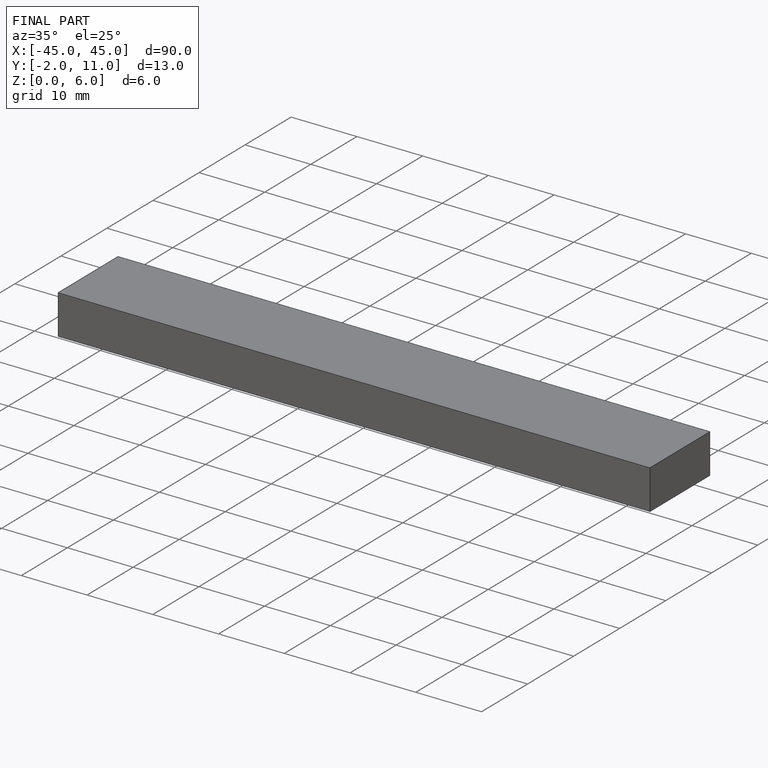
[diagram: finished part — iso view with bounding-box wireframe]
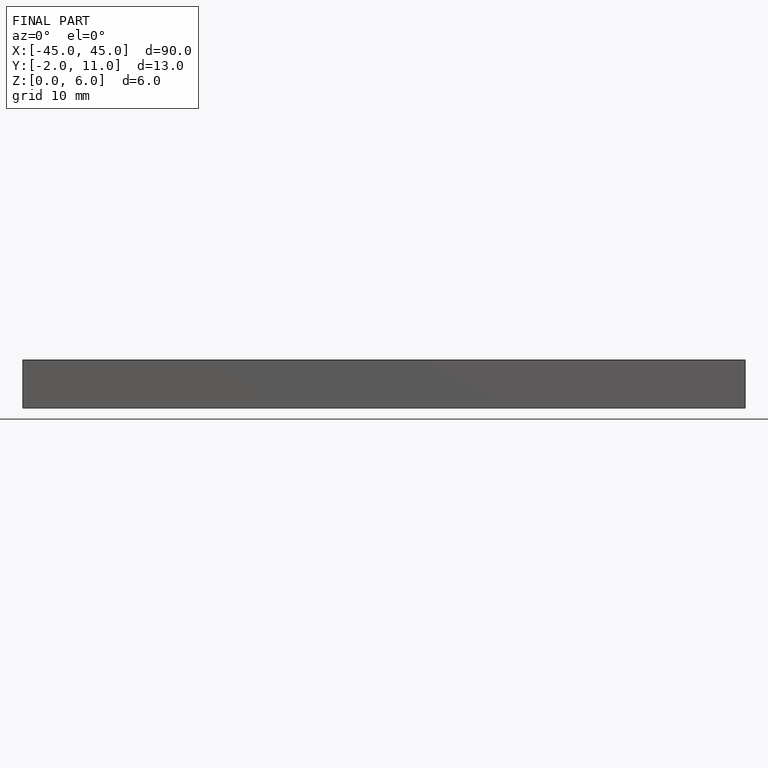
[diagram: finished part — front view with bounding-box wireframe]
